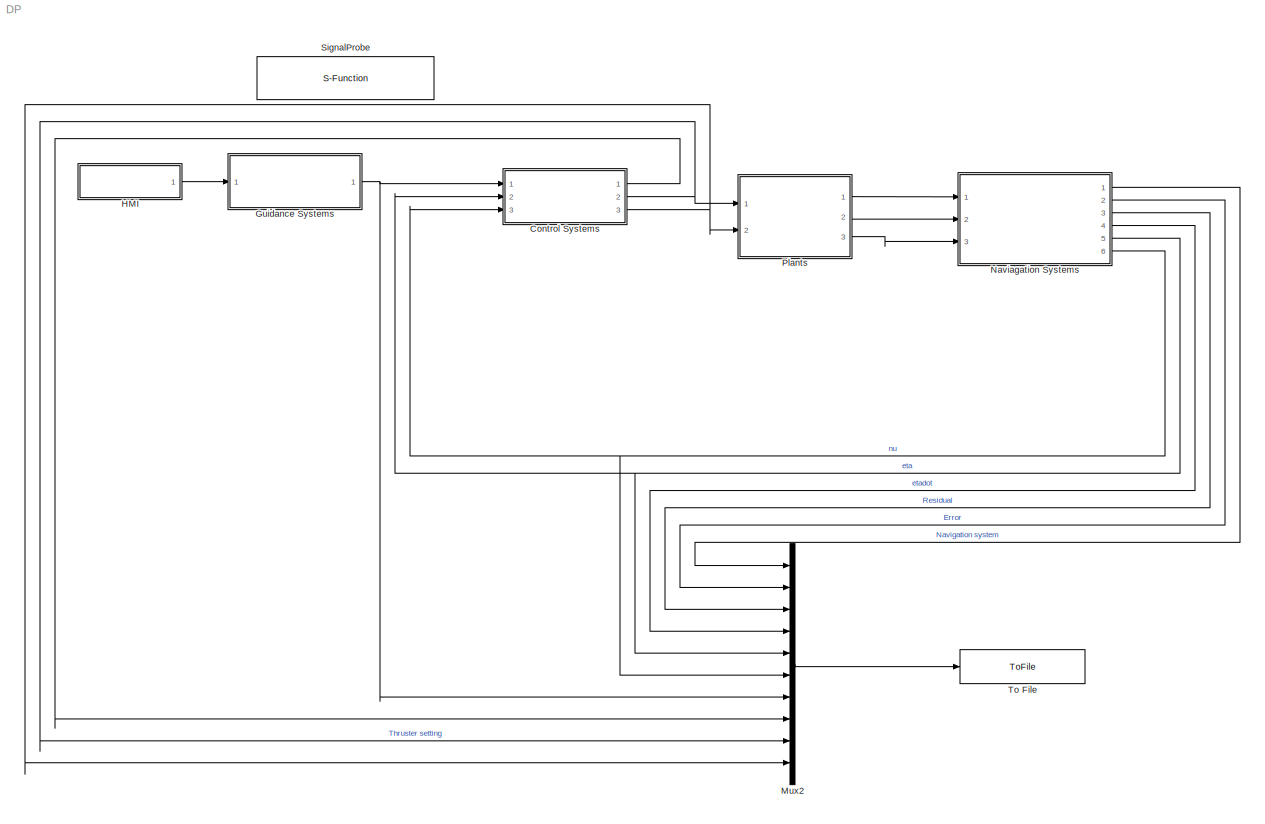
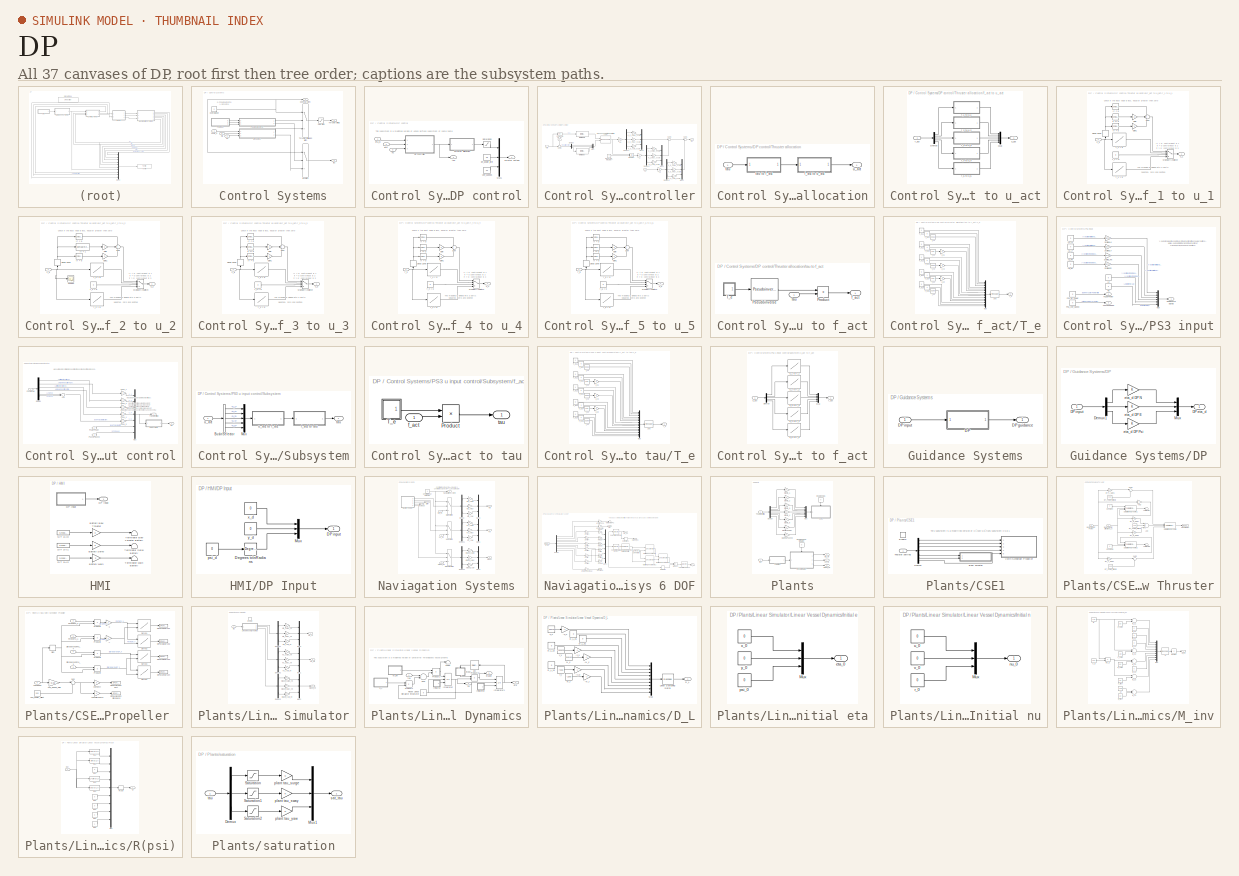
[diagram: thumbnail index - all 37 canvases of the model, root first then tree order]
MODEL DP
KIND model
BLOCK [SubSystem] Control Systems
  FunctionWithSeparateData = off
  MaskHideContents = off
  MinAlgLoopOccurrences = off
  Opaque = off
  Ports = [3, 3]
  PropExecContextOutsideSubsystem = off
  RTWSystemCode = Auto
  RequestExecContextInheritance = off
BLOCK [Constant] Control Systems/Control Mode
  Value = 0
BLOCK [Outport] Control Systems/Control system
  IconDisplay = Port number
BLOCK [SubSystem] Control Systems/DP control
  FunctionWithSeparateData = off
  MaskHideContents = off
  MinAlgLoopOccurrences = off
  Opaque = off
  Ports = [3, 2]
  PropExecContextOutsideSubsystem = off
  RTWSystemCode = Auto
  RequestExecContextInheritance = off
BLOCK [Constant] Control Systems/DP control/BT_power_limit
  Value = 0.5
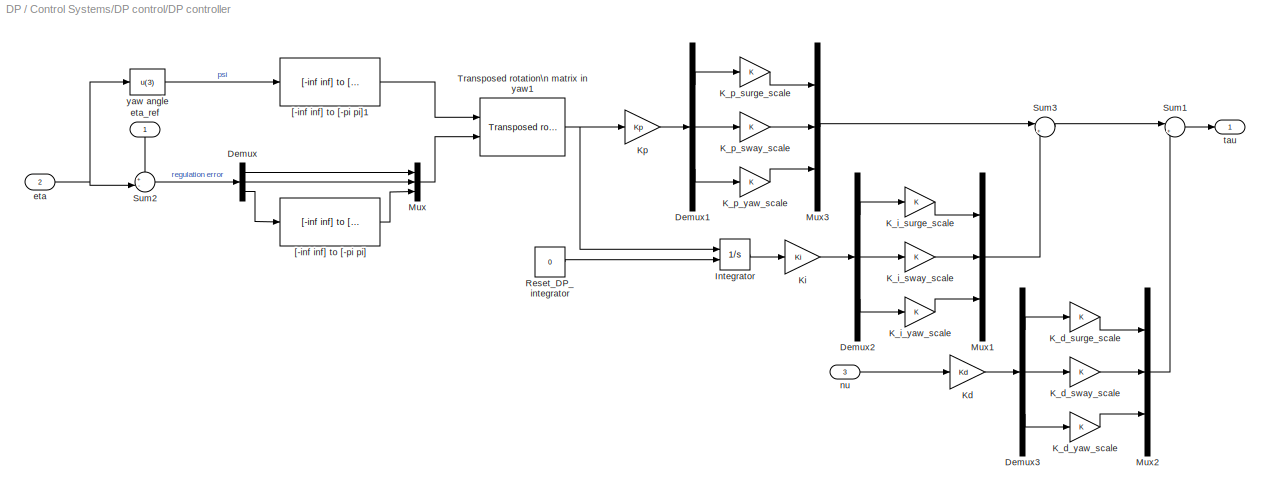
BLOCK [SubSystem] Control Systems/DP control/DP controller
  FunctionWithSeparateData = off
  MaskCallbackString = ||
  MaskDescription = Nonlinear PID controller for Set-Point Reulation in Surge, Sway and Yaw
  MaskDisplay = disp('Nonlinear PID\\n set-point controller')
  MaskEnableString = on,on,on
  MaskHelp = The nonlinear  PID controller uses the rotation matrix in yaw for proper scaling of the surge, sway and yaw gains as a function of the yaw angle. \nINPUTS: (1) eta_ref, (2) eta, (3) nu. OUPUTS: (1) tau.
  MaskHideContents = off
  MaskIconFrame = on
  MaskIconOpaque = off
  MaskIconRotate = none
  MaskIconUnits = autoscale
  MaskPortRotate = default
  MaskPromptString = Proportional Gain Matrix: Kp|Derivative Gain Matrix: Kd|Integral Gain Matrix: Ki
  MaskStyleString = edit,edit,edit
  MaskTabNameString = ,,
  MaskToolTipString = on,on,on
  MaskTunableValueString = on,on,on
  MaskType = Nonlinear DP Controller
  MaskValueString = (0.1)^2*[25.8000 0  0;  0  33.8000  1.0115;  0  1.0115  2.7600 ]|2*0.8*0.1*[25.8000 0  0;  0  33.8000  1.0115;  0  1.0115  2.7600 ]|(0.1^3/10)*[25.8000 0  0;  0  33.8000  1.0115;  0  1.0115  2.7600 ]
  MaskVarAliasString = ,,
  MaskVariables = Kp=@1;Kd=@2;Ki=@3;
  MaskVisibilityString = on,on,on
  MinAlgLoopOccurrences = off
  Opaque = off
  Ports = [3, 1]
  PropExecContextOutsideSubsystem = off
  RTWSystemCode = Auto
  RequestExecContextInheritance = off
BLOCK [Demux] Control Systems/DP control/DP controller/Demux
  DisplayOption = bar
  Outputs = 3
  Ports = [1, 3]
BLOCK [Demux] Control Systems/DP control/DP controller/Demux1
  DisplayOption = bar
  Outputs = 3
  Ports = [1, 3]
BLOCK [Demux] Control Systems/DP control/DP controller/Demux2
  DisplayOption = bar
  Outputs = 3
  Ports = [1, 3]
BLOCK [Demux] Control Systems/DP control/DP controller/Demux3
  DisplayOption = bar
  Outputs = 3
  Ports = [1, 3]
BLOCK [Integrator] Control Systems/DP control/DP controller/Integrator
  ExternalReset = level
  Ports = [2, 1]
BLOCK [Gain] Control Systems/DP control/DP controller/K_d_surge_scale
  OutDataType = fixdt(1, 16)
  OutDataTypeMode = Inherit via internal rule
  OutDataTypeStr = Inherit: Inherit via internal rule
  OutScaling = 2^0
  ParamDataTypeStr = Inherit: Inherit via internal rule
  ParameterDataType = fixdt(1, 16)
  ParameterDataTypeMode = Inherit via internal rule
  ParameterScaling = 2^0
  SaturateOnIntegerOverflow = off
BLOCK [Gain] Control Systems/DP control/DP controller/K_d_sway_scale
  OutDataType = fixdt(1, 16)
  OutDataTypeMode = Inherit via internal rule
  OutDataTypeStr = Inherit: Inherit via internal rule
  OutScaling = 2^0
  ParamDataTypeStr = Inherit: Inherit via internal rule
  ParameterDataType = fixdt(1, 16)
  ParameterDataTypeMode = Inherit via internal rule
  ParameterScaling = 2^0
  SaturateOnIntegerOverflow = off
BLOCK [Gain] Control Systems/DP control/DP controller/K_d_yaw_scale
  OutDataType = fixdt(1, 16)
  OutDataTypeMode = Inherit via internal rule
  OutDataTypeStr = Inherit: Inherit via internal rule
  OutScaling = 2^0
  ParamDataTypeStr = Inherit: Inherit via internal rule
  ParameterDataType = fixdt(1, 16)
  ParameterDataTypeMode = Inherit via internal rule
  ParameterScaling = 2^0
  SaturateOnIntegerOverflow = off
BLOCK [Gain] Control Systems/DP control/DP controller/K_i_surge_scale
  OutDataType = fixdt(1, 16)
  OutDataTypeMode = Inherit via internal rule
  OutDataTypeStr = Inherit: Inherit via internal rule
  OutScaling = 2^0
  ParamDataTypeStr = Inherit: Inherit via internal rule
  ParameterDataType = fixdt(1, 16)
  ParameterDataTypeMode = Inherit via internal rule
  ParameterScaling = 2^0
  SaturateOnIntegerOverflow = off
BLOCK [Gain] Control Systems/DP control/DP controller/K_i_sway_scale
  OutDataType = fixdt(1, 16)
  OutDataTypeMode = Inherit via internal rule
  OutDataTypeStr = Inherit: Inherit via internal rule
  OutScaling = 2^0
  ParamDataTypeStr = Inherit: Inherit via internal rule
  ParameterDataType = fixdt(1, 16)
  ParameterDataTypeMode = Inherit via internal rule
  ParameterScaling = 2^0
  SaturateOnIntegerOverflow = off
BLOCK [Gain] Control Systems/DP control/DP controller/K_i_yaw_scale
  OutDataType = fixdt(1, 16)
  OutDataTypeMode = Inherit via internal rule
  OutDataTypeStr = Inherit: Inherit via internal rule
  OutScaling = 2^0
  ParamDataTypeStr = Inherit: Inherit via internal rule
  ParameterDataType = fixdt(1, 16)
  ParameterDataTypeMode = Inherit via internal rule
  ParameterScaling = 2^0
  SaturateOnIntegerOverflow = off
BLOCK [Gain] Control Systems/DP control/DP controller/K_p_surge_scale
  OutDataType = fixdt(1, 16)
  OutDataTypeMode = Inherit via internal rule
  OutDataTypeStr = Inherit: Inherit via internal rule
  OutScaling = 2^0
  ParamDataTypeStr = Inherit: Inherit via internal rule
  ParameterDataType = fixdt(1, 16)
  ParameterDataTypeMode = Inherit via internal rule
  ParameterScaling = 2^0
  SaturateOnIntegerOverflow = off
BLOCK [Gain] Control Systems/DP control/DP controller/K_p_sway_scale
  OutDataType = fixdt(1, 16)
  OutDataTypeMode = Inherit via internal rule
  OutDataTypeStr = Inherit: Inherit via internal rule
  OutScaling = 2^0
  ParamDataTypeStr = Inherit: Inherit via internal rule
  ParameterDataType = fixdt(1, 16)
  ParameterDataTypeMode = Inherit via internal rule
  ParameterScaling = 2^0
  SaturateOnIntegerOverflow = off
BLOCK [Gain] Control Systems/DP control/DP controller/K_p_yaw_scale
  OutDataType = fixdt(1, 16)
  OutDataTypeMode = Inherit via internal rule
  OutDataTypeStr = Inherit: Inherit via internal rule
  OutScaling = 2^0
  ParamDataTypeStr = Inherit: Inherit via internal rule
  ParameterDataType = fixdt(1, 16)
  ParameterDataTypeMode = Inherit via internal rule
  ParameterScaling = 2^0
  SaturateOnIntegerOverflow = off
BLOCK [Gain] Control Systems/DP control/DP controller/Kd
  Gain = Kd
  Multiplication = Matrix(K*u)
BLOCK [Gain] Control Systems/DP control/DP controller/Ki
  Gain = Ki
  Multiplication = Matrix(K*u)
BLOCK [Gain] Control Systems/DP control/DP controller/Kp
  Gain = Kp
  Multiplication = Matrix(K*u)
BLOCK [Mux] Control Systems/DP control/DP controller/Mux
  DisplayOption = bar
  Inputs = 3
  Ports = [3, 1]
BLOCK [Mux] Control Systems/DP control/DP controller/Mux1
  DisplayOption = bar
  Inputs = 3
  Ports = [3, 1]
BLOCK [Mux] Control Systems/DP control/DP controller/Mux2
  DisplayOption = bar
  Inputs = 3
  Ports = [3, 1]
BLOCK [Mux] Control Systems/DP control/DP controller/Mux3
  DisplayOption = bar
  Inputs = 3
  Ports = [3, 1]
BLOCK [Constant] Control Systems/DP control/DP controller/Reset_DP_integrator
  Value = 0
BLOCK [Sum] Control Systems/DP control/DP controller/Sum1
  IconShape = round
  Inputs = |+-
  Ports = [2, 1]
BLOCK [Sum] Control Systems/DP control/DP controller/Sum2
  IconShape = round
  Inputs = +-|
  Ports = [2, 1]
BLOCK [Sum] Control Systems/DP control/DP controller/Sum3
  IconShape = round
  Inputs = |++
  Ports = [2, 1]
BLOCK [Reference] Control Systems/DP control/DP controller/Transposed rotation\n matrix in yaw1  REF=marine_gnc/Models/ Kinematics/Transposed rotation\n matrix in yaw  (lib defined in mdl_10d96c221ba8, mdl_45f1105420c6)
  FunctionWithSeparateData = off
  Ports = [2, 1]
  RTWMemSecDataConstants = Inherit from model
  RTWMemSecDataInternal = Inherit from model
  RTWMemSecDataParameters = Inherit from model
  RTWMemSecFuncExecute = Inherit from model
  RTWMemSecFuncInitTerm = Inherit from model
  ShowPortLabels = FromPortIcon
  SourceBlock = marine_gnc/Models/ Kinematics/Transposed rotation\n matrix in yaw
  SystemSampleTime = -1
BLOCK [Reference] Control Systems/DP control/DP controller/[-inf inf] to [-pi pi]  REF=marine_gnc/Utilities/Math Operations/[-inf inf] to [-pi pi]  (lib defined in mdl_10d96c221ba8, mdl_45f1105420c6)
  FunctionWithSeparateData = off
  Ports = [1, 1]
  RTWMemSecDataConstants = Inherit from model
  RTWMemSecDataInternal = Inherit from model
  RTWMemSecDataParameters = Inherit from model
  RTWMemSecFuncExecute = Inherit from model
  RTWMemSecFuncInitTerm = Inherit from model
  ShowPortLabels = FromPortIcon
  SourceBlock = marine_gnc/Utilities/Math Operations/[-inf inf] to [-pi pi]
  SourceType = [-inf inf] to [-pi pi]
  SystemSampleTime = -1
BLOCK [Reference] Control Systems/DP control/DP controller/[-inf inf] to [-pi pi]1  REF=marine_gnc/Utilities/Math Operations/[-inf inf] to [-pi pi]  (lib defined in mdl_10d96c221ba8, mdl_45f1105420c6)
  FunctionWithSeparateData = off
  Ports = [1, 1]
  RTWMemSecDataConstants = Inherit from model
  RTWMemSecDataInternal = Inherit from model
  RTWMemSecDataParameters = Inherit from model
  RTWMemSecFuncExecute = Inherit from model
  RTWMemSecFuncInitTerm = Inherit from model
  ShowPortLabels = FromPortIcon
  SourceBlock = marine_gnc/Utilities/Math Operations/[-inf inf] to [-pi pi]
  SourceType = [-inf inf] to [-pi pi]
  SystemSampleTime = -1
BLOCK [Inport] Control Systems/DP control/DP controller/eta
  IconDisplay = Port number
  Port = 2
BLOCK [Inport] Control Systems/DP control/DP controller/eta_ref
  IconDisplay = Port number
BLOCK [Inport] Control Systems/DP control/DP controller/nu
  IconDisplay = Port number
  Port = 3
BLOCK [Outport] Control Systems/DP control/DP controller/tau
  IconDisplay = Port number
  InitialOutput = 0
BLOCK [Fcn] Control Systems/DP control/DP controller/yaw angle
  Expr = u(3)
BLOCK [Mux] Control Systems/DP control/Mux1
  DisplayOption = bar
  Inputs = 3
  Ports = [3, 1]
BLOCK [Saturate] Control Systems/DP control/Saturation
  LowerLimit = -1.0
  UpperLimit = 1.0
BLOCK [SubSystem] Control Systems/DP control/Thruster allocation
  FunctionWithSeparateData = off
  MaskHideContents = off
  MinAlgLoopOccurrences = off
  Opaque = off
  Ports = [1, 1]
  PropExecContextOutsideSubsystem = off
  RTWSystemCode = Auto
  RequestExecContextInheritance = off
BLOCK [SubSystem] Control Systems/DP control/Thruster allocation/f_act to u_act
  FunctionWithSeparateData = off
  MaskHideContents = off
  MinAlgLoopOccurrences = off
  Opaque = off
  Ports = [1, 1]
  PropExecContextOutsideSubsystem = off
  RTWSystemCode = Auto
  RequestExecContextInheritance = off
BLOCK [Demux] Control Systems/DP control/Thruster allocation/f_act to u_act/Demux
  DisplayOption = bar
  Outputs = 5
  Ports = [1, 5]
BLOCK [Mux] Control Systems/DP control/Thruster allocation/f_act to u_act/Mux
  DisplayOption = bar
  Inputs = 5
  Ports = [5, 1]
BLOCK [SubSystem] Control Systems/DP control/Thruster allocation/f_act to u_act/f_1 to u_1
  FunctionWithSeparateData = off
  MaskHideContents = off
  MinAlgLoopOccurrences = off
  Opaque = off
  Ports = [1, 1]
  PropExecContextOutsideSubsystem = off
  RTWSystemCode = Auto
  RequestExecContextInheritance = off
BLOCK [DeadZone] Control Systems/DP control/Thruster allocation/f_act to u_act/f_1 to u_1/Dead Zone
  LowerValue = -0.001
  UpperValue = 0.001
BLOCK [Gain] Control Systems/DP control/Thruster allocation/f_act to u_act/f_1 to u_1/Gain
  Gain = 2
  OutDataType = fixdt(1, 16)
  OutDataTypeMode = Inherit via internal rule
  OutDataTypeStr = Inherit: Inherit via internal rule
  OutScaling = 2^0
  ParamDataTypeStr = Inherit: Inherit via internal rule
  ParameterDataType = fixdt(1, 16)
  ParameterDataTypeMode = Inherit via internal rule
  ParameterScaling = 2^0
  SaturateOnIntegerOverflow = off
BLOCK [Gain] Control Systems/DP control/Thruster allocation/f_act to u_act/f_1 to u_1/Gain1
  Gain = 3
  OutDataType = fixdt(1, 16)
  OutDataTypeMode = Inherit via internal rule
  OutDataTypeStr = Inherit: Inherit via internal rule
  OutScaling = 2^0
  ParamDataTypeStr = Inherit: Inherit via internal rule
  ParameterDataType = fixdt(1, 16)
  ParameterDataTypeMode = Inherit via internal rule
  ParameterScaling = 2^0
  SaturateOnIntegerOverflow = off
BLOCK [Reference] Control Systems/DP control/Thruster allocation/f_act to u_act/f_1 to u_1/If < 0  REF=simulink/Logic and Bit\nOperations/Compare\nTo Constant
  FunctionWithSeparateData = off
  LogicOutDataTypeMode = uint8
  Ports = [1, 1]
  RTWMemSecDataConstants = Inherit from model
  RTWMemSecDataInternal = Inherit from model
  RTWMemSecDataParameters = Inherit from model
  RTWMemSecFuncExecute = Inherit from model
  RTWMemSecFuncInitTerm = Inherit from model
  ShowPortLabels = FromPortIcon
  SourceBlock = simulink/Logic and Bit\nOperations/Compare\nTo Constant
  SourceType = Compare To Constant
  SystemSampleTime = -1
  ZeroCross = on
  const = 0
  relop = <
BLOCK [Reference] Control Systems/DP control/Thruster allocation/f_act to u_act/f_1 to u_1/If > 0  REF=simulink/Logic and Bit\nOperations/Compare\nTo Constant
  FunctionWithSeparateData = off
  LogicOutDataTypeMode = uint8
  Ports = [1, 1]
  RTWMemSecDataConstants = Inherit from model
  RTWMemSecDataInternal = Inherit from model
  RTWMemSecDataParameters = Inherit from model
  RTWMemSecFuncExecute = Inherit from model
  RTWMemSecFuncInitTerm = Inherit from model
  ShowPortLabels = FromPortIcon
  SourceBlock = simulink/Logic and Bit\nOperations/Compare\nTo Constant
  SourceType = Compare To Constant
  SystemSampleTime = -1
  ZeroCross = on
  const = 0
  relop = >
BLOCK [MultiPortSwitch] Control Systems/DP control/Thruster allocation/f_act to u_act/f_1 to u_1/Multiport\nSwitch
  InputSameDT = off
  OutDataType = fixdt(1, 16)
  OutScaling = 2^0
  Ports = [4, 1]
  SaturateOnIntegerOverflow = off
BLOCK [Sum] Control Systems/DP control/Thruster allocation/f_act to u_act/f_1 to u_1/Sum
  IconShape = round
  InputSameDT = off
  Inputs = +++
  OutDataType = fixdt(1, 16)
  OutDataTypeMode = Inherit via internal rule
  OutDataTypeStr = Inherit: Inherit via internal rule
  OutScaling = 2^0
  Ports = [3, 1]
  SaturateOnIntegerOverflow = off
BLOCK [Inport] Control Systems/DP control/Thruster allocation/f_act to u_act/f_1 to u_1/f_1
  IconDisplay = Port number
BLOCK [Lookup] Control Systems/DP control/Thruster allocation/f_act to u_act/f_1 to u_1/f_1 < 0
  InputValues = [-1.324\n-1.169\n-0.919\n-0.703\n-0.535\n-0.292\n-0.165\n-0.060\n0]
  LookUpMeth = Interpolation-Use End Values
  OutDataType = fixdt(1, 16)
  OutScaling = 2^0
  SaturateOnIntegerOverflow = off
  Table = [-1.0000\n   -0.9000\n   -0.8000\n   -0.7000\n   -0.6000\n   -0.5000\n   -0.4000\n   -0.3000\n   -0.2089]
BLOCK [Constant] Control Systems/DP control/Thruster allocation/f_act to u_act/f_1 to u_1/f_1 = 0
  OutDataType = fixdt(1, 16)
  OutScaling = 2^0
  Value = 0
BLOCK [Lookup] Control Systems/DP control/Thruster allocation/f_act to u_act/f_1 to u_1/f_1 > 0
  InputValues = [0\n    0.0510\n    0.1530\n    0.3080\n    0.4800\n    0.6630\n    0.9110\n    1.0570\n    1.2210\n    1.3740]
  LookUpMeth = Interpolation-Use End Values
  OutDataType = fixdt(1, 16)
  OutScaling = 2^0
  SaturateOnIntegerOverflow = off
  Table = [0.0500\n    0.1000\n    0.2000\n    0.3000\n    0.4000\n    0.5000\n    0.6000\n    0.7000\n    0.8000\n    0.9000]
BLOCK [Reference] Control Systems/DP control/Thruster allocation/f_act to u_act/f_1 to u_1/if == 0  REF=simulink/Logic and Bit\nOperations/Compare\nTo Zero
  FunctionWithSeparateData = off
  LogicOutDataTypeMode = uint8
  Ports = [1, 1]
  RTWMemSecDataConstants = Inherit from model
  RTWMemSecDataInternal = Inherit from model
  RTWMemSecDataParameters = Inherit from model
  RTWMemSecFuncExecute = Inherit from model
  RTWMemSecFuncInitTerm = Inherit from model
  ShowPortLabels = FromPortIcon
  SourceBlock = simulink/Logic and Bit\nOperations/Compare\nTo Zero
  SourceType = Compare To Zero
  SystemSampleTime = -1
  ZeroCross = on
  relop = ==
BLOCK [Outport] Control Systems/DP control/Thruster allocation/f_act to u_act/f_1 to u_1/u_1
  IconDisplay = Port number
BLOCK [SubSystem] Control Systems/DP control/Thruster allocation/f_act to u_act/f_2 to u_2
  FunctionWithSeparateData = off
  MaskHideContents = off
  MinAlgLoopOccurrences = off
  Opaque = off
  Ports = [1, 1]
  PropExecContextOutsideSubsystem = off
  RTWSystemCode = Auto
  RequestExecContextInheritance = off
BLOCK [DeadZone] Control Systems/DP control/Thruster allocation/f_act to u_act/f_2 to u_2/Dead Zone
  LowerValue = -0.001
  UpperValue = 0.001
BLOCK [Gain] Control Systems/DP control/Thruster allocation/f_act to u_act/f_2 to u_2/Gain
  Gain = 2
  OutDataType = fixdt(1, 16)
  OutDataTypeMode = Inherit via internal rule
  OutDataTypeStr = Inherit: Inherit via internal rule
  OutScaling = 2^0
  ParamDataTypeStr = Inherit: Inherit via internal rule
  ParameterDataType = fixdt(1, 16)
  ParameterDataTypeMode = Inherit via internal rule
  ParameterScaling = 2^0
  SaturateOnIntegerOverflow = off
BLOCK [Gain] Control Systems/DP control/Thruster allocation/f_act to u_act/f_2 to u_2/Gain1
  Gain = 3
  OutDataType = fixdt(1, 16)
  OutDataTypeMode = Inherit via internal rule
  OutDataTypeStr = Inherit: Inherit via internal rule
  OutScaling = 2^0
  ParamDataTypeStr = Inherit: Inherit via internal rule
  ParameterDataType = fixdt(1, 16)
  ParameterDataTypeMode = Inherit via internal rule
  ParameterScaling = 2^0
  SaturateOnIntegerOverflow = off
BLOCK [Reference] Control Systems/DP control/Thruster allocation/f_act to u_act/f_2 to u_2/If < 0  REF=simulink/Logic and Bit\nOperations/Compare\nTo Constant
  FunctionWithSeparateData = off
  LogicOutDataTypeMode = uint8
  Ports = [1, 1]
  RTWMemSecDataConstants = Inherit from model
  RTWMemSecDataInternal = Inherit from model
  RTWMemSecDataParameters = Inherit from model
  RTWMemSecFuncExecute = Inherit from model
  RTWMemSecFuncInitTerm = Inherit from model
  ShowPortLabels = FromPortIcon
  SourceBlock = simulink/Logic and Bit\nOperations/Compare\nTo Constant
  SourceType = Compare To Constant
  SystemSampleTime = -1
  ZeroCross = on
  const = 0
  relop = <
BLOCK [Reference] Control Systems/DP control/Thruster allocation/f_act to u_act/f_2 to u_2/If < 1  REF=simulink/Logic and Bit\nOperations/Compare\nTo Constant
  FunctionWithSeparateData = off
  LogicOutDataTypeMode = uint8
  Ports = [1, 1]
  RTWMemSecDataConstants = Inherit from model
  RTWMemSecDataInternal = Inherit from model
  RTWMemSecDataParameters = Inherit from model
  RTWMemSecFuncExecute = Inherit from model
  RTWMemSecFuncInitTerm = Inherit from model
  ShowPortLabels = FromPortIcon
  SourceBlock = simulink/Logic and Bit\nOperations/Compare\nTo Constant
  SourceType = Compare To Constant
  SystemSampleTime = -1
  ZeroCross = on
  const = 0
  relop = ==
BLOCK [Reference] Control Systems/DP control/Thruster allocation/f_act to u_act/f_2 to u_2/If > 0  REF=simulink/Logic and Bit\nOperations/Compare\nTo Constant
  FunctionWithSeparateData = off
  LogicOutDataTypeMode = uint8
  Ports = [1, 1]
  RTWMemSecDataConstants = Inherit from model
  RTWMemSecDataInternal = Inherit from model
  RTWMemSecDataParameters = Inherit from model
  RTWMemSecFuncExecute = Inherit from model
  RTWMemSecFuncInitTerm = Inherit from model
  ShowPortLabels = FromPortIcon
  SourceBlock = simulink/Logic and Bit\nOperations/Compare\nTo Constant
  SourceType = Compare To Constant
  SystemSampleTime = -1
  ZeroCross = on
  const = 0
  relop = >
BLOCK [MultiPortSwitch] Control Systems/DP control/Thruster allocation/f_act to u_act/f_2 to u_2/Multiport\nSwitch
  InputSameDT = off
  OutDataType = fixdt(1, 16)
  OutScaling = 2^0
  Ports = [4, 1]
  SaturateOnIntegerOverflow = off
BLOCK [Scope] Control Systems/DP control/Thruster allocation/f_act to u_act/f_2 to u_2/Scope2
  DataFormat = StructureWithTime
  Floating = off
  NumInputPorts = 1
  Ports = [1]
  SampleTime = 0
  SaveName = ScopeData7
BLOCK [Sum] Control Systems/DP control/Thruster allocation/f_act to u_act/f_2 to u_2/Sum
  IconShape = round
  InputSameDT = off
  Inputs = +++
  OutDataType = fixdt(1, 16)
  OutDataTypeMode = Inherit via internal rule
  OutDataTypeStr = Inherit: Inherit via internal rule
  OutScaling = 2^0
  Ports = [3, 1]
  SaturateOnIntegerOverflow = off
BLOCK [Inport] Control Systems/DP control/Thruster allocation/f_act to u_act/f_2 to u_2/f_2
  IconDisplay = Port number
BLOCK [Lookup] Control Systems/DP control/Thruster allocation/f_act to u_act/f_2 to u_2/f_2 < 0
  InputValues = [-0.766\n-0.649\n-0.522\n-0.411\n-0.323\n-0.246\n-0.156\n-0.075\n-0.018\n-0.006\n0]
  LookUpMeth = Interpolation-Use End Values
  OutDataType = fixdt(1, 16)
  OutScaling = 2^0
  SaturateOnIntegerOverflow = off
  Table = [-1.0000\n   -0.9000\n   -0.8000\n   -0.7000\n   -0.6000\n   -0.5000\n   -0.4000\n   -0.3000\n   -0.2000\n   -0.1000\n   -0.0466]
BLOCK [Constant] Control Systems/DP control/Thruster allocation/f_act to u_act/f_2 to u_2/f_2 = 0
  OutDataType = fixdt(1, 16)
  OutScaling = 2^0
  Value = 0
BLOCK [Lookup] Control Systems/DP control/Thruster allocation/f_act to u_act/f_2 to u_2/f_2 > 0
  InputValues = [0.000\n0.052\n0.207\n0.331\n0.509\n0.689\n0.829\n0.961\n1.079\n1.120\n]
  LookUpMeth = Interpolation-Use End Values
  OutDataType = fixdt(1, 16)
  OutScaling = 2^0
  SaturateOnIntegerOverflow = off
  Table = [0.1665\n    0.2000\n    0.3000\n    0.4000\n    0.5000\n    0.6000\n    0.7000\n    0.8000\n    0.9000\n    1.0000]
BLOCK [Outport] Control Systems/DP control/Thruster allocation/f_act to u_act/f_2 to u_2/u_2
  IconDisplay = Port number
BLOCK [SubSystem] Control Systems/DP control/Thruster allocation/f_act to u_act/f_3 to u_3
  FunctionWithSeparateData = off
  MaskHideContents = off
  MinAlgLoopOccurrences = off
  Opaque = off
  Ports = [1, 1]
  PropExecContextOutsideSubsystem = off
  RTWSystemCode = Auto
  RequestExecContextInheritance = off
BLOCK [DeadZone] Control Systems/DP control/Thruster allocation/f_act to u_act/f_3 to u_3/Dead Zone
  LowerValue = -0.001
  UpperValue = 0.001
BLOCK [Gain] Control Systems/DP control/Thruster allocation/f_act to u_act/f_3 to u_3/Gain
  Gain = 2
  OutDataType = fixdt(1, 16)
  OutDataTypeMode = Inherit via internal rule
  OutDataTypeStr = Inherit: Inherit via internal rule
  OutScaling = 2^0
  ParamDataTypeStr = Inherit: Inherit via internal rule
  ParameterDataType = fixdt(1, 16)
  ParameterDataTypeMode = Inherit via internal rule
  ParameterScaling = 2^0
  SaturateOnIntegerOverflow = off
BLOCK [Gain] Control Systems/DP control/Thruster allocation/f_act to u_act/f_3 to u_3/Gain1
  Gain = 3
  OutDataType = fixdt(1, 16)
  OutDataTypeMode = Inherit via internal rule
  OutDataTypeStr = Inherit: Inherit via internal rule
  OutScaling = 2^0
  ParamDataTypeStr = Inherit: Inherit via internal rule
  ParameterDataType = fixdt(1, 16)
  ParameterDataTypeMode = Inherit via internal rule
  ParameterScaling = 2^0
  SaturateOnIntegerOverflow = off
BLOCK [Reference] Control Systems/DP control/Thruster allocation/f_act to u_act/f_3 to u_3/If < 0  REF=simulink/Logic and Bit\nOperations/Compare\nTo Constant
  FunctionWithSeparateData = off
  LogicOutDataTypeMode = uint8
  Ports = [1, 1]
  RTWMemSecDataConstants = Inherit from model
  RTWMemSecDataInternal = Inherit from model
  RTWMemSecDataParameters = Inherit from model
  RTWMemSecFuncExecute = Inherit from model
  RTWMemSecFuncInitTerm = Inherit from model
  ShowPortLabels = FromPortIcon
  SourceBlock = simulink/Logic and Bit\nOperations/Compare\nTo Constant
  SourceType = Compare To Constant
  SystemSampleTime = -1
  ZeroCross = on
  const = 0
  relop = <
BLOCK [Reference] Control Systems/DP control/Thruster allocation/f_act to u_act/f_3 to u_3/If > 0  REF=simulink/Logic and Bit\nOperations/Compare\nTo Constant
  FunctionWithSeparateData = off
  LogicOutDataTypeMode = uint8
  Ports = [1, 1]
  RTWMemSecDataConstants = Inherit from model
  RTWMemSecDataInternal = Inherit from model
  RTWMemSecDataParameters = Inherit from model
  RTWMemSecFuncExecute = Inherit from model
  RTWMemSecFuncInitTerm = Inherit from model
  ShowPortLabels = FromPortIcon
  SourceBlock = simulink/Logic and Bit\nOperations/Compare\nTo Constant
  SourceType = Compare To Constant
  SystemSampleTime = -1
  ZeroCross = on
  const = 0
  relop = >
BLOCK [MultiPortSwitch] Control Systems/DP control/Thruster allocation/f_act to u_act/f_3 to u_3/Multiport\nSwitch
  InputSameDT = off
  OutDataType = fixdt(1, 16)
  OutScaling = 2^0
  Ports = [4, 1]
  SaturateOnIntegerOverflow = off
BLOCK [Sum] Control Systems/DP control/Thruster allocation/f_act to u_act/f_3 to u_3/Sum
  IconShape = round
  InputSameDT = off
  Inputs = +++
  OutDataType = fixdt(1, 16)
  OutDataTypeMode = Inherit via internal rule
  OutDataTypeStr = Inherit: Inherit via internal rule
  OutScaling = 2^0
  Ports = [3, 1]
  SaturateOnIntegerOverflow = off
BLOCK [Inport] Control Systems/DP control/Thruster allocation/f_act to u_act/f_3 to u_3/f_3
  IconDisplay = Port number
BLOCK [Lookup] Control Systems/DP control/Thruster allocation/f_act to u_act/f_3 to u_3/f_3 < 0
  InputValues = [-1.291\n-1.088\n-0.885\n-0.618\n-0.403\n-0.211\n-0.034\n0.000]
  LookUpMeth = Interpolation-Use End Values
  OutDataType = fixdt(1, 16)
  OutScaling = 2^0
  SaturateOnIntegerOverflow = off
  Table = [-0.9000\n   -0.8000\n   -0.7000\n   -0.6000\n   -0.5000\n   -0.4000\n   -0.3000\n   -0.2809]
BLOCK [Constant] Control Systems/DP control/Thruster allocation/f_act to u_act/f_3 to u_3/f_3 = 0
  OutDataType = fixdt(1, 16)
  OutScaling = 2^0
  Value = 0
BLOCK [Lookup] Control Systems/DP control/Thruster allocation/f_act to u_act/f_3 to u_3/f_3 > 0
  InputValues = [0.000\n0.014\n0.040\n0.147\n0.302\n0.494\n0.680\n0.968\n1.111\n1.289\n1.339]
  LookUpMeth = Interpolation-Use End Values
  OutDataType = fixdt(1, 16)
  OutScaling = 2^0
  SaturateOnIntegerOverflow = off
  Table = [0.0452\n    0.1000\n    0.2000\n    0.3000\n    0.4000\n    0.5000\n    0.6000\n    0.7000\n    0.8000\n    0.9000\n    1.0000\n]
BLOCK [Reference] Control Systems/DP control/Thruster allocation/f_act to u_act/f_3 to u_3/if == 0  REF=simulink/Logic and Bit\nOperations/Compare\nTo Zero
  FunctionWithSeparateData = off
  LogicOutDataTypeMode = uint8
  Ports = [1, 1]
  RTWMemSecDataConstants = Inherit from model
  RTWMemSecDataInternal = Inherit from model
  RTWMemSecDataParameters = Inherit from model
  RTWMemSecFuncExecute = Inherit from model
  RTWMemSecFuncInitTerm = Inherit from model
  ShowPortLabels = FromPortIcon
  SourceBlock = simulink/Logic and Bit\nOperations/Compare\nTo Zero
  SourceType = Compare To Zero
  SystemSampleTime = -1
  ZeroCross = on
  relop = ==
BLOCK [Outport] Control Systems/DP control/Thruster allocation/f_act to u_act/f_3 to u_3/u_3
  IconDisplay = Port number
BLOCK [SubSystem] Control Systems/DP control/Thruster allocation/f_act to u_act/f_4 to u_4
  FunctionWithSeparateData = off
  MaskHideContents = off
  MinAlgLoopOccurrences = off
  Opaque = off
  Ports = [1, 1]
  PropExecContextOutsideSubsystem = off
  RTWSystemCode = Auto
  RequestExecContextInheritance = off
BLOCK [DeadZone] Control Systems/DP control/Thruster allocation/f_act to u_act/f_4 to u_4/Dead Zone
  LowerValue = -0.001
  UpperValue = 0.001
BLOCK [Gain] Control Systems/DP control/Thruster allocation/f_act to u_act/f_4 to u_4/Gain
  Gain = 2
  OutDataType = fixdt(1, 16)
  OutDataTypeMode = Inherit via internal rule
  OutDataTypeStr = Inherit: Inherit via internal rule
  OutScaling = 2^0
  ParamDataTypeStr = Inherit: Inherit via internal rule
  ParameterDataType = fixdt(1, 16)
  ParameterDataTypeMode = Inherit via internal rule
  ParameterScaling = 2^0
  SaturateOnIntegerOverflow = off
BLOCK [Gain] Control Systems/DP control/Thruster allocation/f_act to u_act/f_4 to u_4/Gain1
  Gain = 3
  OutDataType = fixdt(1, 16)
  OutDataTypeMode = Inherit via internal rule
  OutDataTypeStr = Inherit: Inherit via internal rule
  OutScaling = 2^0
  ParamDataTypeStr = Inherit: Inherit via internal rule
  ParameterDataType = fixdt(1, 16)
  ParameterDataTypeMode = Inherit via internal rule
  ParameterScaling = 2^0
  SaturateOnIntegerOverflow = off
BLOCK [Reference] Control Systems/DP control/Thruster allocation/f_act to u_act/f_4 to u_4/If < 0  REF=simulink/Logic and Bit\nOperations/Compare\nTo Constant
  FunctionWithSeparateData = off
  LogicOutDataTypeMode = uint8
  Ports = [1, 1]
  RTWMemSecDataConstants = Inherit from model
  RTWMemSecDataInternal = Inherit from model
  RTWMemSecDataParameters = Inherit from model
  RTWMemSecFuncExecute = Inherit from model
  RTWMemSecFuncInitTerm = Inherit from model
  ShowPortLabels = FromPortIcon
  SourceBlock = simulink/Logic and Bit\nOperations/Compare\nTo Constant
  SourceType = Compare To Constant
  SystemSampleTime = -1
  ZeroCross = on
  const = 0
  relop = <
BLOCK [Reference] Control Systems/DP control/Thruster allocation/f_act to u_act/f_4 to u_4/If > 0  REF=simulink/Logic and Bit\nOperations/Compare\nTo Constant
  FunctionWithSeparateData = off
  LogicOutDataTypeMode = uint8
  Ports = [1, 1]
  RTWMemSecDataConstants = Inherit from model
  RTWMemSecDataInternal = Inherit from model
  RTWMemSecDataParameters = Inherit from model
  RTWMemSecFuncExecute = Inherit from model
  RTWMemSecFuncInitTerm = Inherit from model
  ShowPortLabels = FromPortIcon
  SourceBlock = simulink/Logic and Bit\nOperations/Compare\nTo Constant
  SourceType = Compare To Constant
  SystemSampleTime = -1
  ZeroCross = on
  const = 0
  relop = >
BLOCK [MultiPortSwitch] Control Systems/DP control/Thruster allocation/f_act to u_act/f_4 to u_4/Multiport\nSwitch
  InputSameDT = off
  OutDataType = fixdt(1, 16)
  OutScaling = 2^0
  Ports = [4, 1]
  SaturateOnIntegerOverflow = off
BLOCK [Sum] Control Systems/DP control/Thruster allocation/f_act to u_act/f_4 to u_4/Sum
  IconShape = round
  InputSameDT = off
  Inputs = +++
  OutDataType = fixdt(1, 16)
  OutDataTypeMode = Inherit via internal rule
  OutDataTypeStr = Inherit: Inherit via internal rule
  OutScaling = 2^0
  Ports = [3, 1]
  SaturateOnIntegerOverflow = off
BLOCK [Inport] Control Systems/DP control/Thruster allocation/f_act to u_act/f_4 to u_4/f_4
  IconDisplay = Port number
BLOCK [Lookup] Control Systems/DP control/Thruster allocation/f_act to u_act/f_4 to u_4/f_4 < 0
  InputValues = [-1.249\n-1.225\n-1.094\n-0.896\n-0.696\n-0.502\n-0.314\n-0.169\n-0.042\n0.000]
  LookUpMeth = Interpolation-Use End Values
  OutDataType = fixdt(1, 16)
  OutScaling = 2^0
  SaturateOnIntegerOverflow = off
  Table = [-0.9000\n   -0.8000\n   -0.7000\n   -0.6000\n   -0.5000\n   -0.4000\n   -0.3000\n   -0.2000\n   -0.1000\n   -0.0674]
BLOCK [Constant] Control Systems/DP control/Thruster allocation/f_act to u_act/f_4 to u_4/f_4 = 0
  OutDataType = fixdt(1, 16)
  OutScaling = 2^0
  Value = 0
BLOCK [Lookup] Control Systems/DP control/Thruster allocation/f_act to u_act/f_4 to u_4/f_4 > 0
  InputValues = [0.000\n0.063\n0.107\n0.274\n0.441\n0.599\n0.731]
  LookUpMeth = Interpolation-Use End Values
  OutDataType = fixdt(1, 16)
  OutScaling = 2^0
  SaturateOnIntegerOverflow = off
  Table = [0.3588\n    0.5000\n    0.6000\n    0.7000\n    0.8000\n    0.9000\n    1.0000]
BLOCK [Reference] Control Systems/DP control/Thruster allocation/f_act to u_act/f_4 to u_4/if == 0  REF=simulink/Logic and Bit\nOperations/Compare\nTo Zero
  FunctionWithSeparateData = off
  LogicOutDataTypeMode = uint8
  Ports = [1, 1]
  RTWMemSecDataConstants = Inherit from model
  RTWMemSecDataInternal = Inherit from model
  RTWMemSecDataParameters = Inherit from model
  RTWMemSecFuncExecute = Inherit from model
  RTWMemSecFuncInitTerm = Inherit from model
  ShowPortLabels = FromPortIcon
  SourceBlock = simulink/Logic and Bit\nOperations/Compare\nTo Zero
  SourceType = Compare To Zero
  SystemSampleTime = -1
  ZeroCross = on
  relop = ==
BLOCK [Outport] Control Systems/DP control/Thruster allocation/f_act to u_act/f_4 to u_4/u_4
  IconDisplay = Port number
BLOCK [SubSystem] Control Systems/DP control/Thruster allocation/f_act to u_act/f_5 to u_5
  FunctionWithSeparateData = off
  MaskHideContents = off
  MinAlgLoopOccurrences = off
  Opaque = off
  Ports = [1, 1]
  PropExecContextOutsideSubsystem = off
  RTWSystemCode = Auto
  RequestExecContextInheritance = off
BLOCK [DeadZone] Control Systems/DP control/Thruster allocation/f_act to u_act/f_5 to u_5/Dead Zone
  LowerValue = -0.001
  UpperValue = 0.001
BLOCK [Gain] Control Systems/DP control/Thruster allocation/f_act to u_act/f_5 to u_5/Gain
  Gain = 2
  OutDataType = fixdt(1, 16)
  OutDataTypeMode = Inherit via internal rule
  OutDataTypeStr = Inherit: Inherit via internal rule
  OutScaling = 2^0
  ParamDataTypeStr = Inherit: Inherit via internal rule
  ParameterDataType = fixdt(1, 16)
  ParameterDataTypeMode = Inherit via internal rule
  ParameterScaling = 2^0
  SaturateOnIntegerOverflow = off
BLOCK [Gain] Control Systems/DP control/Thruster allocation/f_act to u_act/f_5 to u_5/Gain1
  Gain = 3
  OutDataType = fixdt(1, 16)
  OutDataTypeMode = Inherit via internal rule
  OutDataTypeStr = Inherit: Inherit via internal rule
  OutScaling = 2^0
  ParamDataTypeStr = Inherit: Inherit via internal rule
  ParameterDataType = fixdt(1, 16)
  ParameterDataTypeMode = Inherit via internal rule
  ParameterScaling = 2^0
  SaturateOnIntegerOverflow = off
BLOCK [Reference] Control Systems/DP control/Thruster allocation/f_act to u_act/f_5 to u_5/If < 0  REF=simulink/Logic and Bit\nOperations/Compare\nTo Constant
  FunctionWithSeparateData = off
  LogicOutDataTypeMode = uint8
  Ports = [1, 1]
  RTWMemSecDataConstants = Inherit from model
  RTWMemSecDataInternal = Inherit from model
  RTWMemSecDataParameters = Inherit from model
  RTWMemSecFuncExecute = Inherit from model
  RTWMemSecFuncInitTerm = Inherit from model
  ShowPortLabels = FromPortIcon
  SourceBlock = simulink/Logic and Bit\nOperations/Compare\nTo Constant
  SourceType = Compare To Constant
  SystemSampleTime = -1
  ZeroCross = on
  const = 0
  relop = <
BLOCK [Reference] Control Systems/DP control/Thruster allocation/f_act to u_act/f_5 to u_5/If > 0  REF=simulink/Logic and Bit\nOperations/Compare\nTo Constant
  FunctionWithSeparateData = off
  LogicOutDataTypeMode = uint8
  Ports = [1, 1]
  RTWMemSecDataConstants = Inherit from model
  RTWMemSecDataInternal = Inherit from model
  RTWMemSecDataParameters = Inherit from model
  RTWMemSecFuncExecute = Inherit from model
  RTWMemSecFuncInitTerm = Inherit from model
  ShowPortLabels = FromPortIcon
  SourceBlock = simulink/Logic and Bit\nOperations/Compare\nTo Constant
  SourceType = Compare To Constant
  SystemSampleTime = -1
  ZeroCross = on
  const = 0
  relop = >
BLOCK [MultiPortSwitch] Control Systems/DP control/Thruster allocation/f_act to u_act/f_5 to u_5/Multiport\nSwitch
  InputSameDT = off
  OutDataType = fixdt(1, 16)
  OutScaling = 2^0
  Ports = [4, 1]
  SaturateOnIntegerOverflow = off
BLOCK [Sum] Control Systems/DP control/Thruster allocation/f_act to u_act/f_5 to u_5/Sum
  IconShape = round
  InputSameDT = off
  Inputs = +++
  OutDataType = fixdt(1, 16)
  OutDataTypeMode = Inherit via internal rule
  OutDataTypeStr = Inherit: Inherit via internal rule
  OutScaling = 2^0
  Ports = [3, 1]
  SaturateOnIntegerOverflow = off
BLOCK [Inport] Control Systems/DP control/Thruster allocation/f_act to u_act/f_5 to u_5/f_5
  IconDisplay = Port number
BLOCK [Lookup] Control Systems/DP control/Thruster allocation/f_act to u_act/f_5 to u_5/f_5 < 0
  InputValues = [-1.2630\n   -1.0309\n   -0.3808]
  LookUpMeth = Interpolation-Use End Values
  OutDataType = fixdt(1, 16)
  OutScaling = 2^0
  SaturateOnIntegerOverflow = off
  Table = [-0.3000\n   -0.2000\n   -0.1000]
BLOCK [Constant] Control Systems/DP control/Thruster allocation/f_act to u_act/f_5 to u_5/f_5 = 0
  OutDataType = fixdt(1, 16)
  OutScaling = 2^0
  Value = 0
BLOCK [Lookup] Control Systems/DP control/Thruster allocation/f_act to u_act/f_5 to u_5/f_5 > 0
  InputValues = [0.3480\n    0.8290\n    1.0930]
  LookUpMeth = Interpolation-Use End Values
  OutDataType = fixdt(1, 16)
  OutScaling = 2^0
  SaturateOnIntegerOverflow = off
  Table = [0.1000\n    0.2000\n    0.3000]
BLOCK [Reference] Control Systems/DP control/Thruster allocation/f_act to u_act/f_5 to u_5/if == 0  REF=simulink/Logic and Bit\nOperations/Compare\nTo Zero
  FunctionWithSeparateData = off
  LogicOutDataTypeMode = uint8
  Ports = [1, 1]
  RTWMemSecDataConstants = Inherit from model
  RTWMemSecDataInternal = Inherit from model
  RTWMemSecDataParameters = Inherit from model
  RTWMemSecFuncExecute = Inherit from model
  RTWMemSecFuncInitTerm = Inherit from model
  ShowPortLabels = FromPortIcon
  SourceBlock = simulink/Logic and Bit\nOperations/Compare\nTo Zero
  SourceType = Compare To Zero
  SystemSampleTime = -1
  ZeroCross = on
  relop = ==
BLOCK [Outport] Control Systems/DP control/Thruster allocation/f_act to u_act/f_5 to u_5/u_5
  IconDisplay = Port number
BLOCK [Inport] Control Systems/DP control/Thruster allocation/f_act to u_act/f_act
  IconDisplay = Port number
BLOCK [Outport] Control Systems/DP control/Thruster allocation/f_act to u_act/u_act
  IconDisplay = Port number
BLOCK [Inport] Control Systems/DP control/Thruster allocation/tau
  IconDisplay = Port number
BLOCK [SubSystem] Control Systems/DP control/Thruster allocation/tau to f_act
  FunctionWithSeparateData = off
  MaskHideContents = off
  MinAlgLoopOccurrences = off
  Opaque = off
  Ports = [1, 1]
  PropExecContextOutsideSubsystem = off
  RTWSystemCode = Auto
  RequestExecContextInheritance = off
BLOCK [Product] Control Systems/DP control/Thruster allocation/tau to f_act/Product
  InputSameDT = off
  Multiplication = Matrix(*)
  OutDataType = fixdt(1, 16)
  OutDataTypeMode = Inherit via internal rule
  OutDataTypeStr = Inherit: Inherit via internal rule
  OutScaling = 2^0
  Ports = [2, 1]
  SaturateOnIntegerOverflow = off
BLOCK [Reference] Control Systems/DP control/Thruster allocation/tau to f_act/Pseudoinverse  REF=dspinverses/Pseudoinverse
  Ports = [1, 1]
  SourceBlock = dspinverses/Pseudoinverse
  SourceType = Pseudoinverse
  wanterr = off
BLOCK [SubSystem] Control Systems/DP control/Thruster allocation/tau to f_act/T_e
  FunctionWithSeparateData = off
  MaskHideContents = off
  MinAlgLoopOccurrences = off
  Opaque = off
  Ports = [0, 1]
  PropExecContextOutsideSubsystem = off
  RTWSystemCode = Auto
  RequestExecContextInheritance = off
BLOCK [Gain] Control Systems/DP control/Thruster allocation/tau to f_act/T_e/-l_x1
  Gain = -1
  OutDataTypeMode = Inherit via internal rule
  OutDataTypeStr = Inherit: Inherit via internal rule
  ParamDataTypeStr = Inherit: Inherit via internal rule
  ParameterDataTypeMode = Inherit via internal rule
  SaturateOnIntegerOverflow = off
BLOCK [Gain] Control Systems/DP control/Thruster allocation/tau to f_act/T_e/-l_x2
  Gain = -1
  OutDataTypeMode = Inherit via internal rule
  OutDataTypeStr = Inherit: Inherit via internal rule
  ParamDataTypeStr = Inherit: Inherit via internal rule
  ParameterDataTypeMode = Inherit via internal rule
  SaturateOnIntegerOverflow = off
BLOCK [Gain] Control Systems/DP control/Thruster allocation/tau to f_act/T_e/-l_y2
  Gain = -1
  OutDataTypeMode = Inherit via internal rule
  OutDataTypeStr = Inherit: Inherit via internal rule
  ParamDataTypeStr = Inherit: Inherit via internal rule
  ParameterDataTypeMode = Inherit via internal rule
  SaturateOnIntegerOverflow = off
BLOCK [Reshape] Control Systems/DP control/Thruster allocation/tau to f_act/T_e/3x5
  OutputDimensionality = Customize
  OutputDimensions = [3,5]
  Ports = [1, 1]
BLOCK [Mux] Control Systems/DP control/Thruster allocation/tau to f_act/T_e/Mux
  DisplayOption = bar
  Inputs = 15
  Ports = [15, 1]
BLOCK [Outport] Control Systems/DP control/Thruster allocation/tau to f_act/T_e/T_e
  IconDisplay = Port number
BLOCK [Constant] Control Systems/DP control/Thruster allocation/tau to f_act/T_e/T_e11
BLOCK [Constant] Control Systems/DP control/Thruster allocation/tau to f_act/T_e/T_e12
  Value = 0
BLOCK [Constant] Control Systems/DP control/Thruster allocation/tau to f_act/T_e/T_e13
BLOCK [Constant] Control Systems/DP control/Thruster allocation/tau to f_act/T_e/T_e14
  Value = 0
BLOCK [Constant] Control Systems/DP control/Thruster allocation/tau to f_act/T_e/T_e15
  Value = 0
BLOCK [Constant] Control Systems/DP control/Thruster allocation/tau to f_act/T_e/T_e21
  Value = 0
BLOCK [Constant] Control Systems/DP control/Thruster allocation/tau to f_act/T_e/T_e22
BLOCK [Constant] Control Systems/DP control/Thruster allocation/tau to f_act/T_e/T_e23
  Value = 0
BLOCK [Constant] Control Systems/DP control/Thruster allocation/tau to f_act/T_e/T_e24
BLOCK [Constant] Control Systems/DP control/Thruster allocation/tau to f_act/T_e/T_e25
BLOCK [Constant] Control Systems/DP control/Thruster allocation/tau to f_act/T_e/l_x1
  Value = 0.45
BLOCK [Constant] Control Systems/DP control/Thruster allocation/tau to f_act/T_e/l_x2
  Value = 0.45
BLOCK [Constant] Control Systems/DP control/Thruster allocation/tau to f_act/T_e/l_x3
  Value = 0.385
BLOCK [Constant] Control Systems/DP control/Thruster allocation/tau to f_act/T_e/l_y1
  Value = 0.055
BLOCK [Constant] Control Systems/DP control/Thruster allocation/tau to f_act/T_e/l_y2
  Value = 0.055
BLOCK [Outport] Control Systems/DP control/Thruster allocation/tau to f_act/f_act
  IconDisplay = Port number
BLOCK [Inport] Control Systems/DP control/Thruster allocation/tau to f_act/tau
  IconDisplay = Port number
BLOCK [Outport] Control Systems/DP control/Thruster allocation/u_act
  IconDisplay = Port number
BLOCK [Outport] Control Systems/DP control/Thruster setting
  IconDisplay = Port number
  InitialOutput = [0;0;0;0;0;0;0]
BLOCK [Constant] Control Systems/DP control/VSP_speeds
  Value = 0.4
BLOCK [Inport] Control Systems/DP control/eta
  IconDisplay = Port number
  Port = 2
BLOCK [Inport] Control Systems/DP control/eta_d
  IconDisplay = Port number
BLOCK [Inport] Control Systems/DP control/nu
  IconDisplay = Port number
  Port = 3
BLOCK [Outport] Control Systems/DP control/tau
  IconDisplay = Port number
  Port = 2
BLOCK [Inport] Control Systems/DP eta_d
  IconDisplay = Port number
BLOCK [SubSystem] Control Systems/PS3 input
  FunctionWithSeparateData = off
  MaskHideContents = off
  MinAlgLoopOccurrences = off
  Opaque = off
  Ports = [0, 3]
  PropExecContextOutsideSubsystem = off
  RTWSystemCode = Auto
  RequestExecContextInheritance = off
BLOCK [Constant] Control Systems/PS3 input/AS_LX
  Value = 0
BLOCK [Constant] Control Systems/PS3 input/AS_LY
  Value = 0
BLOCK [Constant] Control Systems/PS3 input/AS_RX
  Value = 0
BLOCK [Constant] Control Systems/PS3 input/AS_RY
  Value = 0
BLOCK [Outport] Control Systems/PS3 input/DuelShock 3 signals
  IconDisplay = Port number
BLOCK [Constant] Control Systems/PS3 input/L2
  Value = 0
BLOCK [Mux] Control Systems/PS3 input/Mux
  DisplayOption = bar
  Inputs = 6
  Ports = [6, 1]
BLOCK [Outport] Control Systems/PS3 input/PS3 BT Power
  IconDisplay = Port number
  Port = 2
BLOCK [Outport] Control Systems/PS3 input/PS3 VSP Speed
  IconDisplay = Port number
  Port = 3
BLOCK [Constant] Control Systems/PS3 input/PS3_BT_Power
  Value = 0
BLOCK [Constant] Control Systems/PS3 input/PS3_VSP_Speed
  Value = 0
BLOCK [Constant] Control Systems/PS3 input/R2
  Value = 0
BLOCK [Gain] Control Systems/PS3 input/ScalingLX
  Gain = 1/32767
  OutDataTypeMode = Inherit via internal rule
  OutDataTypeStr = Inherit: Inherit via internal rule
  ParamDataTypeStr = Inherit: Inherit via internal rule
  ParameterDataTypeMode = Inherit via internal rule
  SaturateOnIntegerOverflow = off
BLOCK [Gain] Control Systems/PS3 input/ScalingLY
  Gain = 1/32767
  OutDataTypeMode = Inherit via internal rule
  OutDataTypeStr = Inherit: Inherit via internal rule
  ParamDataTypeStr = Inherit: Inherit via internal rule
  ParameterDataTypeMode = Inherit via internal rule
  SaturateOnIntegerOverflow = off
BLOCK [Gain] Control Systems/PS3 input/ScalingRY
  Gain = 1/32767
  OutDataTypeMode = Inherit via internal rule
  OutDataTypeStr = Inherit: Inherit via internal rule
  ParamDataTypeStr = Inherit: Inherit via internal rule
  ParameterDataTypeMode = Inherit via internal rule
  SaturateOnIntegerOverflow = off
BLOCK [Gain] Control Systems/PS3 input/Scaling_RX
  Gain = 1/32767
  OutDataTypeMode = Inherit via internal rule
  OutDataTypeStr = Inherit: Inherit via internal rule
  ParamDataTypeStr = Inherit: Inherit via internal rule
  ParameterDataTypeMode = Inherit via internal rule
  SaturateOnIntegerOverflow = off
BLOCK [SubSystem] Control Systems/PS3 u input control
  FunctionWithSeparateData = off
  MaskHideContents = off
  MinAlgLoopOccurrences = on
  Opaque = off
  Ports = [3, 2]
  PropExecContextOutsideSubsystem = off
  RTWSystemCode = Auto
  RequestExecContextInheritance = off
BLOCK [Sum] Control Systems/PS3 u input control/Add
  IconShape = round
  InputSameDT = off
  Inputs = |++
  OutDataTypeMode = Inherit via internal rule
  OutDataTypeStr = Inherit: Inherit via internal rule
  Ports = [2, 1]
  SaturateOnIntegerOverflow = off
BLOCK [Demux] Control Systems/PS3 u input control/Demux
  DisplayOption = bar
  Outputs = 6
  Ports = [1, 6]
BLOCK [Mux] Control Systems/PS3 u input control/Mux
  DisplayOption = bar
  Inputs = 7
  Ports = [7, 1]
BLOCK [Inport] Control Systems/PS3 u input control/PS3 BT Power
  IconDisplay = Port number
  Port = 2
BLOCK [Inport] Control Systems/PS3 u input control/PS3 Signals
  IconDisplay = Port number
BLOCK [Inport] Control Systems/PS3 u input control/PS3 VSP Speed
  IconDisplay = Port number
  Port = 3
BLOCK [Gain] Control Systems/PS3 u input control/PS3 u_1
  OutDataType = fixdt(1, 16)
  OutDataTypeMode = Inherit via internal rule
  OutDataTypeStr = Inherit: Inherit via internal rule
  OutScaling = 2^0
  ParamDataTypeStr = Inherit: Inherit via internal rule
  ParameterDataType = fixdt(1, 16)
  ParameterDataTypeMode = Inherit via internal rule
  ParameterScaling = 2^0
  SaturateOnIntegerOverflow = off
BLOCK [Gain] Control Systems/PS3 u input control/PS3 u_2
  OutDataType = fixdt(1, 16)
  OutDataTypeMode = Inherit via internal rule
  OutDataTypeStr = Inherit: Inherit via internal rule
  OutScaling = 2^0
  ParamDataTypeStr = Inherit: Inherit via internal rule
  ParameterDataType = fixdt(1, 16)
  ParameterDataTypeMode = Inherit via internal rule
  ParameterScaling = 2^0
  SaturateOnIntegerOverflow = off
BLOCK [Gain] Control Systems/PS3 u input control/PS3 u_3
  OutDataType = fixdt(1, 16)
  OutDataTypeMode = Inherit via internal rule
  OutDataTypeStr = Inherit: Inherit via internal rule
  OutScaling = 2^0
  ParamDataTypeStr = Inherit: Inherit via internal rule
  ParameterDataType = fixdt(1, 16)
  ParameterDataTypeMode = Inherit via internal rule
  ParameterScaling = 2^0
  SaturateOnIntegerOverflow = off
BLOCK [Gain] Control Systems/PS3 u input control/PS3 u_4
  OutDataType = fixdt(1, 16)
  OutDataTypeMode = Inherit via internal rule
  OutDataTypeStr = Inherit: Inherit via internal rule
  OutScaling = 2^0
  ParamDataTypeStr = Inherit: Inherit via internal rule
  ParameterDataType = fixdt(1, 16)
  ParameterDataTypeMode = Inherit via internal rule
  ParameterScaling = 2^0
  SaturateOnIntegerOverflow = off
BLOCK [Gain] Control Systems/PS3 u input control/PS3 u_5
  OutDataType = fixdt(1, 16)
  OutDataTypeMode = Inherit via internal rule
  OutDataTypeStr = Inherit: Inherit via internal rule
  OutScaling = 2^0
  ParamDataTypeStr = Inherit: Inherit via internal rule
  ParameterDataType = fixdt(1, 16)
  ParameterDataTypeMode = Inherit via internal rule
  ParameterScaling = 2^0
  SaturateOnIntegerOverflow = off
BLOCK [SubSystem] Control Systems/PS3 u input control/Subsystem
  FunctionWithSeparateData = off
  MaskHideContents = off
  MinAlgLoopOccurrences = off
  Opaque = off
  Ports = [1, 1]
  PropExecContextOutsideSubsystem = off
  RTWSystemCode = Auto
  RequestExecContextInheritance = off
BLOCK [BusSelector] Control Systems/PS3 u input control/Subsystem/Bus\nSelector
  OutputSignals = u_1,u_2,u_3,u_4,u_5
  Ports = [1, 5]
BLOCK [Mux] Control Systems/PS3 u input control/Subsystem/Mux
  DisplayOption = bar
  Inputs = 5
  Ports = [5, 1]
BLOCK [SubSystem] Control Systems/PS3 u input control/Subsystem/f_act to tau
  FunctionWithSeparateData = off
  MaskHideContents = off
  MinAlgLoopOccurrences = off
  Opaque = off
  Ports = [1, 1]
  PropExecContextOutsideSubsystem = off
  RTWSystemCode = Auto
  RequestExecContextInheritance = off
BLOCK [Product] Control Systems/PS3 u input control/Subsystem/f_act to tau/Product
  InputSameDT = off
  Multiplication = Matrix(*)
  OutDataType = fixdt(1, 16)
  OutDataTypeMode = Inherit via internal rule
  OutDataTypeStr = Inherit: Inherit via internal rule
  OutScaling = 2^0
  Ports = [2, 1]
  SaturateOnIntegerOverflow = off
BLOCK [SubSystem] Control Systems/PS3 u input control/Subsystem/f_act to tau/T_e
  FunctionWithSeparateData = off
  MaskHideContents = off
  MinAlgLoopOccurrences = off
  Opaque = off
  Ports = [0, 1]
  PropExecContextOutsideSubsystem = off
  RTWSystemCode = Auto
  RequestExecContextInheritance = off
BLOCK [Gain] Control Systems/PS3 u input control/Subsystem/f_act to tau/T_e/-l_x1
  Gain = -1
  OutDataTypeMode = Inherit via internal rule
  OutDataTypeStr = Inherit: Inherit via internal rule
  ParamDataTypeStr = Inherit: Inherit via internal rule
  ParameterDataTypeMode = Inherit via internal rule
  SaturateOnIntegerOverflow = off
BLOCK [Gain] Control Systems/PS3 u input control/Subsystem/f_act to tau/T_e/-l_x2
  Gain = -1
  OutDataTypeMode = Inherit via internal rule
  OutDataTypeStr = Inherit: Inherit via internal rule
  ParamDataTypeStr = Inherit: Inherit via internal rule
  ParameterDataTypeMode = Inherit via internal rule
  SaturateOnIntegerOverflow = off
BLOCK [Gain] Control Systems/PS3 u input control/Subsystem/f_act to tau/T_e/-l_y2
  Gain = -1
  OutDataTypeMode = Inherit via internal rule
  OutDataTypeStr = Inherit: Inherit via internal rule
  ParamDataTypeStr = Inherit: Inherit via internal rule
  ParameterDataTypeMode = Inherit via internal rule
  SaturateOnIntegerOverflow = off
BLOCK [Reshape] Control Systems/PS3 u input control/Subsystem/f_act to tau/T_e/3x5
  OutputDimensionality = Customize
  OutputDimensions = [3,5]
  Ports = [1, 1]
BLOCK [Mux] Control Systems/PS3 u input control/Subsystem/f_act to tau/T_e/Mux
  DisplayOption = bar
  Inputs = 15
  Ports = [15, 1]
BLOCK [Outport] Control Systems/PS3 u input control/Subsystem/f_act to tau/T_e/T_e
  IconDisplay = Port number
BLOCK [Constant] Control Systems/PS3 u input control/Subsystem/f_act to tau/T_e/T_e11
BLOCK [Constant] Control Systems/PS3 u input control/Subsystem/f_act to tau/T_e/T_e12
  Value = 0
BLOCK [Constant] Control Systems/PS3 u input control/Subsystem/f_act to tau/T_e/T_e13
BLOCK [Constant] Control Systems/PS3 u input control/Subsystem/f_act to tau/T_e/T_e14
  Value = 0
BLOCK [Constant] Control Systems/PS3 u input control/Subsystem/f_act to tau/T_e/T_e15
  Value = 0
BLOCK [Constant] Control Systems/PS3 u input control/Subsystem/f_act to tau/T_e/T_e21
  Value = 0
BLOCK [Constant] Control Systems/PS3 u input control/Subsystem/f_act to tau/T_e/T_e22
BLOCK [Constant] Control Systems/PS3 u input control/Subsystem/f_act to tau/T_e/T_e23
  Value = 0
BLOCK [Constant] Control Systems/PS3 u input control/Subsystem/f_act to tau/T_e/T_e24
BLOCK [Constant] Control Systems/PS3 u input control/Subsystem/f_act to tau/T_e/T_e25
BLOCK [Constant] Control Systems/PS3 u input control/Subsystem/f_act to tau/T_e/l_x1
  Value = 0.45
BLOCK [Constant] Control Systems/PS3 u input control/Subsystem/f_act to tau/T_e/l_x2
  Value = 0.45
BLOCK [Constant] Control Systems/PS3 u input control/Subsystem/f_act to tau/T_e/l_x3
  Value = 0.385
BLOCK [Constant] Control Systems/PS3 u input control/Subsystem/f_act to tau/T_e/l_y1
  Value = 0.055
BLOCK [Constant] Control Systems/PS3 u input control/Subsystem/f_act to tau/T_e/l_y2
  Value = 0.055
BLOCK [Inport] Control Systems/PS3 u input control/Subsystem/f_act to tau/f_act
  IconDisplay = Port number
BLOCK [Outport] Control Systems/PS3 u input control/Subsystem/f_act to tau/tau
  IconDisplay = Port number
BLOCK [Outport] Control Systems/PS3 u input control/Subsystem/tau
  IconDisplay = Port number
BLOCK [Inport] Control Systems/PS3 u input control/Subsystem/u_act
  IconDisplay = Port number
  OutDataType = fixdt(1, 16)
  OutScaling = 2^0
BLOCK [SubSystem] Control Systems/PS3 u input control/Subsystem/u_act to f_act
  FunctionWithSeparateData = off
  MaskHideContents = off
  MinAlgLoopOccurrences = off
  Opaque = off
  Ports = [1, 1]
  PropExecContextOutsideSubsystem = off
  RTWSystemCode = Auto
  RequestExecContextInheritance = off
BLOCK [Demux] Control Systems/PS3 u input control/Subsystem/u_act to f_act/Demux
  DisplayOption = bar
  Outputs = 5
  Ports = [1, 5]
BLOCK [Mux] Control Systems/PS3 u input control/Subsystem/u_act to f_act/Mux
  DisplayOption = bar
  Inputs = 5
  Ports = [5, 1]
BLOCK [Outport] Control Systems/PS3 u input control/Subsystem/u_act to f_act/f_act
  IconDisplay = Port number
BLOCK [Lookup] Control Systems/PS3 u input control/Subsystem/u_act to f_act/u_1 to f_1
  InputValues = [-1.0000\n   -0.9000\n   -0.8000\n   -0.7000\n   -0.6000\n   -0.5000\n   -0.4000\n   -0.3000\n   -0.2089\n    0.0500\n    0.1000\n    0.2000\n    0.3000\n    0.4000\n    0.5000\n    0.6000\n    0.7000\n    0.8000\n    0.9000]
  LookUpMeth = Interpolation-Use End Values
  OutDataType = fixdt(1, 16)
  OutScaling = 2^0
  SaturateOnIntegerOverflow = off
  Table = [-1.324\n-1.169\n-0.919\n-0.703\n-0.535\n-0.292\n-0.165\n-0.060\n0.000\n0.000\n0.051\n0.153\n0.308\n0.480\n0.663\n0.911\n1.057\n1.221\n1.374]
BLOCK [Lookup] Control Systems/PS3 u input control/Subsystem/u_act to f_act/u_2 to f_2
  InputValues = [-1.0000\n   -0.9000\n   -0.8000\n   -0.7000\n   -0.6000\n   -0.5000\n   -0.4000\n   -0.3000\n   -0.2000\n   -0.1000\n   -0.0466\n    0.1665\n    0.2000\n    0.3000\n    0.4000\n    0.5000\n    0.6000\n    0.7000\n    0.8000\n    0.9000\n    1.0000]
  LookUpMeth = Interpolation-Use End Values
  OutDataType = fixdt(1, 16)
  OutScaling = 2^0
  SaturateOnIntegerOverflow = off
  Table = [-0.766\n-0.649\n-0.522\n-0.411\n-0.323\n-0.246\n-0.156\n-0.075\n-0.018\n-0.006\n0\n0\n0.052\n0.207\n0.331\n0.509\n0.689\n0.829\n0.961\n1.079\n1.120]
BLOCK [Lookup] Control Systems/PS3 u input control/Subsystem/u_act to f_act/u_3 to f_3
  InputValues = [-0.9000\n   -0.8000\n   -0.7000\n   -0.6000\n   -0.5000\n   -0.4000\n   -0.3000\n   -0.2809\n    0.0452\n    0.1000\n    0.2000\n    0.3000\n    0.4000\n    0.5000\n    0.6000\n    0.7000\n    0.8000\n    0.9000\n    1.0000]
  LookUpMeth = Interpolation-Use End Values
  OutDataType = fixdt(1, 16)
  OutScaling = 2^0
  SaturateOnIntegerOverflow = off
  Table = [-1.291\n-1.088\n-0.885\n-0.618\n-0.403\n-0.211\n-0.034\n0.000\n0.000\n0.014\n0.040\n0.147\n0.302\n0.494\n0.680\n0.968\n1.111\n1.289\n1.339]
BLOCK [Lookup] Control Systems/PS3 u input control/Subsystem/u_act to f_act/u_4 to f_4
  InputValues = [-0.9000\n   -0.8000\n   -0.7000\n   -0.6000\n   -0.5000\n   -0.4000\n   -0.3000\n   -0.2000\n   -0.1000\n   -0.0674\n    0.3588\n    0.5000\n    0.6000\n    0.7000\n    0.8000\n    0.9000\n    1.0000]
  LookUpMeth = Interpolation-Use End Values
  OutDataType = fixdt(1, 16)
  OutScaling = 2^0
  SaturateOnIntegerOverflow = off
  Table = [-1.249\n-1.225\n-1.094\n-0.896\n-0.696\n-0.502\n-0.314\n-0.169\n-0.042\n0.000\n0.000\n0.063\n0.107\n0.274\n0.441\n0.599\n0.731]
BLOCK [Lookup] Control Systems/PS3 u input control/Subsystem/u_act to f_act/u_5 to f_5
  InputValues = [-.3:0.1:.3]
  LookUpMeth = Interpolation-Use End Values
  OutDataType = fixdt(1, 16)
  OutScaling = 2^0
  SaturateOnIntegerOverflow = off
  Table = [-1.2630 -1.0309 -0.3808 0 0.3480  0.8290 1.0930]
BLOCK [Inport] Control Systems/PS3 u input control/Subsystem/u_act to f_act/u_act
  IconDisplay = Port number
BLOCK [Outport] Control Systems/PS3 u input control/Thruster setting
  IconDisplay = Port number
BLOCK [Outport] Control Systems/PS3 u input control/tau
  IconDisplay = Port number
  Port = 2
BLOCK [Saturate] Control Systems/Saturation
  LowerLimit = -1.0
  UpperLimit = 1.0
BLOCK [Outport] Control Systems/Thruster setting
  IconDisplay = Port number
  Port = 2
BLOCK [MultiPortSwitch] Control Systems/Thruster setting\nSwitch
  InputSameDT = off
  Inputs = 2
  Ports = [3, 1]
  SaturateOnIntegerOverflow = off
  zeroidx = on
BLOCK [Inport] Control Systems/eta
  IconDisplay = Port number
  Port = 2
BLOCK [Inport] Control Systems/nu
  IconDisplay = Port number
  Port = 3
BLOCK [Outport] Control Systems/tau
  IconDisplay = Port number
  Port = 3
BLOCK [MultiPortSwitch] Control Systems/tau Switch
  InputSameDT = off
  Inputs = 2
  Ports = [3, 1]
  SaturateOnIntegerOverflow = off
  zeroidx = on
BLOCK [SubSystem] Guidance Systems
  FunctionWithSeparateData = off
  MaskHideContents = off
  MinAlgLoopOccurrences = off
  Opaque = off
  Ports = [1, 1]
  PropExecContextOutsideSubsystem = off
  RTWSystemCode = Auto
  RequestExecContextInheritance = off
BLOCK [SubSystem] Guidance Systems/DP
  FunctionWithSeparateData = off
  MaskHideContents = off
  MinAlgLoopOccurrences = off
  Opaque = off
  Ports = [1, 1]
  PropExecContextOutsideSubsystem = off
  RTWSystemCode = Auto
  RequestExecContextInheritance = off
BLOCK [Outport] Guidance Systems/DP guidance
  IconDisplay = Port number
BLOCK [Inport] Guidance Systems/DP input
  IconDisplay = Port number
BLOCK [Outport] Guidance Systems/DP/DP eta_d
  IconDisplay = Port number
BLOCK [Inport] Guidance Systems/DP/DP input
  IconDisplay = Port number
BLOCK [Demux] Guidance Systems/DP/Demux1
  DisplayOption = bar
  Outputs = 3
  Ports = [1, 3]
BLOCK [Mux] Guidance Systems/DP/Mux
  DisplayOption = bar
  Inputs = 3
  Ports = [3, 1]
BLOCK [Gain] Guidance Systems/DP/eta_d DP E
  OutDataType = fixdt(1, 16)
  OutDataTypeMode = Inherit via internal rule
  OutDataTypeStr = Inherit: Inherit via internal rule
  OutScaling = 2^0
  ParamDataTypeStr = Inherit: Inherit via internal rule
  ParameterDataType = fixdt(1, 16)
  ParameterDataTypeMode = Inherit via internal rule
  ParameterScaling = 2^0
  SaturateOnIntegerOverflow = off
BLOCK [Gain] Guidance Systems/DP/eta_d DP N
  OutDataType = fixdt(1, 16)
  OutDataTypeMode = Inherit via internal rule
  OutDataTypeStr = Inherit: Inherit via internal rule
  OutScaling = 2^0
  ParamDataTypeStr = Inherit: Inherit via internal rule
  ParameterDataType = fixdt(1, 16)
  ParameterDataTypeMode = Inherit via internal rule
  ParameterScaling = 2^0
  SaturateOnIntegerOverflow = off
BLOCK [Gain] Guidance Systems/DP/eta_d DP Psi
  OutDataType = fixdt(1, 16)
  OutDataTypeMode = Inherit via internal rule
  OutDataTypeStr = Inherit: Inherit via internal rule
  OutScaling = 2^0
  ParamDataTypeStr = Inherit: Inherit via internal rule
  ParameterDataType = fixdt(1, 16)
  ParameterDataTypeMode = Inherit via internal rule
  ParameterScaling = 2^0
  SaturateOnIntegerOverflow = off
BLOCK [SubSystem] HMI
  FunctionWithSeparateData = off
  MaskHideContents = off
  MinAlgLoopOccurrences = off
  Opaque = off
  Ports = [0, 1]
  PropExecContextOutsideSubsystem = off
  RTWSystemCode = Auto
  RequestExecContextInheritance = off
BLOCK [Gain] HMI/Battery Bow Thruster
  OutDataType = fixdt(1, 16)
  OutDataTypeMode = Inherit via internal rule
  OutDataTypeStr = Inherit: Inherit via internal rule
  OutScaling = 2^0
  ParamDataTypeStr = Inherit: Inherit via internal rule
  ParameterDataType = fixdt(1, 16)
  ParameterDataTypeMode = Inherit via internal rule
  ParameterScaling = 2^0
  SaturateOnIntegerOverflow = off
BLOCK [Gain] HMI/Battery Main
  Gain = 2
  OutDataType = fixdt(1, 16)
  OutDataTypeMode = Inherit via internal rule
  OutDataTypeStr = Inherit: Inherit via internal rule
  OutScaling = 2^0
  ParamDataTypeStr = Inherit: Inherit via internal rule
  ParameterDataType = fixdt(1, 16)
  ParameterDataTypeMode = Inherit via internal rule
  ParameterScaling = 2^0
  SaturateOnIntegerOverflow = off
BLOCK [Gain] HMI/Battery Servo
  OutDataType = fixdt(1, 16)
  OutDataTypeMode = Inherit via internal rule
  OutDataTypeStr = Inherit: Inherit via internal rule
  OutScaling = 2^0
  ParamDataTypeStr = Inherit: Inherit via internal rule
  ParameterDataType = fixdt(1, 16)
  ParameterDataTypeMode = Inherit via internal rule
  ParameterScaling = 2^0
  SaturateOnIntegerOverflow = off
BLOCK [SubSystem] HMI/DP Input
  FunctionWithSeparateData = off
  MaskHideContents = off
  MinAlgLoopOccurrences = off
  Opaque = off
  Ports = [0, 1]
  PropExecContextOutsideSubsystem = off
  RTWSystemCode = Auto
  RequestExecContextInheritance = off
BLOCK [Outport] HMI/DP Input/DP input
  IconDisplay = Port number
BLOCK [Reference] HMI/DP Input/Degrees to\nRadians  REF=simulink_extras/Transformations/Degrees to\nRadians
  FunctionWithSeparateData = off
  Ports = [1, 1]
  RTWMemSecDataConstants = Inherit from model
  RTWMemSecDataInternal = Inherit from model
  RTWMemSecDataParameters = Inherit from model
  RTWMemSecFuncExecute = Inherit from model
  RTWMemSecFuncInitTerm = Inherit from model
  ShowPortLabels = FromPortIcon
  SourceBlock = simulink_extras/Transformations/Degrees to\nRadians
  SourceType = DegreesToRadians
  SystemSampleTime = -1
BLOCK [Mux] HMI/DP Input/Mux
  DisplayOption = bar
  Inputs = 3
  Ports = [3, 1]
BLOCK [Constant] HMI/DP Input/psi_d
  Value = 0
BLOCK [Constant] HMI/DP Input/x_d
  Value = 0
BLOCK [Constant] HMI/DP Input/y_d
  Value = 0
BLOCK [Outport] HMI/DP input
  IconDisplay = Port number
BLOCK [S-Function] HMI/SIT zAI0
  CopyFcn = NI_SIT_IO_callbacks(1);
  DeleteFcn = NI_SIT_IO_callbacks(2);
  EnableBusSupport = off
  FunctionName = NI_SIT_IO
  MaskCallbackString = NI_SIT_IO_callbacks(3);|||NI_SIT_IO_callbacks(4);||
  MaskDescription = Use this inport on any level of nested subsystems to allow the LabVIEW Simulation Interface Toolkit to map hardware to it.
  MaskDisplay = patch([-x x], [-y y], [.90980 .81960 .32156]);\nplot([0 -x x 0], [rad -y y rad]);\nfprintf('SIT%d', portnum);
  MaskEnableString = on,on,on,on,on,on
  MaskIconFrame = off
  MaskIconOpaque = on
  MaskIconRotate = none
  MaskIconUnits = autoscale
  MaskInitialization = NI_SIT_IO_init;
  MaskPortRotate = default
  MaskPromptString = Port number:|Port dimensions (-1 for dynamically sized):|Sample time (-1 for inherited):|Data type:|Signal type:|Block type:
  MaskStyleString = edit,edit,edit,popup(auto|double|single|int8|uint8|int16|uint16|int32|uint32|boolean),popup(auto|real|complex),edit
  MaskTabNameString = Parameters,Parameters,Parameters,Parameters,Parameters,Parameters
  MaskToolTipString = on,on,on,on,on,on
  MaskTunableValueString = off,off,off,off,off,off
  MaskType = SIT Inport
  MaskValueString = 1|-1|-1|auto|auto|1
  MaskVarAliasString = ,,,,,
  MaskVariables = portnum=@1;width=@2;stime=@3;dtype=@4;stype=@5;btype=@6;
  MaskVisibilityString = on,on,on,on,on,off
  Parameters = width dtype portnum stime stype btype
  Ports = [0, 1]
  Priority = 1
BLOCK [S-Function] HMI/SIT zAI1
  CopyFcn = NI_SIT_IO_callbacks(1);
  DeleteFcn = NI_SIT_IO_callbacks(2);
  EnableBusSupport = off
  FunctionName = NI_SIT_IO
  MaskCallbackString = NI_SIT_IO_callbacks(3);|||NI_SIT_IO_callbacks(4);||
  MaskDescription = Use this inport on any level of nested subsystems to allow the LabVIEW Simulation Interface Toolkit to map hardware to it.
  MaskDisplay = patch([-x x], [-y y], [.90980 .81960 .32156]);\nplot([0 -x x 0], [rad -y y rad]);\nfprintf('SIT%d', portnum);
  MaskEnableString = on,on,on,on,on,on
  MaskIconFrame = off
  MaskIconOpaque = on
  MaskIconRotate = none
  MaskIconUnits = autoscale
  MaskInitialization = NI_SIT_IO_init;
  MaskPortRotate = default
  MaskPromptString = Port number:|Port dimensions (-1 for dynamically sized):|Sample time (-1 for inherited):|Data type:|Signal type:|Block type:
  MaskStyleString = edit,edit,edit,popup(auto|double|single|int8|uint8|int16|uint16|int32|uint32|boolean),popup(auto|real|complex),edit
  MaskTabNameString = Parameters,Parameters,Parameters,Parameters,Parameters,Parameters
  MaskToolTipString = on,on,on,on,on,on
  MaskTunableValueString = off,off,off,off,off,off
  MaskType = SIT Inport
  MaskValueString = 2|-1|-1|auto|auto|1
  MaskVarAliasString = ,,,,,
  MaskVariables = portnum=@1;width=@2;stime=@3;dtype=@4;stype=@5;btype=@6;
  MaskVisibilityString = on,on,on,on,on,off
  Parameters = width dtype portnum stime stype btype
  Ports = [0, 1]
  Priority = 2
BLOCK [S-Function] HMI/SIT zAI2
  CopyFcn = NI_SIT_IO_callbacks(1);
  DeleteFcn = NI_SIT_IO_callbacks(2);
  EnableBusSupport = off
  FunctionName = NI_SIT_IO
  MaskCallbackString = NI_SIT_IO_callbacks(3);|||NI_SIT_IO_callbacks(4);||
  MaskDescription = Use this inport on any level of nested subsystems to allow the LabVIEW Simulation Interface Toolkit to map hardware to it.
  MaskDisplay = patch([-x x], [-y y], [.90980 .81960 .32156]);\nplot([0 -x x 0], [rad -y y rad]);\nfprintf('SIT%d', portnum);
  MaskEnableString = on,on,on,on,on,on
  MaskIconFrame = off
  MaskIconOpaque = on
  MaskIconRotate = none
  MaskIconUnits = autoscale
  MaskInitialization = NI_SIT_IO_init;
  MaskPortRotate = default
  MaskPromptString = Port number:|Port dimensions (-1 for dynamically sized):|Sample time (-1 for inherited):|Data type:|Signal type:|Block type:
  MaskStyleString = edit,edit,edit,popup(auto|double|single|int8|uint8|int16|uint16|int32|uint32|boolean),popup(auto|real|complex),edit
  MaskTabNameString = Parameters,Parameters,Parameters,Parameters,Parameters,Parameters
  MaskToolTipString = on,on,on,on,on,on
  MaskTunableValueString = off,off,off,off,off,off
  MaskType = SIT Inport
  MaskValueString = 3|-1|-1|auto|auto|1
  MaskVarAliasString = ,,,,,
  MaskVariables = portnum=@1;width=@2;stime=@3;dtype=@4;stype=@5;btype=@6;
  MaskVisibilityString = on,on,on,on,on,off
  Parameters = width dtype portnum stime stype btype
  Ports = [0, 1]
  Priority = 3
BLOCK [Terminator] HMI/Terminator Bow Thruster Battery
BLOCK [Terminator] HMI/Terminator Main Battery
BLOCK [Terminator] HMI/Terminator Servo Battery
BLOCK [Mux] Mux2
  DisplayOption = bar
  Inputs = 10
  Ports = [10, 1]
BLOCK [SubSystem] Naviagation Systems
  FunctionWithSeparateData = off
  MaskHideContents = off
  MinAlgLoopOccurrences = on
  Opaque = off
  Ports = [3, 6]
  PropExecContextOutsideSubsystem = off
  RTWSystemCode = Auto
  RequestExecContextInheritance = off
BLOCK [Constant] Naviagation Systems/Controller Input Selector
  Value = 0
BLOCK [Demux] Naviagation Systems/Demux
  DisplayOption = bar
  Outputs = 3
  Ports = [1, 3]
BLOCK [Demux] Naviagation Systems/Demux1
  DisplayOption = bar
  Outputs = 3
  Ports = [1, 3]
BLOCK [Demux] Naviagation Systems/Demux2
  DisplayOption = bar
  Outputs = 3
  Ports = [1, 3]
BLOCK [Outport] Naviagation Systems/Error
  IconDisplay = Port number
  Port = 2
BLOCK [MultiPortSwitch] Naviagation Systems/Eta\nSwitch
  InputSameDT = off
  Inputs = 2
  Ports = [3, 1]
  SaturateOnIntegerOverflow = off
  zeroidx = on
BLOCK [MultiPortSwitch] Naviagation Systems/Etadot\nSwitch
  InputSameDT = off
  Inputs = 2
  Ports = [3, 1]
  SaturateOnIntegerOverflow = off
  zeroidx = on
BLOCK [Mux] Naviagation Systems/Mux1
  DisplayOption = bar
  Inputs = 3
  Ports = [3, 1]
BLOCK [Mux] Naviagation Systems/Mux2
  DisplayOption = bar
  Inputs = 3
  Ports = [3, 1]
BLOCK [Mux] Naviagation Systems/Mux3
  DisplayOption = bar
  Inputs = 3
  Ports = [3, 1]
BLOCK [Outport] Naviagation Systems/Navigation system
  IconDisplay = Port number
BLOCK [MultiPortSwitch] Naviagation Systems/Nu\nSwitch
  InputSameDT = off
  Inputs = 2
  Ports = [3, 1]
  SaturateOnIntegerOverflow = off
  zeroidx = on
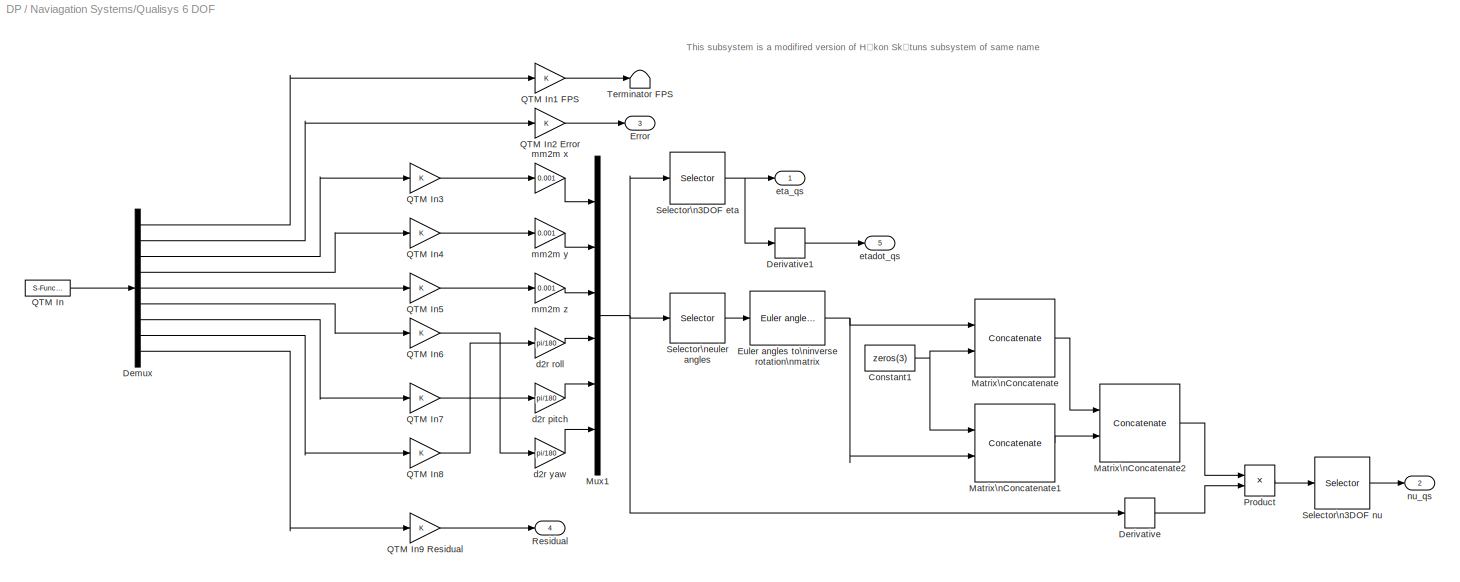
BLOCK [SubSystem] Naviagation Systems/Qualisys 6 DOF
  FunctionWithSeparateData = off
  MaskHideContents = off
  MinAlgLoopOccurrences = off
  Opaque = off
  Ports = [0, 5]
  PropExecContextOutsideSubsystem = off
  RTWSystemCode = Auto
  RequestExecContextInheritance = off
BLOCK [Constant] Naviagation Systems/Qualisys 6 DOF/Constant1
  Value = zeros(3)
BLOCK [Demux] Naviagation Systems/Qualisys 6 DOF/Demux
  DisplayOption = bar
  Outputs = 9
  Ports = [1, 9]
BLOCK [Derivative] Naviagation Systems/Qualisys 6 DOF/Derivative
BLOCK [Derivative] Naviagation Systems/Qualisys 6 DOF/Derivative1
BLOCK [Outport] Naviagation Systems/Qualisys 6 DOF/Error
  IconDisplay = Port number
  Port = 3
BLOCK [Reference] Naviagation Systems/Qualisys 6 DOF/Euler angles to\ninverse rotation\nmatrix  REF=marine_gnc/Models/ Kinematics/Euler angles to\ninverse rotation\nmatrix  (lib defined in mdl_10d96c221ba8, mdl_45f1105420c6)
  FunctionWithSeparateData = off
  Ports = [1, 1]
  RTWMemSecDataConstants = Inherit from model
  RTWMemSecDataInternal = Inherit from model
  RTWMemSecDataParameters = Inherit from model
  RTWMemSecFuncExecute = Inherit from model
  RTWMemSecFuncInitTerm = Inherit from model
  ShowPortLabels = FromPortIcon
  SourceBlock = marine_gnc/Models/ Kinematics/Euler angles to\ninverse rotation\nmatrix
  SourceType = Rbn
  SystemSampleTime = -1
BLOCK [Concatenate] Naviagation Systems/Qualisys 6 DOF/Matrix\nConcatenate
  Mode = Multidimensional array
  Ports = [2, 1]
BLOCK [Concatenate] Naviagation Systems/Qualisys 6 DOF/Matrix\nConcatenate1
  Mode = Multidimensional array
  Ports = [2, 1]
BLOCK [Concatenate] Naviagation Systems/Qualisys 6 DOF/Matrix\nConcatenate2
  ConcatenateDimension = 2
  Mode = Multidimensional array
  Ports = [2, 1]
BLOCK [Mux] Naviagation Systems/Qualisys 6 DOF/Mux1
  DisplayOption = bar
  Inputs = 6
  Ports = [6, 1]
BLOCK [Product] Naviagation Systems/Qualisys 6 DOF/Product
  InputSameDT = off
  Multiplication = Matrix(*)
  OutDataTypeMode = Inherit via internal rule
  OutDataTypeStr = Inherit: Inherit via internal rule
  Ports = [2, 1]
  SaturateOnIntegerOverflow = off
BLOCK [S-Function] Naviagation Systems/Qualisys 6 DOF/QTM In
  CopyFcn = NI_SIT_IO_callbacks(1);
  DeleteFcn = NI_SIT_IO_callbacks(2);
  EnableBusSupport = off
  FunctionName = NI_SIT_IO
  MaskCallbackString = NI_SIT_IO_callbacks(3);|||NI_SIT_IO_callbacks(4);||
  MaskDescription = Use this inport on any level of nested subsystems to allow the LabVIEW Simulation Interface Toolkit to map hardware to it.
  MaskDisplay = patch([-x x], [-y y], [.90980 .81960 .32156]);\nplot([0 -x x 0], [rad -y y rad]);\nfprintf('SIT%d', portnum);
  MaskEnableString = on,on,on,on,on,on
  MaskIconFrame = off
  MaskIconOpaque = on
  MaskIconRotate = none
  MaskIconUnits = autoscale
  MaskInitialization = NI_SIT_IO_init;
  MaskPortRotate = default
  MaskPromptString = Port number:|Port dimensions (-1 for dynamically sized):|Sample time (-1 for inherited):|Data type:|Signal type:|Block type:
  MaskStyleString = edit,edit,edit,popup(auto|double|single|int8|uint8|int16|uint16|int32|uint32|boolean),popup(auto|real|complex),edit
  MaskTabNameString = Parameters,Parameters,Parameters,Parameters,Parameters,Parameters
  MaskToolTipString = on,on,on,on,on,on
  MaskTunableValueString = off,off,off,off,off,off
  MaskType = SIT Inport
  MaskValueString = 1|9|-1|auto|auto|1
  MaskVarAliasString = ,,,,,
  MaskVariables = portnum=@1;width=@2;stime=@3;dtype=@4;stype=@5;btype=@6;
  MaskVisibilityString = on,on,on,on,on,off
  Parameters = width dtype portnum stime stype btype
  Ports = [0, 1]
  Priority = 1
BLOCK [Gain] Naviagation Systems/Qualisys 6 DOF/QTM In1 FPS
  OutDataType = fixdt(1, 16)
  OutDataTypeMode = Inherit via internal rule
  OutDataTypeStr = Inherit: Inherit via internal rule
  OutScaling = 2^0
  ParamDataTypeStr = Inherit: Inherit via internal rule
  ParameterDataType = fixdt(1, 16)
  ParameterDataTypeMode = Inherit via internal rule
  ParameterScaling = 2^0
  SaturateOnIntegerOverflow = off
BLOCK [Gain] Naviagation Systems/Qualisys 6 DOF/QTM In2 Error
  OutDataType = fixdt(1, 16)
  OutDataTypeMode = Inherit via internal rule
  OutDataTypeStr = Inherit: Inherit via internal rule
  OutScaling = 2^0
  ParamDataTypeStr = Inherit: Inherit via internal rule
  ParameterDataType = fixdt(1, 16)
  ParameterDataTypeMode = Inherit via internal rule
  ParameterScaling = 2^0
  SaturateOnIntegerOverflow = off
BLOCK [Gain] Naviagation Systems/Qualisys 6 DOF/QTM In3
  OutDataType = fixdt(1, 16)
  OutDataTypeMode = Inherit via internal rule
  OutDataTypeStr = Inherit: Inherit via internal rule
  OutScaling = 2^0
  ParamDataTypeStr = Inherit: Inherit via internal rule
  ParameterDataType = fixdt(1, 16)
  ParameterDataTypeMode = Inherit via internal rule
  ParameterScaling = 2^0
  SaturateOnIntegerOverflow = off
BLOCK [Gain] Naviagation Systems/Qualisys 6 DOF/QTM In4
  OutDataType = fixdt(1, 16)
  OutDataTypeMode = Inherit via internal rule
  OutDataTypeStr = Inherit: Inherit via internal rule
  OutScaling = 2^0
  ParamDataTypeStr = Inherit: Inherit via internal rule
  ParameterDataType = fixdt(1, 16)
  ParameterDataTypeMode = Inherit via internal rule
  ParameterScaling = 2^0
  SaturateOnIntegerOverflow = off
BLOCK [Gain] Naviagation Systems/Qualisys 6 DOF/QTM In5
  OutDataType = fixdt(1, 16)
  OutDataTypeMode = Inherit via internal rule
  OutDataTypeStr = Inherit: Inherit via internal rule
  OutScaling = 2^0
  ParamDataTypeStr = Inherit: Inherit via internal rule
  ParameterDataType = fixdt(1, 16)
  ParameterDataTypeMode = Inherit via internal rule
  ParameterScaling = 2^0
  SaturateOnIntegerOverflow = off
BLOCK [Gain] Naviagation Systems/Qualisys 6 DOF/QTM In6
  OutDataType = fixdt(1, 16)
  OutDataTypeMode = Inherit via internal rule
  OutDataTypeStr = Inherit: Inherit via internal rule
  OutScaling = 2^0
  ParamDataTypeStr = Inherit: Inherit via internal rule
  ParameterDataType = fixdt(1, 16)
  ParameterDataTypeMode = Inherit via internal rule
  ParameterScaling = 2^0
  SaturateOnIntegerOverflow = off
BLOCK [Gain] Naviagation Systems/Qualisys 6 DOF/QTM In7
  OutDataType = fixdt(1, 16)
  OutDataTypeMode = Inherit via internal rule
  OutDataTypeStr = Inherit: Inherit via internal rule
  OutScaling = 2^0
  ParamDataTypeStr = Inherit: Inherit via internal rule
  ParameterDataType = fixdt(1, 16)
  ParameterDataTypeMode = Inherit via internal rule
  ParameterScaling = 2^0
  SaturateOnIntegerOverflow = off
BLOCK [Gain] Naviagation Systems/Qualisys 6 DOF/QTM In8
  OutDataType = fixdt(1, 16)
  OutDataTypeMode = Inherit via internal rule
  OutDataTypeStr = Inherit: Inherit via internal rule
  OutScaling = 2^0
  ParamDataTypeStr = Inherit: Inherit via internal rule
  ParameterDataType = fixdt(1, 16)
  ParameterDataTypeMode = Inherit via internal rule
  ParameterScaling = 2^0
  SaturateOnIntegerOverflow = off
BLOCK [Gain] Naviagation Systems/Qualisys 6 DOF/QTM In9 Residual
  OutDataType = fixdt(1, 16)
  OutDataTypeMode = Inherit via internal rule
  OutDataTypeStr = Inherit: Inherit via internal rule
  OutScaling = 2^0
  ParamDataTypeStr = Inherit: Inherit via internal rule
  ParameterDataType = fixdt(1, 16)
  ParameterDataTypeMode = Inherit via internal rule
  ParameterScaling = 2^0
  SaturateOnIntegerOverflow = off
BLOCK [Outport] Naviagation Systems/Qualisys 6 DOF/Residual
  IconDisplay = Port number
  Port = 4
BLOCK [Selector] Naviagation Systems/Qualisys 6 DOF/Selector\n3DOF eta
  IndexOptions = Index vector (dialog)
  Indices = [1 2 6]
  InputPortWidth = 6
  OutputSizes = 1
  Ports = [1, 1]
BLOCK [Selector] Naviagation Systems/Qualisys 6 DOF/Selector\n3DOF nu
  IndexOptions = Index vector (dialog)
  Indices = [1 2 6]
  InputPortWidth = 6
  OutputSizes = 1
  Ports = [1, 1]
BLOCK [Selector] Naviagation Systems/Qualisys 6 DOF/Selector\neuler angles
  IndexOptions = Index vector (dialog)
  Indices = [4 5 6]
  InputPortWidth = 6
  OutputSizes = 1
  Ports = [1, 1]
BLOCK [Terminator] Naviagation Systems/Qualisys 6 DOF/Terminator FPS
BLOCK [Gain] Naviagation Systems/Qualisys 6 DOF/d2r pitch
  Gain = pi/180
  OutDataType = fixdt(1, 16)
  OutDataTypeMode = Inherit via internal rule
  OutDataTypeStr = Inherit: Inherit via internal rule
  OutScaling = 2^0
  ParamDataTypeStr = Inherit: Inherit via internal rule
  ParameterDataType = fixdt(1, 16)
  ParameterDataTypeMode = Inherit via internal rule
  ParameterScaling = 2^0
  SaturateOnIntegerOverflow = off
BLOCK [Gain] Naviagation Systems/Qualisys 6 DOF/d2r roll
  Gain = pi/180
  OutDataType = fixdt(1, 16)
  OutDataTypeMode = Inherit via internal rule
  OutDataTypeStr = Inherit: Inherit via internal rule
  OutScaling = 2^0
  ParamDataTypeStr = Inherit: Inherit via internal rule
  ParameterDataType = fixdt(1, 16)
  ParameterDataTypeMode = Inherit via internal rule
  ParameterScaling = 2^0
  SaturateOnIntegerOverflow = off
BLOCK [Gain] Naviagation Systems/Qualisys 6 DOF/d2r yaw
  Gain = pi/180
  OutDataType = fixdt(1, 16)
  OutDataTypeMode = Inherit via internal rule
  OutDataTypeStr = Inherit: Inherit via internal rule
  OutScaling = 2^0
  ParamDataTypeStr = Inherit: Inherit via internal rule
  ParameterDataType = fixdt(1, 16)
  ParameterDataTypeMode = Inherit via internal rule
  ParameterScaling = 2^0
  SaturateOnIntegerOverflow = off
BLOCK [Outport] Naviagation Systems/Qualisys 6 DOF/eta_qs
  IconDisplay = Port number
BLOCK [Outport] Naviagation Systems/Qualisys 6 DOF/etadot_qs
  IconDisplay = Port number
  Port = 5
BLOCK [Gain] Naviagation Systems/Qualisys 6 DOF/mm2m x
  Gain = 0.001
  OutDataTypeMode = Inherit via internal rule
  OutDataTypeStr = Inherit: Inherit via internal rule
  ParamDataTypeStr = Inherit: Inherit via internal rule
  ParameterDataTypeMode = Inherit via internal rule
  SaturateOnIntegerOverflow = off
BLOCK [Gain] Naviagation Systems/Qualisys 6 DOF/mm2m y
  Gain = 0.001
  OutDataTypeMode = Inherit via internal rule
  OutDataTypeStr = Inherit: Inherit via internal rule
  ParamDataTypeStr = Inherit: Inherit via internal rule
  ParameterDataTypeMode = Inherit via internal rule
  SaturateOnIntegerOverflow = off
BLOCK [Gain] Naviagation Systems/Qualisys 6 DOF/mm2m z
  Gain = 0.001
  OutDataTypeMode = Inherit via internal rule
  OutDataTypeStr = Inherit: Inherit via internal rule
  ParamDataTypeStr = Inherit: Inherit via internal rule
  ParameterDataTypeMode = Inherit via internal rule
  SaturateOnIntegerOverflow = off
BLOCK [Outport] Naviagation Systems/Qualisys 6 DOF/nu_qs
  IconDisplay = Port number
  Port = 2
BLOCK [Outport] Naviagation Systems/Residual
  IconDisplay = Port number
  Port = 3
BLOCK [Outport] Naviagation Systems/eta
  IconDisplay = Port number
  Port = 5
BLOCK [Inport] Naviagation Systems/eta_hil
  IconDisplay = Port number
BLOCK [Gain] Naviagation Systems/eta_surge
  OutDataType = fixdt(1, 16)
  OutDataTypeMode = Inherit via internal rule
  OutDataTypeStr = Inherit: Inherit via internal rule
  OutScaling = 2^0
  ParamDataTypeStr = Inherit: Inherit via internal rule
  ParameterDataType = fixdt(1, 16)
  ParameterDataTypeMode = Inherit via internal rule
  ParameterScaling = 2^0
  SaturateOnIntegerOverflow = off
BLOCK [Gain] Naviagation Systems/eta_sway
  OutDataType = fixdt(1, 16)
  OutDataTypeMode = Inherit via internal rule
  OutDataTypeStr = Inherit: Inherit via internal rule
  OutScaling = 2^0
  ParamDataTypeStr = Inherit: Inherit via internal rule
  ParameterDataType = fixdt(1, 16)
  ParameterDataTypeMode = Inherit via internal rule
  ParameterScaling = 2^0
  SaturateOnIntegerOverflow = off
BLOCK [Gain] Naviagation Systems/eta_yaw
  OutDataType = fixdt(1, 16)
  OutDataTypeMode = Inherit via internal rule
  OutDataTypeStr = Inherit: Inherit via internal rule
  OutScaling = 2^0
  ParamDataTypeStr = Inherit: Inherit via internal rule
  ParameterDataType = fixdt(1, 16)
  ParameterDataTypeMode = Inherit via internal rule
  ParameterScaling = 2^0
  SaturateOnIntegerOverflow = off
BLOCK [Outport] Naviagation Systems/etadot
  IconDisplay = Port number
  Port = 4
BLOCK [Inport] Naviagation Systems/etadot_hil
  IconDisplay = Port number
  Port = 3
BLOCK [Gain] Naviagation Systems/etadot_surge
  OutDataType = fixdt(1, 16)
  OutDataTypeMode = Inherit via internal rule
  OutDataTypeStr = Inherit: Inherit via internal rule
  OutScaling = 2^0
  ParamDataTypeStr = Inherit: Inherit via internal rule
  ParameterDataType = fixdt(1, 16)
  ParameterDataTypeMode = Inherit via internal rule
  ParameterScaling = 2^0
  SaturateOnIntegerOverflow = off
BLOCK [Gain] Naviagation Systems/etadot_sway
  OutDataType = fixdt(1, 16)
  OutDataTypeMode = Inherit via internal rule
  OutDataTypeStr = Inherit: Inherit via internal rule
  OutScaling = 2^0
  ParamDataTypeStr = Inherit: Inherit via internal rule
  ParameterDataType = fixdt(1, 16)
  ParameterDataTypeMode = Inherit via internal rule
  ParameterScaling = 2^0
  SaturateOnIntegerOverflow = off
BLOCK [Gain] Naviagation Systems/etadot_yaw
  OutDataType = fixdt(1, 16)
  OutDataTypeMode = Inherit via internal rule
  OutDataTypeStr = Inherit: Inherit via internal rule
  OutScaling = 2^0
  ParamDataTypeStr = Inherit: Inherit via internal rule
  ParameterDataType = fixdt(1, 16)
  ParameterDataTypeMode = Inherit via internal rule
  ParameterScaling = 2^0
  SaturateOnIntegerOverflow = off
BLOCK [Outport] Naviagation Systems/nu
  IconDisplay = Port number
  Port = 6
BLOCK [Inport] Naviagation Systems/nu_hil
  IconDisplay = Port number
  Port = 2
BLOCK [Gain] Naviagation Systems/nu_surge
  OutDataType = fixdt(1, 16)
  OutDataTypeMode = Inherit via internal rule
  OutDataTypeStr = Inherit: Inherit via internal rule
  OutScaling = 2^0
  ParamDataTypeStr = Inherit: Inherit via internal rule
  ParameterDataType = fixdt(1, 16)
  ParameterDataTypeMode = Inherit via internal rule
  ParameterScaling = 2^0
  SaturateOnIntegerOverflow = off
BLOCK [Gain] Naviagation Systems/nu_sway
  OutDataType = fixdt(1, 16)
  OutDataTypeMode = Inherit via internal rule
  OutDataTypeStr = Inherit: Inherit via internal rule
  OutScaling = 2^0
  ParamDataTypeStr = Inherit: Inherit via internal rule
  ParameterDataType = fixdt(1, 16)
  ParameterDataTypeMode = Inherit via internal rule
  ParameterScaling = 2^0
  SaturateOnIntegerOverflow = off
BLOCK [Gain] Naviagation Systems/nu_yaw
  OutDataType = fixdt(1, 16)
  OutDataTypeMode = Inherit via internal rule
  OutDataTypeStr = Inherit: Inherit via internal rule
  OutScaling = 2^0
  ParamDataTypeStr = Inherit: Inherit via internal rule
  ParameterDataType = fixdt(1, 16)
  ParameterDataTypeMode = Inherit via internal rule
  ParameterScaling = 2^0
  SaturateOnIntegerOverflow = off
BLOCK [SubSystem] Plants
  FunctionWithSeparateData = off
  MaskHideContents = off
  MinAlgLoopOccurrences = off
  Opaque = off
  Ports = [2, 3]
  PropExecContextOutsideSubsystem = off
  RTWSystemCode = Auto
  RequestExecContextInheritance = off
BLOCK [SubSystem] Plants/CSE1
  FunctionWithSeparateData = off
  MaskHideContents = off
  MinAlgLoopOccurrences = off
  Opaque = off
  Ports = [1, 0, 1]
  PropExecContextOutsideSubsystem = off
  RTWSystemCode = Auto
  RequestExecContextInheritance = off
BLOCK [SubSystem] Plants/CSE1/Bow Thruster
  FunctionWithSeparateData = off
  MaskHideContents = off
  MinAlgLoopOccurrences = off
  Opaque = off
  Ports = [2]
  PropExecContextOutsideSubsystem = off
  RTWSystemCode = Auto
  RequestExecContextInheritance = off
BLOCK [Sum] Plants/CSE1/Bow Thruster/Add
  InputSameDT = off
  Inputs = +++
  OutDataTypeMode = Inherit via internal rule
  OutDataTypeStr = Inherit: Inherit via internal rule
  Ports = [3, 1]
  SaturateOnIntegerOverflow = off
BLOCK [Gain] Plants/CSE1/Bow Thruster/BT_D_Gain1
  Gain = 0.02
  OutDataTypeMode = Inherit via internal rule
  OutDataTypeStr = Inherit: Inherit via internal rule
  ParamDataTypeStr = Inherit: Inherit via internal rule
  ParameterDataTypeMode = Inherit via internal rule
  SaturateOnIntegerOverflow = off
BLOCK [Gain] Plants/CSE1/Bow Thruster/BT_D_Gain2
  Gain = 0.02
  OutDataTypeMode = Inherit via internal rule
  OutDataTypeStr = Inherit: Inherit via internal rule
  ParamDataTypeStr = Inherit: Inherit via internal rule
  ParameterDataTypeMode = Inherit via internal rule
  SaturateOnIntegerOverflow = off
BLOCK [Gain] Plants/CSE1/Bow Thruster/BT_L_Gain1
  Gain = 0.02
  OutDataTypeMode = Inherit via internal rule
  OutDataTypeStr = Inherit: Inherit via internal rule
  ParamDataTypeStr = Inherit: Inherit via internal rule
  ParameterDataTypeMode = Inherit via internal rule
  SaturateOnIntegerOverflow = off
BLOCK [Gain] Plants/CSE1/Bow Thruster/BT_L_Gain2
  Gain = -0.02
  OutDataTypeMode = Inherit via internal rule
  OutDataTypeStr = Inherit: Inherit via internal rule
  ParamDataTypeStr = Inherit: Inherit via internal rule
  ParameterDataTypeMode = Inherit via internal rule
  SaturateOnIntegerOverflow = off
BLOCK [Constant] Plants/CSE1/Bow Thruster/BT_Power_Offset1
  Value = 0.05
BLOCK [Constant] Plants/CSE1/Bow Thruster/BT_Power_Offset2
  Value = 0.05
BLOCK [Constant] Plants/CSE1/Bow Thruster/BT_Power_Offset3
  Value = 0.05
BLOCK [Inport] Plants/CSE1/Bow Thruster/Bow Thruster Direction u_5
  IconDisplay = Port number
BLOCK [Inport] Plants/CSE1/Bow Thruster/Bow Thruster Power
  IconDisplay = Port number
  Port = 2
BLOCK [Constant] Plants/CSE1/Bow Thruster/Constant
  OutDataType = fixdt(1, 16)
  OutScaling = 2^0
  Value = 0
BLOCK [Constant] Plants/CSE1/Bow Thruster/Constant1
  OutDataType = fixdt(1, 16)
  OutScaling = 2^0
  Value = 0
BLOCK [Gain] Plants/CSE1/Bow Thruster/Neg
  Gain = -1
  OutDataType = fixdt(1, 16)
  OutDataTypeMode = Inherit via internal rule
  OutDataTypeStr = Inherit: Inherit via internal rule
  OutScaling = 2^0
  ParamDataTypeStr = Inherit: Inherit via internal rule
  ParameterDataType = fixdt(1, 16)
  ParameterDataTypeMode = Inherit via internal rule
  ParameterScaling = 2^0
  SaturateOnIntegerOverflow = off
BLOCK [S-Function] Plants/CSE1/Bow Thruster/SIT PWM0 BT
  CopyFcn = NI_SIT_IO_callbacks(1);
  DeleteFcn = NI_SIT_IO_callbacks(2);
  EnableBusSupport = off
  FunctionName = NI_SIT_IO
  MaskCallbackString = NI_SIT_IO_callbacks(3);|||NI_SIT_IO_callbacks(4);||
  MaskDescription = Use this outport on any level of nested subsystems to allow the LabVIEW Simulation Interface Toolkit to map hardware to it.
  MaskDisplay = patch([-x x], [-y y], [.90980 .81960 .32156]);\nplot([0 -x x 0], [rad -y y rad]);\nfprintf('SIT%d', portnum);
  MaskEnableString = on,on,on,on,on,on
  MaskIconFrame = off
  MaskIconOpaque = on
  MaskIconRotate = none
  MaskIconUnits = autoscale
  MaskInitialization = NI_SIT_IO_init;
  MaskPortRotate = default
  MaskPromptString = Port number:|Port dimensions (-1 for dynamically sized):|Sample time (-1 for inherited):|Data type:|Signal type:|Block type:
  MaskStyleString = edit,edit,edit,popup(auto|double|single|int8|uint8|int16|uint16|int32|uint32|boolean),popup(auto|real|complex),edit
  MaskTabNameString = Parameters,Parameters,Parameters,Parameters,Parameters,Parameters
  MaskToolTipString = on,on,on,on,on,on
  MaskTunableValueString = off,off,off,off,off,off
  MaskType = SIT Outport
  MaskValueString = 1|-1|-1|auto|auto|0
  MaskVarAliasString = ,,,,,
  MaskVariables = portnum=@1;width=@2;stime=@3;dtype=@4;stype=@5;btype=@6;
  MaskVisibilityString = on,on,on,on,on,off
  Parameters = width dtype portnum stime stype btype
  Ports = [1]
  Priority = 1
BLOCK [Reference] Plants/CSE1/Bow Thruster/Saturation\nDynamic  REF=simulink/Discontinuities/Saturation\nDynamic
  DoSatur = off
  FunctionWithSeparateData = off
  LockScale = off
  OutDataType = fixdt(1, 16)
  OutDataTypeStr = Inherit: Same as second input
  OutMax = []
  OutMin = []
  OutScaling = 2^-10
  OutputDataTypeScalingMode = Same as second input
  Ports = [3, 1]
  RTWMemSecDataConstants = Inherit from model
  RTWMemSecDataInternal = Inherit from model
  RTWMemSecDataParameters = Inherit from model
  RTWMemSecFuncExecute = Inherit from model
  RTWMemSecFuncInitTerm = Inherit from model
  RndMeth = Floor
  ShowPortLabels = FromPortIcon
  SourceBlock = simulink/Discontinuities/Saturation\nDynamic
  SourceType = Saturation Dynamic
  SystemSampleTime = -1
BLOCK [Reference] Plants/CSE1/Bow Thruster/Saturation\nDynamic1  REF=simulink/Discontinuities/Saturation\nDynamic
  DoSatur = off
  FunctionWithSeparateData = off
  LockScale = off
  OutDataType = fixdt(1, 16)
  OutDataTypeStr = Inherit: Same as second input
  OutMax = []
  OutMin = []
  OutScaling = 2^-10
  OutputDataTypeScalingMode = Same as second input
  Ports = [3, 1]
  RTWMemSecDataConstants = Inherit from model
  RTWMemSecDataInternal = Inherit from model
  RTWMemSecDataParameters = Inherit from model
  RTWMemSecFuncExecute = Inherit from model
  RTWMemSecFuncInitTerm = Inherit from model
  RndMeth = Floor
  ShowPortLabels = FromPortIcon
  SourceBlock = simulink/Discontinuities/Saturation\nDynamic
  SourceType = Saturation Dynamic
  SystemSampleTime = -1
BLOCK [Reference] Plants/CSE1/Bow Thruster/Saturation\nDynamic2  REF=simulink/Discontinuities/Saturation\nDynamic
  DoSatur = off
  FunctionWithSeparateData = off
  LockScale = off
  OutDataType = fixdt(1, 16)
  OutDataTypeStr = Inherit: Same as second input
  OutMax = []
  OutMin = []
  OutScaling = 2^-10
  OutputDataTypeScalingMode = Same as second input
  Ports = [3, 1]
  RTWMemSecDataConstants = Inherit from model
  RTWMemSecDataInternal = Inherit from model
  RTWMemSecDataParameters = Inherit from model
  RTWMemSecFuncExecute = Inherit from model
  RTWMemSecFuncInitTerm = Inherit from model
  RndMeth = Floor
  ShowPortLabels = FromPortIcon
  SourceBlock = simulink/Discontinuities/Saturation\nDynamic
  SourceType = Saturation Dynamic
  SystemSampleTime = -1
BLOCK [Sum] Plants/CSE1/Bow Thruster/Sum1
  IconShape = round
  InputSameDT = off
  Inputs = |++
  OutDataTypeMode = Inherit via internal rule
  OutDataTypeStr = Inherit: Inherit via internal rule
  Ports = [2, 1]
  SaturateOnIntegerOverflow = off
BLOCK [Sum] Plants/CSE1/Bow Thruster/Sum2
  IconShape = round
  InputSameDT = off
  Inputs = |++
  OutDataTypeMode = Inherit via internal rule
  OutDataTypeStr = Inherit: Inherit via internal rule
  Ports = [2, 1]
  SaturateOnIntegerOverflow = off
BLOCK [Terminator] Plants/CSE1/Bow Thruster/Terminator
BLOCK [Terminator] Plants/CSE1/Bow Thruster/Terminator1
BLOCK [Demux] Plants/CSE1/Demux
  DisplayOption = bar
  Outputs = 7
  Ports = [1, 7]
BLOCK [EnablePort] Plants/CSE1/Enable
  Ports = []
  StatesWhenEnabling = reset
BLOCK [Inport] Plants/CSE1/Thurster setting
  IconDisplay = Port number
BLOCK [SubSystem] Plants/CSE1/Voith Schneider Propeller 
  FunctionWithSeparateData = off
  MaskHideContents = off
  MinAlgLoopOccurrences = off
  Opaque = off
  Ports = [5]
  PropExecContextOutsideSubsystem = off
  RTWSystemCode = Auto
  RequestExecContextInheritance = off
BLOCK [Gain] Plants/CSE1/Voith Schneider Propeller /-x
  Gain = -1
  OutDataTypeMode = Inherit via internal rule
  OutDataTypeStr = Inherit: Inherit via internal rule
  ParamDataTypeStr = Inherit: Inherit via internal rule
  ParameterDataTypeMode = Inherit via internal rule
  SaturateOnIntegerOverflow = off
BLOCK [Gain] Plants/CSE1/Voith Schneider Propeller /-y
  Gain = -1
  OutDataTypeMode = Inherit via internal rule
  OutDataTypeStr = Inherit: Inherit via internal rule
  ParamDataTypeStr = Inherit: Inherit via internal rule
  ParameterDataTypeMode = Inherit via internal rule
  SaturateOnIntegerOverflow = off
BLOCK [Inport] Plants/CSE1/Voith Schneider Propeller /Port VSP x u_2
  IconDisplay = Port number
  Port = 2
BLOCK [Inport] Plants/CSE1/Voith Schneider Propeller /Port VSP y u_1
  IconDisplay = Port number
BLOCK [Product] Plants/CSE1/Voith Schneider Propeller /Product1
  InputSameDT = off
  OutDataTypeMode = Inherit via internal rule
  OutDataTypeStr = Inherit: Inherit via internal rule
  Ports = [2, 1]
  SaturateOnIntegerOverflow = off
BLOCK [Product] Plants/CSE1/Voith Schneider Propeller /Product2
  InputSameDT = off
  OutDataTypeMode = Inherit via internal rule
  OutDataTypeStr = Inherit: Inherit via internal rule
  Ports = [2, 1]
  SaturateOnIntegerOverflow = off
BLOCK [Product] Plants/CSE1/Voith Schneider Propeller /Product3
  InputSameDT = off
  OutDataTypeMode = Inherit via internal rule
  OutDataTypeStr = Inherit: Inherit via internal rule
  Ports = [2, 1]
  SaturateOnIntegerOverflow = off
BLOCK [Product] Plants/CSE1/Voith Schneider Propeller /Product4
  InputSameDT = off
  OutDataTypeMode = Inherit via internal rule
  OutDataTypeStr = Inherit: Inherit via internal rule
  Ports = [2, 1]
  SaturateOnIntegerOverflow = off
BLOCK [S-Function] Plants/CSE1/Voith Schneider Propeller /SIT PWM1 VSPS Port
  CopyFcn = NI_SIT_IO_callbacks(1);
  DeleteFcn = NI_SIT_IO_callbacks(2);
  EnableBusSupport = off
  FunctionName = NI_SIT_IO
  MaskCallbackString = NI_SIT_IO_callbacks(3);|||NI_SIT_IO_callbacks(4);||
  MaskDescription = Use this outport on any level of nested subsystems to allow the LabVIEW Simulation Interface Toolkit to map hardware to it.
  MaskDisplay = patch([-x x], [-y y], [.90980 .81960 .32156]);\nplot([0 -x x 0], [rad -y y rad]);\nfprintf('SIT%d', portnum);
  MaskEnableString = on,on,on,on,on,on
  MaskIconFrame = off
  MaskIconOpaque = on
  MaskIconRotate = none
  MaskIconUnits = autoscale
  MaskInitialization = NI_SIT_IO_init;
  MaskPortRotate = default
  MaskPromptString = Port number:|Port dimensions (-1 for dynamically sized):|Sample time (-1 for inherited):|Data type:|Signal type:|Block type:
  MaskStyleString = edit,edit,edit,popup(auto|double|single|int8|uint8|int16|uint16|int32|uint32|boolean),popup(auto|real|complex),edit
  MaskTabNameString = Parameters,Parameters,Parameters,Parameters,Parameters,Parameters
  MaskToolTipString = on,on,on,on,on,on
  MaskTunableValueString = off,off,off,off,off,off
  MaskType = SIT Outport
  MaskValueString = 5|-1|-1|auto|auto|0
  MaskVarAliasString = ,,,,,
  MaskVariables = portnum=@1;width=@2;stime=@3;dtype=@4;stype=@5;btype=@6;
  MaskVisibilityString = on,on,on,on,on,off
  Parameters = width dtype portnum stime stype btype
  Ports = [1]
  Priority = 5
BLOCK [S-Function] Plants/CSE1/Voith Schneider Propeller /SIT PWM2 VSPS Starboard
  CopyFcn = NI_SIT_IO_callbacks(1);
  DeleteFcn = NI_SIT_IO_callbacks(2);
  EnableBusSupport = off
  FunctionName = NI_SIT_IO
  MaskCallbackString = NI_SIT_IO_callbacks(3);|||NI_SIT_IO_callbacks(4);||
  MaskDescription = Use this outport on any level of nested subsystems to allow the LabVIEW Simulation Interface Toolkit to map hardware to it.
  MaskDisplay = patch([-x x], [-y y], [.90980 .81960 .32156]);\nplot([0 -x x 0], [rad -y y rad]);\nfprintf('SIT%d', portnum);
  MaskEnableString = on,on,on,on,on,on
  MaskIconFrame = off
  MaskIconOpaque = on
  MaskIconRotate = none
  MaskIconUnits = autoscale
  MaskInitialization = NI_SIT_IO_init;
  MaskPortRotate = default
  MaskPromptString = Port number:|Port dimensions (-1 for dynamically sized):|Sample time (-1 for inherited):|Data type:|Signal type:|Block type:
  MaskStyleString = edit,edit,edit,popup(auto|double|single|int8|uint8|int16|uint16|int32|uint32|boolean),popup(auto|real|complex),edit
  MaskTabNameString = Parameters,Parameters,Parameters,Parameters,Parameters,Parameters
  MaskToolTipString = on,on,on,on,on,on
  MaskTunableValueString = off,off,off,off,off,off
  MaskType = SIT Outport
  MaskValueString = 6|-1|-1|auto|auto|0
  MaskVarAliasString = ,,,,,
  MaskVariables = portnum=@1;width=@2;stime=@3;dtype=@4;stype=@5;btype=@6;
  MaskVisibilityString = on,on,on,on,on,off
  Parameters = width dtype portnum stime stype btype
  Ports = [1]
  Priority = 6
BLOCK [S-Function] Plants/CSE1/Voith Schneider Propeller /SIT PWM4 Servo1
  CopyFcn = NI_SIT_IO_callbacks(1);
  DeleteFcn = NI_SIT_IO_callbacks(2);
  EnableBusSupport = off
  FunctionName = NI_SIT_IO
  MaskCallbackString = NI_SIT_IO_callbacks(3);|||NI_SIT_IO_callbacks(4);||
  MaskDescription = Use this outport on any level of nested subsystems to allow the LabVIEW Simulation Interface Toolkit to map hardware to it.
  MaskDisplay = patch([-x x], [-y y], [.90980 .81960 .32156]);\nplot([0 -x x 0], [rad -y y rad]);\nfprintf('SIT%d', portnum);
  MaskEnableString = on,on,on,on,on,on
  MaskIconFrame = off
  MaskIconOpaque = on
  MaskIconRotate = none
  MaskIconUnits = autoscale
  MaskInitialization = NI_SIT_IO_init;
  MaskPortRotate = default
  MaskPromptString = Port number:|Port dimensions (-1 for dynamically sized):|Sample time (-1 for inherited):|Data type:|Signal type:|Block type:
  MaskStyleString = edit,edit,edit,popup(auto|double|single|int8|uint8|int16|uint16|int32|uint32|boolean),popup(auto|real|complex),edit
  MaskTabNameString = Parameters,Parameters,Parameters,Parameters,Parameters,Parameters
  MaskToolTipString = on,on,on,on,on,on
  MaskTunableValueString = off,off,off,off,off,off
  MaskType = SIT Outport
  MaskValueString = 1|-1|-1|auto|auto|0
  MaskVarAliasString = ,,,,,
  MaskVariables = portnum=@1;width=@2;stime=@3;dtype=@4;stype=@5;btype=@6;
  MaskVisibilityString = on,on,on,on,on,off
  Parameters = width dtype portnum stime stype btype
  Ports = [1]
  Priority = 1
BLOCK [S-Function] Plants/CSE1/Voith Schneider Propeller /SIT PWM5 Servo2
  CopyFcn = NI_SIT_IO_callbacks(1);
  DeleteFcn = NI_SIT_IO_callbacks(2);
  EnableBusSupport = off
  FunctionName = NI_SIT_IO
  MaskCallbackString = NI_SIT_IO_callbacks(3);|||NI_SIT_IO_callbacks(4);||
  MaskDescription = Use this outport on any level of nested subsystems to allow the LabVIEW Simulation Interface Toolkit to map hardware to it.
  MaskDisplay = patch([-x x], [-y y], [.90980 .81960 .32156]);\nplot([0 -x x 0], [rad -y y rad]);\nfprintf('SIT%d', portnum);
  MaskEnableString = on,on,on,on,on,on
  MaskIconFrame = off
  MaskIconOpaque = on
  MaskIconRotate = none
  MaskIconUnits = autoscale
  MaskInitialization = NI_SIT_IO_init;
  MaskPortRotate = default
  MaskPromptString = Port number:|Port dimensions (-1 for dynamically sized):|Sample time (-1 for inherited):|Data type:|Signal type:|Block type:
  MaskStyleString = edit,edit,edit,popup(auto|double|single|int8|uint8|int16|uint16|int32|uint32|boolean),popup(auto|real|complex),edit
  MaskTabNameString = Parameters,Parameters,Parameters,Parameters,Parameters,Parameters
  MaskToolTipString = on,on,on,on,on,on
  MaskTunableValueString = off,off,off,off,off,off
  MaskType = SIT Outport
  MaskValueString = 2|-1|-1|auto|auto|0
  MaskVarAliasString = ,,,,,
  MaskVariables = portnum=@1;width=@2;stime=@3;dtype=@4;stype=@5;btype=@6;
  MaskVisibilityString = on,on,on,on,on,off
  Parameters = width dtype portnum stime stype btype
  Ports = [1]
  Priority = 2
BLOCK [S-Function] Plants/CSE1/Voith Schneider Propeller /SIT PWM6 Servo3
  CopyFcn = NI_SIT_IO_callbacks(1);
  DeleteFcn = NI_SIT_IO_callbacks(2);
  EnableBusSupport = off
  FunctionName = NI_SIT_IO
  MaskCallbackString = NI_SIT_IO_callbacks(3);|||NI_SIT_IO_callbacks(4);||
  MaskDescription = Use this outport on any level of nested subsystems to allow the LabVIEW Simulation Interface Toolkit to map hardware to it.
  MaskDisplay = patch([-x x], [-y y], [.90980 .81960 .32156]);\nplot([0 -x x 0], [rad -y y rad]);\nfprintf('SIT%d', portnum);
  MaskEnableString = on,on,on,on,on,on
  MaskIconFrame = off
  MaskIconOpaque = on
  MaskIconRotate = none
  MaskIconUnits = autoscale
  MaskInitialization = NI_SIT_IO_init;
  MaskPortRotate = default
  MaskPromptString = Port number:|Port dimensions (-1 for dynamically sized):|Sample time (-1 for inherited):|Data type:|Signal type:|Block type:
  MaskStyleString = edit,edit,edit,popup(auto|double|single|int8|uint8|int16|uint16|int32|uint32|boolean),popup(auto|real|complex),edit
  MaskTabNameString = Parameters,Parameters,Parameters,Parameters,Parameters,Parameters
  MaskToolTipString = on,on,on,on,on,on
  MaskTunableValueString = off,off,off,off,off,off
  MaskType = SIT Outport
  MaskValueString = 3|-1|-1|auto|auto|0
  MaskVarAliasString = ,,,,,
  MaskVariables = portnum=@1;width=@2;stime=@3;dtype=@4;stype=@5;btype=@6;
  MaskVisibilityString = on,on,on,on,on,off
  Parameters = width dtype portnum stime stype btype
  Ports = [1]
  Priority = 3
BLOCK [S-Function] Plants/CSE1/Voith Schneider Propeller /SIT PWM7 Servo4
  CopyFcn = NI_SIT_IO_callbacks(1);
  DeleteFcn = NI_SIT_IO_callbacks(2);
  EnableBusSupport = off
  FunctionName = NI_SIT_IO
  MaskCallbackString = NI_SIT_IO_callbacks(3);|||NI_SIT_IO_callbacks(4);||
  MaskDescription = Use this outport on any level of nested subsystems to allow the LabVIEW Simulation Interface Toolkit to map hardware to it.
  MaskDisplay = patch([-x x], [-y y], [.90980 .81960 .32156]);\nplot([0 -x x 0], [rad -y y rad]);\nfprintf('SIT%d', portnum);
  MaskEnableString = on,on,on,on,on,on
  MaskIconFrame = off
  MaskIconOpaque = on
  MaskIconRotate = none
  MaskIconUnits = autoscale
  MaskInitialization = NI_SIT_IO_init;
  MaskPortRotate = default
  MaskPromptString = Port number:|Port dimensions (-1 for dynamically sized):|Sample time (-1 for inherited):|Data type:|Signal type:|Block type:
  MaskStyleString = edit,edit,edit,popup(auto|double|single|int8|uint8|int16|uint16|int32|uint32|boolean),popup(auto|real|complex),edit
  MaskTabNameString = Parameters,Parameters,Parameters,Parameters,Parameters,Parameters
  MaskToolTipString = on,on,on,on,on,on
  MaskTunableValueString = off,off,off,off,off,off
  MaskType = SIT Outport
  MaskValueString = 4|-1|-1|auto|auto|0
  MaskVarAliasString = ,,,,,
  MaskVariables = portnum=@1;width=@2;stime=@3;dtype=@4;stype=@5;btype=@6;
  MaskVisibilityString = on,on,on,on,on,off
  Parameters = width dtype portnum stime stype btype
  Ports = [1]
  Priority = 4
BLOCK [Lookup2D] Plants/CSE1/Voith Schneider Propeller /Servo1
  ColumnIndex = [-1,0,1]
  InputSameDT = off
  RowIndex = [-1,0,1]
  SaturateOnIntegerOverflow = off
  Table = reshape([0.06,0.0495363,0.043301,0.06,0.052446,0.043301,0.06,0.0541518,0.043301],3,3)
BLOCK [Lookup2D] Plants/CSE1/Voith Schneider Propeller /Servo2
  ColumnIndex = [-1,0,1]
  InputSameDT = off
  RowIndex = [-1,0,1]
  SaturateOnIntegerOverflow = off
  Table = reshape([0.03860880,0.0386088,0.03860880,0.0459941,0.0477243,0.0500953,0.057,0.057,0.057],3,3)
BLOCK [Lookup2D] Plants/CSE1/Voith Schneider Propeller /Servo3
  ColumnIndex = [-1,0,1]
  InputSameDT = off
  RowIndex = [-1,0,1]
  SaturateOnIntegerOverflow = off
  Table = reshape([0.0640809,0.0640809,0.0640809,0.0539629,0.0541315,0.0556492,0.0442664,0.0442664,0.0442664],3,3)
BLOCK [Lookup2D] Plants/CSE1/Voith Schneider Propeller /Servo4
  ColumnIndex = [-1,0,1]
  InputSameDT = off
  RowIndex = [-1,0,1]
  SaturateOnIntegerOverflow = off
  Table = reshape([0.0602867,0.0470489,0.0403879,0.0602867,0.049747,0.0403879,0.0602867,0.0526138,0.0403879],3,3)
BLOCK [Signum] Plants/CSE1/Voith Schneider Propeller /Sign
BLOCK [Inport] Plants/CSE1/Voith Schneider Propeller /Starboard VSP x u_4
  IconDisplay = Port number
  Port = 4
BLOCK [Inport] Plants/CSE1/Voith Schneider Propeller /Starboard VSP y u_3
  IconDisplay = Port number
  Port = 3
BLOCK [Sum] Plants/CSE1/Voith Schneider Propeller /Sum
  IconShape = round
  InputSameDT = off
  Inputs = |++
  OutDataTypeMode = Inherit via internal rule
  OutDataTypeStr = Inherit: Inherit via internal rule
  Ports = [2, 1]
  SaturateOnIntegerOverflow = off
BLOCK [Constant] Plants/CSE1/Voith Schneider Propeller /VPS_Power_Offset
  Value = 0.05
BLOCK [Gain] Plants/CSE1/Voith Schneider Propeller /VPS_Speed_Gain
  Gain = -0.02
  OutDataTypeMode = Inherit via internal rule
  OutDataTypeStr = Inherit: Inherit via internal rule
  ParamDataTypeStr = Inherit: Inherit via internal rule
  ParameterDataTypeMode = Inherit via internal rule
  SaturateOnIntegerOverflow = off
BLOCK [Inport] Plants/CSE1/Voith Schneider Propeller /VSP Speed
  IconDisplay = Port number
  Port = 5
BLOCK [Gain] Plants/CSE1/Voith Schneider Propeller /VSPS Port
  OutDataType = fixdt(1, 16)
  OutDataTypeMode = Inherit via internal rule
  OutDataTypeStr = Inherit: Inherit via internal rule
  OutScaling = 2^0
  ParamDataTypeStr = Inherit: Inherit via internal rule
  ParameterDataType = fixdt(1, 16)
  ParameterDataTypeMode = Inherit via internal rule
  ParameterScaling = 2^0
  SaturateOnIntegerOverflow = off
BLOCK [Gain] Plants/CSE1/Voith Schneider Propeller /VSPS Starboard
  OutDataType = fixdt(1, 16)
  OutDataTypeMode = Inherit via internal rule
  OutDataTypeStr = Inherit: Inherit via internal rule
  OutScaling = 2^0
  ParamDataTypeStr = Inherit: Inherit via internal rule
  ParameterDataType = fixdt(1, 16)
  ParameterDataTypeMode = Inherit via internal rule
  ParameterScaling = 2^0
  SaturateOnIntegerOverflow = off
BLOCK [Demux] Plants/Demux
  DisplayOption = bar
  Outputs = 7
  Ports = [1, 7]
BLOCK [Constant] Plants/Enable CSE1
  Value = 0
BLOCK [Constant] Plants/Enable Linear Simulator
  Value = 0
BLOCK [SubSystem] Plants/Linear Simulator
  FunctionWithSeparateData = off
  MaskHideContents = off
  MinAlgLoopOccurrences = on
  Opaque = off
  Ports = [1, 3, 1]
  PropExecContextOutsideSubsystem = off
  RTWSystemCode = Auto
  RequestExecContextInheritance = off
BLOCK [Demux] Plants/Linear Simulator/Demux1
  DisplayOption = bar
  Outputs = 3
  Ports = [1, 3]
BLOCK [Demux] Plants/Linear Simulator/Demux2
  DisplayOption = bar
  Outputs = 3
  Ports = [1, 3]
BLOCK [Demux] Plants/Linear Simulator/Demux3
  DisplayOption = bar
  Outputs = 3
  Ports = [1, 3]
BLOCK [EnablePort] Plants/Linear Simulator/Enable
  Ports = []
  StatesWhenEnabling = reset
BLOCK [SubSystem] Plants/Linear Simulator/Linear Vessel Dynamics
  FunctionWithSeparateData = off
  MaskHideContents = off
  MinAlgLoopOccurrences = off
  Opaque = off
  Ports = [1, 3]
  PropExecContextOutsideSubsystem = off
  RTWSystemCode = Auto
  RequestExecContextInheritance = off
BLOCK [SubSystem] Plants/Linear Simulator/Linear Vessel Dynamics/D_L
  FunctionWithSeparateData = off
  MaskHideContents = off
  MinAlgLoopOccurrences = off
  Opaque = off
  Ports = [0, 1]
  PropExecContextOutsideSubsystem = off
  RTWSystemCode = Auto
  RequestExecContextInheritance = off
BLOCK [Gain] Plants/Linear Simulator/Linear Vessel Dynamics/D_L/-N_r
  Gain = -1
  OutDataType = fixdt(1, 16)
  OutDataTypeMode = Inherit via internal rule
  OutDataTypeStr = Inherit: Inherit via internal rule
  OutScaling = 2^0
  ParamDataTypeStr = Inherit: Inherit via internal rule
  ParameterDataType = fixdt(1, 16)
  ParameterDataTypeMode = Inherit via internal rule
  ParameterScaling = 2^0
  SaturateOnIntegerOverflow = off
BLOCK [Gain] Plants/Linear Simulator/Linear Vessel Dynamics/D_L/-N_v
  Gain = -1
  OutDataType = fixdt(1, 16)
  OutDataTypeMode = Inherit via internal rule
  OutDataTypeStr = Inherit: Inherit via internal rule
  OutScaling = 2^0
  ParamDataTypeStr = Inherit: Inherit via internal rule
  ParameterDataType = fixdt(1, 16)
  ParameterDataTypeMode = Inherit via internal rule
  ParameterScaling = 2^0
  SaturateOnIntegerOverflow = off
BLOCK [Gain] Plants/Linear Simulator/Linear Vessel Dynamics/D_L/-X_u
  Gain = -1
  OutDataType = fixdt(1, 16)
  OutDataTypeMode = Inherit via internal rule
  OutDataTypeStr = Inherit: Inherit via internal rule
  OutScaling = 2^0
  ParamDataTypeStr = Inherit: Inherit via internal rule
  ParameterDataType = fixdt(1, 16)
  ParameterDataTypeMode = Inherit via internal rule
  ParameterScaling = 2^0
  SaturateOnIntegerOverflow = off
BLOCK [Gain] Plants/Linear Simulator/Linear Vessel Dynamics/D_L/-Y_v
  Gain = -1
  OutDataType = fixdt(1, 16)
  OutDataTypeMode = Inherit via internal rule
  OutDataTypeStr = Inherit: Inherit via internal rule
  OutScaling = 2^0
  ParamDataTypeStr = Inherit: Inherit via internal rule
  ParameterDataType = fixdt(1, 16)
  ParameterDataTypeMode = Inherit via internal rule
  ParameterScaling = 2^0
  SaturateOnIntegerOverflow = off
BLOCK [Gain] Plants/Linear Simulator/Linear Vessel Dynamics/D_L/-Y_vr
  Gain = -1
  OutDataType = fixdt(1, 16)
  OutDataTypeMode = Inherit via internal rule
  OutDataTypeStr = Inherit: Inherit via internal rule
  OutScaling = 2^0
  ParamDataTypeStr = Inherit: Inherit via internal rule
  ParameterDataType = fixdt(1, 16)
  ParameterDataTypeMode = Inherit via internal rule
  ParameterScaling = 2^0
  SaturateOnIntegerOverflow = off
BLOCK [Outport] Plants/Linear Simulator/Linear Vessel Dynamics/D_L/D_L
  IconDisplay = Port number
BLOCK [Constant] Plants/Linear Simulator/Linear Vessel Dynamics/D_L/D_L_12
  Value = 0
BLOCK [Constant] Plants/Linear Simulator/Linear Vessel Dynamics/D_L/D_L_13
  Value = 0
BLOCK [Constant] Plants/Linear Simulator/Linear Vessel Dynamics/D_L/D_L_21
  Value = 0
BLOCK [Constant] Plants/Linear Simulator/Linear Vessel Dynamics/D_L/D_L_31
  Value = 0
BLOCK [Reshape] Plants/Linear Simulator/Linear Vessel Dynamics/D_L/Linear Dampning matrix
  OutputDimensionality = Customize
  OutputDimensions = [3,3]
  Ports = [1, 1]
BLOCK [Mux] Plants/Linear Simulator/Linear Vessel Dynamics/D_L/Mux
  DisplayOption = bar
  Inputs = 9
  Ports = [9, 1]
BLOCK [Constant] Plants/Linear Simulator/Linear Vessel Dynamics/D_L/N_r
  Value = -1.900
BLOCK [Constant] Plants/Linear Simulator/Linear Vessel Dynamics/D_L/N_v
  Value = 0.18140
BLOCK [Constant] Plants/Linear Simulator/Linear Vessel Dynamics/D_L/X_u
  Value = -0.59739
BLOCK [Constant] Plants/Linear Simulator/Linear Vessel Dynamics/D_L/Y_r
  Value = -7.250
BLOCK [Constant] Plants/Linear Simulator/Linear Vessel Dynamics/D_L/Y_v
  Value = -3.50625
BLOCK [SubSystem] Plants/Linear Simulator/Linear Vessel Dynamics/Initial eta
  FunctionWithSeparateData = off
  MaskHideContents = off
  MinAlgLoopOccurrences = off
  Opaque = off
  Ports = [0, 1]
  PropExecContextOutsideSubsystem = off
  RTWSystemCode = Auto
  RequestExecContextInheritance = off
BLOCK [Mux] Plants/Linear Simulator/Linear Vessel Dynamics/Initial eta/Mux
  DisplayOption = bar
  Inputs = 3
  Ports = [3, 1]
BLOCK [Outport] Plants/Linear Simulator/Linear Vessel Dynamics/Initial eta/eta_0
  IconDisplay = Port number
  OutDataType = fixdt(1, 16)
  OutScaling = 2^0
BLOCK [Constant] Plants/Linear Simulator/Linear Vessel Dynamics/Initial eta/psi_0
  OutDataType = fixdt(1, 16)
  OutScaling = 2^0
  Value = 0
BLOCK [Constant] Plants/Linear Simulator/Linear Vessel Dynamics/Initial eta/x_0
  OutDataType = fixdt(1, 16)
  OutScaling = 2^0
  Value = 0
BLOCK [Constant] Plants/Linear Simulator/Linear Vessel Dynamics/Initial eta/y_0
  OutDataType = fixdt(1, 16)
  OutScaling = 2^0
  Value = 0
BLOCK [SubSystem] Plants/Linear Simulator/Linear Vessel Dynamics/Initial nu
  FunctionWithSeparateData = off
  MaskHideContents = off
  MinAlgLoopOccurrences = off
  Opaque = off
  Ports = [0, 1]
  PropExecContextOutsideSubsystem = off
  RTWSystemCode = Auto
  RequestExecContextInheritance = off
BLOCK [Mux] Plants/Linear Simulator/Linear Vessel Dynamics/Initial nu/Mux
  DisplayOption = bar
  Inputs = 3
  Ports = [3, 1]
BLOCK [Outport] Plants/Linear Simulator/Linear Vessel Dynamics/Initial nu/nu_0
  IconDisplay = Port number
  OutDataType = fixdt(1, 16)
  OutScaling = 2^0
BLOCK [Constant] Plants/Linear Simulator/Linear Vessel Dynamics/Initial nu/r_0
  OutDataType = fixdt(1, 16)
  OutScaling = 2^0
  Value = 0
BLOCK [Constant] Plants/Linear Simulator/Linear Vessel Dynamics/Initial nu/u_0
  OutDataType = fixdt(1, 16)
  OutScaling = 2^0
  Value = 0
BLOCK [Constant] Plants/Linear Simulator/Linear Vessel Dynamics/Initial nu/v_0
  OutDataType = fixdt(1, 16)
  OutScaling = 2^0
  Value = 0
BLOCK [Integrator] Plants/Linear Simulator/Linear Vessel Dynamics/Integrator
  ExternalReset = level
  InitialCondition = v1_0_real
  InitialConditionSource = external
  LowerSaturationLimit = -1*velocitySatValues1
  Ports = [3, 1]
  UpperSaturationLimit = velocitySatValues1
BLOCK [Integrator] Plants/Linear Simulator/Linear Vessel Dynamics/Integrator1
  ExternalReset = level
  InitialCondition = eta1_0_real
  InitialConditionSource = external
  Ports = [3, 1]
BLOCK [SubSystem] Plants/Linear Simulator/Linear Vessel Dynamics/M_inv
  FunctionWithSeparateData = off
  MaskHideContents = off
  MinAlgLoopOccurrences = off
  Opaque = off
  Ports = [0, 1]
  PropExecContextOutsideSubsystem = off
  RTWSystemCode = Auto
  RequestExecContextInheritance = off
BLOCK [Constant] Plants/Linear Simulator/Linear Vessel Dynamics/M_inv/I_z
  Value = 1.760
BLOCK [Product] Plants/Linear Simulator/Linear Vessel Dynamics/M_inv/Inverse
  InputSameDT = off
  Inputs = /
  Multiplication = Matrix(*)
  OutDataTypeMode = Inherit via internal rule
  OutDataTypeStr = Inherit: Inherit via internal rule
  Ports = [1, 1]
  RndMeth = Floor
  SaturateOnIntegerOverflow = off
BLOCK [Reshape] Plants/Linear Simulator/Linear Vessel Dynamics/M_inv/M
  OutputDimensionality = Customize
  OutputDimensions = [3,3]
  Ports = [1, 1]
BLOCK [Sum] Plants/Linear Simulator/Linear Vessel Dynamics/M_inv/M_11
  InputSameDT = off
  Inputs = +-
  OutDataTypeMode = Inherit via internal rule
  OutDataTypeStr = Inherit: Inherit via internal rule
  Ports = [2, 1]
  SaturateOnIntegerOverflow = off
BLOCK [Constant] Plants/Linear Simulator/Linear Vessel Dynamics/M_inv/M_12
  Value = 0
BLOCK [Constant] Plants/Linear Simulator/Linear Vessel Dynamics/M_inv/M_13
  Value = 0
BLOCK [Constant] Plants/Linear Simulator/Linear Vessel Dynamics/M_inv/M_21
  Value = 0
BLOCK [Sum] Plants/Linear Simulator/Linear Vessel Dynamics/M_inv/M_22
  InputSameDT = off
  Inputs = +-
  OutDataTypeMode = Inherit via internal rule
  OutDataTypeStr = Inherit: Inherit via internal rule
  Ports = [2, 1]
  SaturateOnIntegerOverflow = off
BLOCK [Sum] Plants/Linear Simulator/Linear Vessel Dynamics/M_inv/M_23
  InputSameDT = off
  Inputs = +-
  OutDataTypeMode = Inherit via internal rule
  OutDataTypeStr = Inherit: Inherit via internal rule
  Ports = [2, 1]
  SaturateOnIntegerOverflow = off
BLOCK [Constant] Plants/Linear Simulator/Linear Vessel Dynamics/M_inv/M_31
  Value = 0
BLOCK [Sum] Plants/Linear Simulator/Linear Vessel Dynamics/M_inv/M_32
  InputSameDT = off
  Inputs = +-
  OutDataTypeMode = Inherit via internal rule
  OutDataTypeStr = Inherit: Inherit via internal rule
  Ports = [2, 1]
  SaturateOnIntegerOverflow = off
BLOCK [Sum] Plants/Linear Simulator/Linear Vessel Dynamics/M_inv/M_33
  InputSameDT = off
  Inputs = +-
  OutDataTypeMode = Inherit via internal rule
  OutDataTypeStr = Inherit: Inherit via internal rule
  Ports = [2, 1]
  SaturateOnIntegerOverflow = off
BLOCK [Outport] Plants/Linear Simulator/Linear Vessel Dynamics/M_inv/M_inv
  IconDisplay = Port number
BLOCK [Mux] Plants/Linear Simulator/Linear Vessel Dynamics/M_inv/Mux
  DisplayOption = bar
  Inputs = 9
  Ports = [9, 1]
BLOCK [Constant] Plants/Linear Simulator/Linear Vessel Dynamics/M_inv/N_rdot
  Value = -1.0
BLOCK [Constant] Plants/Linear Simulator/Linear Vessel Dynamics/M_inv/N_vdot
  Value = -0.0
BLOCK [Constant] Plants/Linear Simulator/Linear Vessel Dynamics/M_inv/X_udot
  Value = -2.0
BLOCK [Constant] Plants/Linear Simulator/Linear Vessel Dynamics/M_inv/Y_rdot
  Value = 0.0
BLOCK [Constant] Plants/Linear Simulator/Linear Vessel Dynamics/M_inv/Y_vdot
  Value = -10.0
BLOCK [Constant] Plants/Linear Simulator/Linear Vessel Dynamics/M_inv/m
  Value = 17.6
BLOCK [Product] Plants/Linear Simulator/Linear Vessel Dynamics/M_inv/m x_g
  InputSameDT = off
  OutDataTypeMode = Inherit via internal rule
  OutDataTypeStr = Inherit: Inherit via internal rule
  Ports = [2, 1]
  SaturateOnIntegerOverflow = off
BLOCK [Constant] Plants/Linear Simulator/Linear Vessel Dynamics/M_inv/x_g
  Value = 0.03
BLOCK [Product] Plants/Linear Simulator/Linear Vessel Dynamics/Product1
  InputSameDT = off
  Multiplication = Matrix(*)
  OutDataTypeMode = Inherit via internal rule
  OutDataTypeStr = Inherit: Inherit via internal rule
  Ports = [2, 1]
  SaturateOnIntegerOverflow = off
BLOCK [Product] Plants/Linear Simulator/Linear Vessel Dynamics/Product2
  InputSameDT = off
  Multiplication = Matrix(*)
  OutDataTypeMode = Inherit via internal rule
  OutDataTypeStr = Inherit: Inherit via internal rule
  Ports = [2, 1]
  SaturateOnIntegerOverflow = off
BLOCK [Product] Plants/Linear Simulator/Linear Vessel Dynamics/Product3
  InputSameDT = off
  Multiplication = Matrix(*)
  OutDataTypeMode = Inherit via internal rule
  OutDataTypeStr = Inherit: Inherit via internal rule
  Ports = [2, 1]
  SaturateOnIntegerOverflow = off
BLOCK [SubSystem] Plants/Linear Simulator/Linear Vessel Dynamics/R(psi)
  FunctionWithSeparateData = off
  MaskHideContents = off
  MinAlgLoopOccurrences = off
  Opaque = off
  Ports = [1, 1]
  PropExecContextOutsideSubsystem = off
  RTWSystemCode = Auto
  RequestExecContextInheritance = off
BLOCK [Mux] Plants/Linear Simulator/Linear Vessel Dynamics/R(psi)/Mux
  DisplayOption = bar
  Inputs = 9
  Ports = [9, 1]
BLOCK [Outport] Plants/Linear Simulator/Linear Vessel Dynamics/R(psi)/R
  IconDisplay = Port number
BLOCK [Reshape] Plants/Linear Simulator/Linear Vessel Dynamics/R(psi)/R(psi)
  OutputDimensionality = Customize
  OutputDimensions = [3,3]
  Ports = [1, 1]
BLOCK [Fcn] Plants/Linear Simulator/Linear Vessel Dynamics/R(psi)/R11
  Expr = cos(u(1))
BLOCK [Fcn] Plants/Linear Simulator/Linear Vessel Dynamics/R(psi)/R12
  Expr = -1*sin(u(1))
BLOCK [Constant] Plants/Linear Simulator/Linear Vessel Dynamics/R(psi)/R13
  Value = 0
BLOCK [Fcn] Plants/Linear Simulator/Linear Vessel Dynamics/R(psi)/R21
  Expr = sin(u(1))
BLOCK [Fcn] Plants/Linear Simulator/Linear Vessel Dynamics/R(psi)/R22
  Expr = cos(u(1))
BLOCK [Constant] Plants/Linear Simulator/Linear Vessel Dynamics/R(psi)/R23
  Value = 0
BLOCK [Constant] Plants/Linear Simulator/Linear Vessel Dynamics/R(psi)/R31
  Value = 0
BLOCK [Constant] Plants/Linear Simulator/Linear Vessel Dynamics/R(psi)/R32
  Value = 0
BLOCK [Constant] Plants/Linear Simulator/Linear Vessel Dynamics/R(psi)/R33
BLOCK [Inport] Plants/Linear Simulator/Linear Vessel Dynamics/R(psi)/psi
  IconDisplay = Port number
BLOCK [Constant] Plants/Linear Simulator/Linear Vessel Dynamics/Reset Linear Simulator integrator
  Value = 0
BLOCK [Sum] Plants/Linear Simulator/Linear Vessel Dynamics/Sum
  InputSameDT = off
  Inputs = +-
  OutDataTypeMode = Inherit via internal rule
  OutDataTypeStr = Inherit: Inherit via internal rule
  Ports = [2, 1]
  SaturateOnIntegerOverflow = off
BLOCK [Outport] Plants/Linear Simulator/Linear Vessel Dynamics/eta
  IconDisplay = Port number
BLOCK [Outport] Plants/Linear Simulator/Linear Vessel Dynamics/etadot
  IconDisplay = Port number
  Port = 3
BLOCK [Outport] Plants/Linear Simulator/Linear Vessel Dynamics/nu
  IconDisplay = Port number
  Port = 2
BLOCK [Terminator] Plants/Linear Simulator/Linear Vessel Dynamics/nudot
BLOCK [Selector] Plants/Linear Simulator/Linear Vessel Dynamics/psi
  IndexOptions = Index vector (dialog)
  Indices = [3]
  InputPortWidth = 3
  OutputSizes = 1
  Ports = [1, 1]
BLOCK [Inport] Plants/Linear Simulator/Linear Vessel Dynamics/tau
  IconDisplay = Port number
BLOCK [Mux] Plants/Linear Simulator/Mux1
  DisplayOption = bar
  Inputs = 3
  Ports = [3, 1]
BLOCK [Mux] Plants/Linear Simulator/Mux2
  DisplayOption = bar
  Inputs = 3
  Ports = [3, 1]
BLOCK [Mux] Plants/Linear Simulator/Mux3
  DisplayOption = bar
  Inputs = 3
  Ports = [3, 1]
BLOCK [Outport] Plants/Linear Simulator/eta_hil
  IconDisplay = Port number
BLOCK [Gain] Plants/Linear Simulator/eta_surge_hil
  OutDataType = fixdt(1, 16)
  OutDataTypeMode = Inherit via internal rule
  OutDataTypeStr = Inherit: Inherit via internal rule
  OutScaling = 2^0
  ParamDataTypeStr = Inherit: Inherit via internal rule
  ParameterDataType = fixdt(1, 16)
  ParameterDataTypeMode = Inherit via internal rule
  ParameterScaling = 2^0
  SaturateOnIntegerOverflow = off
BLOCK [Gain] Plants/Linear Simulator/eta_sway_hil
  OutDataType = fixdt(1, 16)
  OutDataTypeMode = Inherit via internal rule
  OutDataTypeStr = Inherit: Inherit via internal rule
  OutScaling = 2^0
  ParamDataTypeStr = Inherit: Inherit via internal rule
  ParameterDataType = fixdt(1, 16)
  ParameterDataTypeMode = Inherit via internal rule
  ParameterScaling = 2^0
  SaturateOnIntegerOverflow = off
BLOCK [Gain] Plants/Linear Simulator/eta_yaw_hil
  OutDataType = fixdt(1, 16)
  OutDataTypeMode = Inherit via internal rule
  OutDataTypeStr = Inherit: Inherit via internal rule
  OutScaling = 2^0
  ParamDataTypeStr = Inherit: Inherit via internal rule
  ParameterDataType = fixdt(1, 16)
  ParameterDataTypeMode = Inherit via internal rule
  ParameterScaling = 2^0
  SaturateOnIntegerOverflow = off
BLOCK [Outport] Plants/Linear Simulator/etadot_hil
  IconDisplay = Port number
  Port = 3
BLOCK [Gain] Plants/Linear Simulator/etadot_surge_hil
  OutDataType = fixdt(1, 16)
  OutDataTypeMode = Inherit via internal rule
  OutDataTypeStr = Inherit: Inherit via internal rule
  OutScaling = 2^0
  ParamDataTypeStr = Inherit: Inherit via internal rule
  ParameterDataType = fixdt(1, 16)
  ParameterDataTypeMode = Inherit via internal rule
  ParameterScaling = 2^0
  SaturateOnIntegerOverflow = off
BLOCK [Gain] Plants/Linear Simulator/etadot_sway_hil
  OutDataType = fixdt(1, 16)
  OutDataTypeMode = Inherit via internal rule
  OutDataTypeStr = Inherit: Inherit via internal rule
  OutScaling = 2^0
  ParamDataTypeStr = Inherit: Inherit via internal rule
  ParameterDataType = fixdt(1, 16)
  ParameterDataTypeMode = Inherit via internal rule
  ParameterScaling = 2^0
  SaturateOnIntegerOverflow = off
BLOCK [Gain] Plants/Linear Simulator/etadot_yaw_hil
  OutDataType = fixdt(1, 16)
  OutDataTypeMode = Inherit via internal rule
  OutDataTypeStr = Inherit: Inherit via internal rule
  OutScaling = 2^0
  ParamDataTypeStr = Inherit: Inherit via internal rule
  ParameterDataType = fixdt(1, 16)
  ParameterDataTypeMode = Inherit via internal rule
  ParameterScaling = 2^0
  SaturateOnIntegerOverflow = off
BLOCK [Outport] Plants/Linear Simulator/nu_hil
  IconDisplay = Port number
  Port = 2
BLOCK [Gain] Plants/Linear Simulator/nu_surge_hil
  OutDataType = fixdt(1, 16)
  OutDataTypeMode = Inherit via internal rule
  OutDataTypeStr = Inherit: Inherit via internal rule
  OutScaling = 2^0
  ParamDataTypeStr = Inherit: Inherit via internal rule
  ParameterDataType = fixdt(1, 16)
  ParameterDataTypeMode = Inherit via internal rule
  ParameterScaling = 2^0
  SaturateOnIntegerOverflow = off
BLOCK [Gain] Plants/Linear Simulator/nu_sway_hil
  OutDataType = fixdt(1, 16)
  OutDataTypeMode = Inherit via internal rule
  OutDataTypeStr = Inherit: Inherit via internal rule
  OutScaling = 2^0
  ParamDataTypeStr = Inherit: Inherit via internal rule
  ParameterDataType = fixdt(1, 16)
  ParameterDataTypeMode = Inherit via internal rule
  ParameterScaling = 2^0
  SaturateOnIntegerOverflow = off
BLOCK [Gain] Plants/Linear Simulator/nu_yaw_hil
  OutDataType = fixdt(1, 16)
  OutDataTypeMode = Inherit via internal rule
  OutDataTypeStr = Inherit: Inherit via internal rule
  OutScaling = 2^0
  ParamDataTypeStr = Inherit: Inherit via internal rule
  ParameterDataType = fixdt(1, 16)
  ParameterDataTypeMode = Inherit via internal rule
  ParameterScaling = 2^0
  SaturateOnIntegerOverflow = off
BLOCK [Inport] Plants/Linear Simulator/tau
  IconDisplay = Port number
BLOCK [Mux] Plants/Mux
  DisplayOption = bar
  Inputs = 7
  Ports = [7, 1]
BLOCK [Inport] Plants/Thurster setting
  IconDisplay = Port number
BLOCK [Outport] Plants/eta_hil
  IconDisplay = Port number
BLOCK [Outport] Plants/etadot_hil
  IconDisplay = Port number
  Port = 3
BLOCK [Outport] Plants/nu_hil
  IconDisplay = Port number
  Port = 2
BLOCK [Gain] Plants/plant BT power
  OutDataType = fixdt(1, 16)
  OutDataTypeMode = Inherit via internal rule
  OutDataTypeStr = Inherit: Inherit via internal rule
  OutScaling = 2^0
  ParamDataTypeStr = Inherit: Inherit via internal rule
  ParameterDataType = fixdt(1, 16)
  ParameterDataTypeMode = Inherit via internal rule
  ParameterScaling = 2^0
  SaturateOnIntegerOverflow = off
BLOCK [Gain] Plants/plant VSP speed
  OutDataType = fixdt(1, 16)
  OutDataTypeMode = Inherit via internal rule
  OutDataTypeStr = Inherit: Inherit via internal rule
  OutScaling = 2^0
  ParamDataTypeStr = Inherit: Inherit via internal rule
  ParameterDataType = fixdt(1, 16)
  ParameterDataTypeMode = Inherit via internal rule
  ParameterScaling = 2^0
  SaturateOnIntegerOverflow = off
BLOCK [Gain] Plants/plant u_1
  OutDataType = fixdt(1, 16)
  OutDataTypeMode = Inherit via internal rule
  OutDataTypeStr = Inherit: Inherit via internal rule
  OutScaling = 2^0
  ParamDataTypeStr = Inherit: Inherit via internal rule
  ParameterDataType = fixdt(1, 16)
  ParameterDataTypeMode = Inherit via internal rule
  ParameterScaling = 2^0
  SaturateOnIntegerOverflow = off
BLOCK [Gain] Plants/plant u_2
  OutDataType = fixdt(1, 16)
  OutDataTypeMode = Inherit via internal rule
  OutDataTypeStr = Inherit: Inherit via internal rule
  OutScaling = 2^0
  ParamDataTypeStr = Inherit: Inherit via internal rule
  ParameterDataType = fixdt(1, 16)
  ParameterDataTypeMode = Inherit via internal rule
  ParameterScaling = 2^0
  SaturateOnIntegerOverflow = off
BLOCK [Gain] Plants/plant u_3
  OutDataType = fixdt(1, 16)
  OutDataTypeMode = Inherit via internal rule
  OutDataTypeStr = Inherit: Inherit via internal rule
  OutScaling = 2^0
  ParamDataTypeStr = Inherit: Inherit via internal rule
  ParameterDataType = fixdt(1, 16)
  ParameterDataTypeMode = Inherit via internal rule
  ParameterScaling = 2^0
  SaturateOnIntegerOverflow = off
BLOCK [Gain] Plants/plant u_4
  OutDataType = fixdt(1, 16)
  OutDataTypeMode = Inherit via internal rule
  OutDataTypeStr = Inherit: Inherit via internal rule
  OutScaling = 2^0
  ParamDataTypeStr = Inherit: Inherit via internal rule
  ParameterDataType = fixdt(1, 16)
  ParameterDataTypeMode = Inherit via internal rule
  ParameterScaling = 2^0
  SaturateOnIntegerOverflow = off
BLOCK [Gain] Plants/plant u_5
  OutDataType = fixdt(1, 16)
  OutDataTypeMode = Inherit via internal rule
  OutDataTypeStr = Inherit: Inherit via internal rule
  OutScaling = 2^0
  ParamDataTypeStr = Inherit: Inherit via internal rule
  ParameterDataType = fixdt(1, 16)
  ParameterDataTypeMode = Inherit via internal rule
  ParameterScaling = 2^0
  SaturateOnIntegerOverflow = off
BLOCK [SubSystem] Plants/saturation
  FunctionWithSeparateData = off
  MaskHideContents = off
  MinAlgLoopOccurrences = off
  Opaque = off
  Ports = [1, 1]
  PropExecContextOutsideSubsystem = off
  RTWSystemCode = Auto
  RequestExecContextInheritance = off
BLOCK [Demux] Plants/saturation/Demux
  Outputs = 3
  Ports = [1, 3]
BLOCK [Mux] Plants/saturation/Mux1
  DisplayOption = bar
  Inputs = 3
  Ports = [3, 1]
BLOCK [Saturate] Plants/saturation/Saturation
  LowerLimit = -2.6
  OutDataType = fixdt(1, 16)
  OutScaling = 2^0
  UpperLimit = 3
BLOCK [Saturate] Plants/saturation/Saturation1
  LowerLimit = -3.5
  OutDataType = fixdt(1, 16)
  OutScaling = 2^0
  UpperLimit = 3
BLOCK [Saturate] Plants/saturation/Saturation2
  LowerLimit = -1.5
  OutDataType = fixdt(1, 16)
  OutScaling = 2^0
  UpperLimit = 1.6
BLOCK [Gain] Plants/saturation/plant tau_surge
  OutDataType = fixdt(1, 16)
  OutDataTypeMode = Inherit via internal rule
  OutDataTypeStr = Inherit: Inherit via internal rule
  OutScaling = 2^0
  ParamDataTypeStr = Inherit: Inherit via internal rule
  ParameterDataType = fixdt(1, 16)
  ParameterDataTypeMode = Inherit via internal rule
  ParameterScaling = 2^0
  SaturateOnIntegerOverflow = off
BLOCK [Gain] Plants/saturation/plant tau_sway
  OutDataType = fixdt(1, 16)
  OutDataTypeMode = Inherit via internal rule
  OutDataTypeStr = Inherit: Inherit via internal rule
  OutScaling = 2^0
  ParamDataTypeStr = Inherit: Inherit via internal rule
  ParameterDataType = fixdt(1, 16)
  ParameterDataTypeMode = Inherit via internal rule
  ParameterScaling = 2^0
  SaturateOnIntegerOverflow = off
BLOCK [Gain] Plants/saturation/plant tau_yaw
  OutDataType = fixdt(1, 16)
  OutDataTypeMode = Inherit via internal rule
  OutDataTypeStr = Inherit: Inherit via internal rule
  OutScaling = 2^0
  ParamDataTypeStr = Inherit: Inherit via internal rule
  ParameterDataType = fixdt(1, 16)
  ParameterDataTypeMode = Inherit via internal rule
  ParameterScaling = 2^0
  SaturateOnIntegerOverflow = off
BLOCK [Outport] Plants/saturation/sat_tau
  IconDisplay = Port number
  OutDataType = sfix(16)
  OutScaling = 2^0
BLOCK [Inport] Plants/saturation/tau
  IconDisplay = Port number
  OutDataType = sfix(16)
  OutScaling = 2^0
BLOCK [Inport] Plants/tau
  IconDisplay = Port number
  Port = 2
BLOCK [S-Function] SignalProbe
  Description = Use this block with SIT.
  EnableBusSupport = off
  FunctionName = SignalProbe
  MaskDescription = The LabVIEW Simulation Interface Toolkit uses the SignalProbe block to probe the signals in the model. The SignalProbe block must be on the top level of the model hierarchy. You can have only one SignalProbe block per model file. Do not rename the SignalProbe block. Do not change the name of another model block to SignalProbe.
  MaskIconFrame = on
  MaskIconOpaque = on
  MaskIconRotate = none
  MaskIconUnits = autoscale
  MaskPortRotate = default
  Parameters = 1
  Ports = []
  PreSaveFcn = NISIT_ModelVars;
BLOCK [ToFile] To File
  Filename = CSE1_DP_data.mat
  MatrixName = cse1_DP_data
ANNOTATION Control Systems: 0 - PS3 u input control\n1 - DP control
ANNOTATION Control Systems/DP control: This subsystem is a modifired version of Håkon Skåtuns subsystem of same name
ANNOTATION Control Systems/DP control/Thruster allocation/f_act to u_act/f_1 to u_1: Check if the input value is less, equal or greater then zero
ANNOTATION Control Systems/DP control/Thruster allocation/f_act to u_act/f_1 to u_1: If 0: control input is 3
ANNOTATION Control Systems/DP control/Thruster allocation/f_act to u_act/f_1 to u_1: The mapping is divided into 3 parts:\nnegative, zero and positive
ANNOTATION Control Systems/DP control/Thruster allocation/f_act to u_act/f_2 to u_2: Check if the input value is less, equal or greater then zero
ANNOTATION Control Systems/DP control/Thruster allocation/f_act to u_act/f_2 to u_2: If 0: control input is 3
ANNOTATION Control Systems/DP control/Thruster allocation/f_act to u_act/f_2 to u_2: The mapping is divided into 3 parts:\nNegative, zero and positive
ANNOTATION Control Systems/DP control/Thruster allocation/f_act to u_act/f_3 to u_3: Check if the input value is less, equal or greater then zero
ANNOTATION Control Systems/DP control/Thruster allocation/f_act to u_act/f_3 to u_3: If 0: control input is 3
ANNOTATION Control Systems/DP control/Thruster allocation/f_act to u_act/f_3 to u_3: The mapping is divided into 3 parts:\nNegative, zero and positive
ANNOTATION Control Systems/DP control/Thruster allocation/f_act to u_act/f_4 to u_4: Check if the input value is less, equal or greater then zero
ANNOTATION Control Systems/DP control/Thruster allocation/f_act to u_act/f_4 to u_4: If 0: control input is 3
ANNOTATION Control Systems/DP control/Thruster allocation/f_act to u_act/f_4 to u_4: The mapping is divided into 3 parts:\nNegative, zero and positive
ANNOTATION Control Systems/DP control/Thruster allocation/f_act to u_act/f_5 to u_5: Check if the input value is less, equal or greater then zero
ANNOTATION Control Systems/DP control/Thruster allocation/f_act to u_act/f_5 to u_5: If 0: control input is 3
ANNOTATION Control Systems/DP control/Thruster allocation/f_act to u_act/f_5 to u_5: The mapping is divided into 3 parts:\nNegative, zero and positive
ANNOTATION Control Systems/PS3 input: Y-axis of analog sticks points up (in the direction of the shoulder buttons),\nwhile X-axis points to the right (in the direction of \nTriange, Circle, X and Square buttons)
ANNOTATION Control Systems/PS3 u input control: Manuel thruster control is intended for testing and flexing of thrusters and its signals
ANNOTATION Control Systems/PS3 u input control: Mapping PS3 signals to thruster settings:\n- Y-position controls surge force of VSP\n- X-positon controls sway force of VSP\n- Left Analogstick controls port VSP\n- Right Analogstick controls starboard VSP\n- Postive values gives postive motions and vice versa\n- R2 pressed gives postive yaw motion\n- L2 pressed gives negative yaw motion
ANNOTATION Naviagation Systems: Controller Input Selector == 0: Qualisys\nController Input Selector ==1: Linear Simulator
ANNOTATION Naviagation Systems/Qualisys 6 DOF: This subsystem is a modifired version of Håkon Skåtuns subsystem of same name
ANNOTATION Plants/CSE1: This subsystem is a modifired version of Håkon Skåtuns subsystem CSE1
ANNOTATION Plants/Linear Simulator/Linear Vessel Dynamics: This subsystem is a modifired version of Christoffer Throvaldsens Vessel Dynamic
NET Control Systems/Control Mode:1 -> Control Systems/Control system:1, Control Systems/Thruster setting\nSwitch:1, Control Systems/tau Switch:1
LINE Control Systems/DP control/BT_power_limit:1 -> Control Systems/DP control/Mux1:2
LINE Control Systems/DP control/DP controller/Demux1:1 -> Control Systems/DP control/DP controller/K_p_surge_scale:1
LINE Control Systems/DP control/DP controller/Demux1:2 -> Control Systems/DP control/DP controller/K_p_sway_scale:1
LINE Control Systems/DP control/DP controller/Demux1:3 -> Control Systems/DP control/DP controller/K_p_yaw_scale:1
LINE Control Systems/DP control/DP controller/Demux2:1 -> Control Systems/DP control/DP controller/K_i_surge_scale:1
LINE Control Systems/DP control/DP controller/Demux2:2 -> Control Systems/DP control/DP controller/K_i_sway_scale:1
LINE Control Systems/DP control/DP controller/Demux2:3 -> Control Systems/DP control/DP controller/K_i_yaw_scale:1
LINE Control Systems/DP control/DP controller/Demux3:1 -> Control Systems/DP control/DP controller/K_d_surge_scale:1
LINE Control Systems/DP control/DP controller/Demux3:2 -> Control Systems/DP control/DP controller/K_d_sway_scale:1
LINE Control Systems/DP control/DP controller/Demux3:3 -> Control Systems/DP control/DP controller/K_d_yaw_scale:1
LINE Control Systems/DP control/DP controller/Demux:1 -> Control Systems/DP control/DP controller/Mux:1
LINE Control Systems/DP control/DP controller/Demux:2 -> Control Systems/DP control/DP controller/Mux:2
LINE Control Systems/DP control/DP controller/Demux:3 -> Control Systems/DP control/DP controller/[-inf inf] to [-pi pi]:1
LINE Control Systems/DP control/DP controller/Integrator:1 -> Control Systems/DP control/DP controller/Ki:1
LINE Control Systems/DP control/DP controller/K_d_surge_scale:1 -> Control Systems/DP control/DP controller/Mux2:1
LINE Control Systems/DP control/DP controller/K_d_sway_scale:1 -> Control Systems/DP control/DP controller/Mux2:2
LINE Control Systems/DP control/DP controller/K_d_yaw_scale:1 -> Control Systems/DP control/DP controller/Mux2:3
LINE Control Systems/DP control/DP controller/K_i_surge_scale:1 -> Control Systems/DP control/DP controller/Mux1:1
LINE Control Systems/DP control/DP controller/K_i_sway_scale:1 -> Control Systems/DP control/DP controller/Mux1:2
LINE Control Systems/DP control/DP controller/K_i_yaw_scale:1 -> Control Systems/DP control/DP controller/Mux1:3
LINE Control Systems/DP control/DP controller/K_p_surge_scale:1 -> Control Systems/DP control/DP controller/Mux3:1
LINE Control Systems/DP control/DP controller/K_p_sway_scale:1 -> Control Systems/DP control/DP controller/Mux3:2
LINE Control Systems/DP control/DP controller/K_p_yaw_scale:1 -> Control Systems/DP control/DP controller/Mux3:3
LINE Control Systems/DP control/DP controller/Kd:1 -> Control Systems/DP control/DP controller/Demux3:1
LINE Control Systems/DP control/DP controller/Ki:1 -> Control Systems/DP control/DP controller/Demux2:1
LINE Control Systems/DP control/DP controller/Kp:1 -> Control Systems/DP control/DP controller/Demux1:1
LINE Control Systems/DP control/DP controller/Mux1:1 -> Control Systems/DP control/DP controller/Sum3:2
LINE Control Systems/DP control/DP controller/Mux2:1 -> Control Systems/DP control/DP controller/Sum1:2
LINE Control Systems/DP control/DP controller/Mux3:1 -> Control Systems/DP control/DP controller/Sum3:1
LINE Control Systems/DP control/DP controller/Mux:1 -> Control Systems/DP control/DP controller/Transposed rotation\n matrix in yaw1:2
LINE Control Systems/DP control/DP controller/Reset_DP_integrator:1 -> Control Systems/DP control/DP controller/Integrator:2
LINE Control Systems/DP control/DP controller/Sum1:1 -> Control Systems/DP control/DP controller/tau:1
LINE Control Systems/DP control/DP controller/Sum2:1 -> Control Systems/DP control/DP controller/Demux:1
LINE Control Systems/DP control/DP controller/Sum3:1 -> Control Systems/DP control/DP controller/Sum1:1
NET Control Systems/DP control/DP controller/Transposed rotation\n matrix in yaw1:1 -> Control Systems/DP control/DP controller/Integrator:1, Control Systems/DP control/DP controller/Kp:1
LINE Control Systems/DP control/DP controller/[-inf inf] to [-pi pi]1:1 -> Control Systems/DP control/DP controller/Transposed rotation\n matrix in yaw1:1
LINE Control Systems/DP control/DP controller/[-inf inf] to [-pi pi]:1 -> Control Systems/DP control/DP controller/Mux:3
NET Control Systems/DP control/DP controller/eta:1 -> Control Systems/DP control/DP controller/Sum2:2, Control Systems/DP control/DP controller/yaw angle:1
LINE Control Systems/DP control/DP controller/eta_ref:1 -> Control Systems/DP control/DP controller/Sum2:1
LINE Control Systems/DP control/DP controller/nu:1 -> Control Systems/DP control/DP controller/Kd:1
LINE Control Systems/DP control/DP controller/yaw angle:1 -> Control Systems/DP control/DP controller/[-inf inf] to [-pi pi]1:1
NET Control Systems/DP control/DP controller:1 -> Control Systems/DP control/Thruster allocation:1, Control Systems/DP control/tau:1
LINE Control Systems/DP control/Mux1:1 -> Control Systems/DP control/Thruster setting:1
LINE Control Systems/DP control/Saturation:1 -> Control Systems/DP control/Mux1:1
LINE Control Systems/DP control/Thruster allocation/f_act to u_act/Demux:1 -> Control Systems/DP control/Thruster allocation/f_act to u_act/f_1 to u_1:1
LINE Control Systems/DP control/Thruster allocation/f_act to u_act/Demux:2 -> Control Systems/DP control/Thruster allocation/f_act to u_act/f_2 to u_2:1
LINE Control Systems/DP control/Thruster allocation/f_act to u_act/Demux:3 -> Control Systems/DP control/Thruster allocation/f_act to u_act/f_3 to u_3:1
LINE Control Systems/DP control/Thruster allocation/f_act to u_act/Demux:4 -> Control Systems/DP control/Thruster allocation/f_act to u_act/f_4 to u_4:1
LINE Control Systems/DP control/Thruster allocation/f_act to u_act/Demux:5 -> Control Systems/DP control/Thruster allocation/f_act to u_act/f_5 to u_5:1
LINE Control Systems/DP control/Thruster allocation/f_act to u_act/Mux:1 -> Control Systems/DP control/Thruster allocation/f_act to u_act/u_act:1
NET Control Systems/DP control/Thruster allocation/f_act to u_act/f_1 to u_1/Dead Zone:1 -> Control Systems/DP control/Thruster allocation/f_act to u_act/f_1 to u_1/If < 0:1, Control Systems/DP control/Thruster allocation/f_act to u_act/f_1 to u_1/If > 0:1, Control Systems/DP control/Thruster allocation/f_act to u_act/f_1 to u_1/if == 0:1
LINE Control Systems/DP control/Thruster allocation/f_act to u_act/f_1 to u_1/Gain1:1 -> Control Systems/DP control/Thruster allocation/f_act to u_act/f_1 to u_1/Sum:3
LINE Control Systems/DP control/Thruster allocation/f_act to u_act/f_1 to u_1/Gain:1 -> Control Systems/DP control/Thruster allocation/f_act to u_act/f_1 to u_1/Sum:2
LINE Control Systems/DP control/Thruster allocation/f_act to u_act/f_1 to u_1/If < 0:1 -> Control Systems/DP control/Thruster allocation/f_act to u_act/f_1 to u_1/Sum:1
LINE Control Systems/DP control/Thruster allocation/f_act to u_act/f_1 to u_1/If > 0:1 -> Control Systems/DP control/Thruster allocation/f_act to u_act/f_1 to u_1/Gain1:1
LINE Control Systems/DP control/Thruster allocation/f_act to u_act/f_1 to u_1/Multiport\nSwitch:1 -> Control Systems/DP control/Thruster allocation/f_act to u_act/f_1 to u_1/u_1:1
LINE Control Systems/DP control/Thruster allocation/f_act to u_act/f_1 to u_1/Sum:1 -> Control Systems/DP control/Thruster allocation/f_act to u_act/f_1 to u_1/Multiport\nSwitch:1
LINE Control Systems/DP control/Thruster allocation/f_act to u_act/f_1 to u_1/f_1 < 0:1 -> Control Systems/DP control/Thruster allocation/f_act to u_act/f_1 to u_1/Multiport\nSwitch:2
LINE Control Systems/DP control/Thruster allocation/f_act to u_act/f_1 to u_1/f_1 = 0:1 -> Control Systems/DP control/Thruster allocation/f_act to u_act/f_1 to u_1/Multiport\nSwitch:3
LINE Control Systems/DP control/Thruster allocation/f_act to u_act/f_1 to u_1/f_1 > 0:1 -> Control Systems/DP control/Thruster allocation/f_act to u_act/f_1 to u_1/Multiport\nSwitch:4
NET Control Systems/DP control/Thruster allocation/f_act to u_act/f_1 to u_1/f_1:1 -> Control Systems/DP control/Thruster allocation/f_act to u_act/f_1 to u_1/Dead Zone:1, Control Systems/DP control/Thruster allocation/f_act to u_act/f_1 to u_1/f_1 < 0:1, Control Systems/DP control/Thruster allocation/f_act to u_act/f_1 to u_1/f_1 > 0:1
LINE Control Systems/DP control/Thruster allocation/f_act to u_act/f_1 to u_1/if == 0:1 -> Control Systems/DP control/Thruster allocation/f_act to u_act/f_1 to u_1/Gain:1
LINE Control Systems/DP control/Thruster allocation/f_act to u_act/f_1 to u_1:1 -> Control Systems/DP control/Thruster allocation/f_act to u_act/Mux:1
NET Control Systems/DP control/Thruster allocation/f_act to u_act/f_2 to u_2/Dead Zone:1 -> Control Systems/DP control/Thruster allocation/f_act to u_act/f_2 to u_2/If < 0:1, Control Systems/DP control/Thruster allocation/f_act to u_act/f_2 to u_2/If < 1:1, Control Systems/DP control/Thruster allocation/f_act to u_act/f_2 to u_2/If > 0:1
LINE Control Systems/DP control/Thruster allocation/f_act to u_act/f_2 to u_2/Gain1:1 -> Control Systems/DP control/Thruster allocation/f_act to u_act/f_2 to u_2/Sum:3
LINE Control Systems/DP control/Thruster allocation/f_act to u_act/f_2 to u_2/Gain:1 -> Control Systems/DP control/Thruster allocation/f_act to u_act/f_2 to u_2/Sum:2
LINE Control Systems/DP control/Thruster allocation/f_act to u_act/f_2 to u_2/If < 0:1 -> Control Systems/DP control/Thruster allocation/f_act to u_act/f_2 to u_2/Sum:1
LINE Control Systems/DP control/Thruster allocation/f_act to u_act/f_2 to u_2/If < 1:1 -> Control Systems/DP control/Thruster allocation/f_act to u_act/f_2 to u_2/Gain:1
LINE Control Systems/DP control/Thruster allocation/f_act to u_act/f_2 to u_2/If > 0:1 -> Control Systems/DP control/Thruster allocation/f_act to u_act/f_2 to u_2/Gain1:1
LINE Control Systems/DP control/Thruster allocation/f_act to u_act/f_2 to u_2/Multiport\nSwitch:1 -> Control Systems/DP control/Thruster allocation/f_act to u_act/f_2 to u_2/u_2:1
LINE Control Systems/DP control/Thruster allocation/f_act to u_act/f_2 to u_2/Sum:1 -> Control Systems/DP control/Thruster allocation/f_act to u_act/f_2 to u_2/Multiport\nSwitch:1
LINE Control Systems/DP control/Thruster allocation/f_act to u_act/f_2 to u_2/f_2 < 0:1 -> Control Systems/DP control/Thruster allocation/f_act to u_act/f_2 to u_2/Multiport\nSwitch:2
LINE Control Systems/DP control/Thruster allocation/f_act to u_act/f_2 to u_2/f_2 = 0:1 -> Control Systems/DP control/Thruster allocation/f_act to u_act/f_2 to u_2/Multiport\nSwitch:3
LINE Control Systems/DP control/Thruster allocation/f_act to u_act/f_2 to u_2/f_2 > 0:1 -> Control Systems/DP control/Thruster allocation/f_act to u_act/f_2 to u_2/Multiport\nSwitch:4
NET Control Systems/DP control/Thruster allocation/f_act to u_act/f_2 to u_2/f_2:1 -> Control Systems/DP control/Thruster allocation/f_act to u_act/f_2 to u_2/Dead Zone:1, Control Systems/DP control/Thruster allocation/f_act to u_act/f_2 to u_2/Scope2:1, Control Systems/DP control/Thruster allocation/f_act to u_act/f_2 to u_2/f_2 < 0:1, Control Systems/DP control/Thruster allocation/f_act to u_act/f_2 to u_2/f_2 > 0:1
LINE Control Systems/DP control/Thruster allocation/f_act to u_act/f_2 to u_2:1 -> Control Systems/DP control/Thruster allocation/f_act to u_act/Mux:2
NET Control Systems/DP control/Thruster allocation/f_act to u_act/f_3 to u_3/Dead Zone:1 -> Control Systems/DP control/Thruster allocation/f_act to u_act/f_3 to u_3/If < 0:1, Control Systems/DP control/Thruster allocation/f_act to u_act/f_3 to u_3/If > 0:1, Control Systems/DP control/Thruster allocation/f_act to u_act/f_3 to u_3/if == 0:1
LINE Control Systems/DP control/Thruster allocation/f_act to u_act/f_3 to u_3/Gain1:1 -> Control Systems/DP control/Thruster allocation/f_act to u_act/f_3 to u_3/Sum:3
LINE Control Systems/DP control/Thruster allocation/f_act to u_act/f_3 to u_3/Gain:1 -> Control Systems/DP control/Thruster allocation/f_act to u_act/f_3 to u_3/Sum:2
LINE Control Systems/DP control/Thruster allocation/f_act to u_act/f_3 to u_3/If < 0:1 -> Control Systems/DP control/Thruster allocation/f_act to u_act/f_3 to u_3/Sum:1
LINE Control Systems/DP control/Thruster allocation/f_act to u_act/f_3 to u_3/If > 0:1 -> Control Systems/DP control/Thruster allocation/f_act to u_act/f_3 to u_3/Gain1:1
LINE Control Systems/DP control/Thruster allocation/f_act to u_act/f_3 to u_3/Multiport\nSwitch:1 -> Control Systems/DP control/Thruster allocation/f_act to u_act/f_3 to u_3/u_3:1
LINE Control Systems/DP control/Thruster allocation/f_act to u_act/f_3 to u_3/Sum:1 -> Control Systems/DP control/Thruster allocation/f_act to u_act/f_3 to u_3/Multiport\nSwitch:1
LINE Control Systems/DP control/Thruster allocation/f_act to u_act/f_3 to u_3/f_3 < 0:1 -> Control Systems/DP control/Thruster allocation/f_act to u_act/f_3 to u_3/Multiport\nSwitch:2
LINE Control Systems/DP control/Thruster allocation/f_act to u_act/f_3 to u_3/f_3 = 0:1 -> Control Systems/DP control/Thruster allocation/f_act to u_act/f_3 to u_3/Multiport\nSwitch:3
LINE Control Systems/DP control/Thruster allocation/f_act to u_act/f_3 to u_3/f_3 > 0:1 -> Control Systems/DP control/Thruster allocation/f_act to u_act/f_3 to u_3/Multiport\nSwitch:4
NET Control Systems/DP control/Thruster allocation/f_act to u_act/f_3 to u_3/f_3:1 -> Control Systems/DP control/Thruster allocation/f_act to u_act/f_3 to u_3/Dead Zone:1, Control Systems/DP control/Thruster allocation/f_act to u_act/f_3 to u_3/f_3 < 0:1, Control Systems/DP control/Thruster allocation/f_act to u_act/f_3 to u_3/f_3 > 0:1
LINE Control Systems/DP control/Thruster allocation/f_act to u_act/f_3 to u_3/if == 0:1 -> Control Systems/DP control/Thruster allocation/f_act to u_act/f_3 to u_3/Gain:1
LINE Control Systems/DP control/Thruster allocation/f_act to u_act/f_3 to u_3:1 -> Control Systems/DP control/Thruster allocation/f_act to u_act/Mux:3
NET Control Systems/DP control/Thruster allocation/f_act to u_act/f_4 to u_4/Dead Zone:1 -> Control Systems/DP control/Thruster allocation/f_act to u_act/f_4 to u_4/If < 0:1, Control Systems/DP control/Thruster allocation/f_act to u_act/f_4 to u_4/If > 0:1, Control Systems/DP control/Thruster allocation/f_act to u_act/f_4 to u_4/if == 0:1
LINE Control Systems/DP control/Thruster allocation/f_act to u_act/f_4 to u_4/Gain1:1 -> Control Systems/DP control/Thruster allocation/f_act to u_act/f_4 to u_4/Sum:3
LINE Control Systems/DP control/Thruster allocation/f_act to u_act/f_4 to u_4/Gain:1 -> Control Systems/DP control/Thruster allocation/f_act to u_act/f_4 to u_4/Sum:2
LINE Control Systems/DP control/Thruster allocation/f_act to u_act/f_4 to u_4/If < 0:1 -> Control Systems/DP control/Thruster allocation/f_act to u_act/f_4 to u_4/Sum:1
LINE Control Systems/DP control/Thruster allocation/f_act to u_act/f_4 to u_4/If > 0:1 -> Control Systems/DP control/Thruster allocation/f_act to u_act/f_4 to u_4/Gain1:1
LINE Control Systems/DP control/Thruster allocation/f_act to u_act/f_4 to u_4/Multiport\nSwitch:1 -> Control Systems/DP control/Thruster allocation/f_act to u_act/f_4 to u_4/u_4:1
LINE Control Systems/DP control/Thruster allocation/f_act to u_act/f_4 to u_4/Sum:1 -> Control Systems/DP control/Thruster allocation/f_act to u_act/f_4 to u_4/Multiport\nSwitch:1
LINE Control Systems/DP control/Thruster allocation/f_act to u_act/f_4 to u_4/f_4 < 0:1 -> Control Systems/DP control/Thruster allocation/f_act to u_act/f_4 to u_4/Multiport\nSwitch:2
LINE Control Systems/DP control/Thruster allocation/f_act to u_act/f_4 to u_4/f_4 = 0:1 -> Control Systems/DP control/Thruster allocation/f_act to u_act/f_4 to u_4/Multiport\nSwitch:3
LINE Control Systems/DP control/Thruster allocation/f_act to u_act/f_4 to u_4/f_4 > 0:1 -> Control Systems/DP control/Thruster allocation/f_act to u_act/f_4 to u_4/Multiport\nSwitch:4
NET Control Systems/DP control/Thruster allocation/f_act to u_act/f_4 to u_4/f_4:1 -> Control Systems/DP control/Thruster allocation/f_act to u_act/f_4 to u_4/Dead Zone:1, Control Systems/DP control/Thruster allocation/f_act to u_act/f_4 to u_4/f_4 < 0:1, Control Systems/DP control/Thruster allocation/f_act to u_act/f_4 to u_4/f_4 > 0:1
LINE Control Systems/DP control/Thruster allocation/f_act to u_act/f_4 to u_4/if == 0:1 -> Control Systems/DP control/Thruster allocation/f_act to u_act/f_4 to u_4/Gain:1
LINE Control Systems/DP control/Thruster allocation/f_act to u_act/f_4 to u_4:1 -> Control Systems/DP control/Thruster allocation/f_act to u_act/Mux:4
NET Control Systems/DP control/Thruster allocation/f_act to u_act/f_5 to u_5/Dead Zone:1 -> Control Systems/DP control/Thruster allocation/f_act to u_act/f_5 to u_5/If < 0:1, Control Systems/DP control/Thruster allocation/f_act to u_act/f_5 to u_5/If > 0:1, Control Systems/DP control/Thruster allocation/f_act to u_act/f_5 to u_5/if == 0:1
LINE Control Systems/DP control/Thruster allocation/f_act to u_act/f_5 to u_5/Gain1:1 -> Control Systems/DP control/Thruster allocation/f_act to u_act/f_5 to u_5/Sum:3
LINE Control Systems/DP control/Thruster allocation/f_act to u_act/f_5 to u_5/Gain:1 -> Control Systems/DP control/Thruster allocation/f_act to u_act/f_5 to u_5/Sum:2
LINE Control Systems/DP control/Thruster allocation/f_act to u_act/f_5 to u_5/If < 0:1 -> Control Systems/DP control/Thruster allocation/f_act to u_act/f_5 to u_5/Sum:1
LINE Control Systems/DP control/Thruster allocation/f_act to u_act/f_5 to u_5/If > 0:1 -> Control Systems/DP control/Thruster allocation/f_act to u_act/f_5 to u_5/Gain1:1
LINE Control Systems/DP control/Thruster allocation/f_act to u_act/f_5 to u_5/Multiport\nSwitch:1 -> Control Systems/DP control/Thruster allocation/f_act to u_act/f_5 to u_5/u_5:1
LINE Control Systems/DP control/Thruster allocation/f_act to u_act/f_5 to u_5/Sum:1 -> Control Systems/DP control/Thruster allocation/f_act to u_act/f_5 to u_5/Multiport\nSwitch:1
LINE Control Systems/DP control/Thruster allocation/f_act to u_act/f_5 to u_5/f_5 < 0:1 -> Control Systems/DP control/Thruster allocation/f_act to u_act/f_5 to u_5/Multiport\nSwitch:2
LINE Control Systems/DP control/Thruster allocation/f_act to u_act/f_5 to u_5/f_5 = 0:1 -> Control Systems/DP control/Thruster allocation/f_act to u_act/f_5 to u_5/Multiport\nSwitch:3
LINE Control Systems/DP control/Thruster allocation/f_act to u_act/f_5 to u_5/f_5 > 0:1 -> Control Systems/DP control/Thruster allocation/f_act to u_act/f_5 to u_5/Multiport\nSwitch:4
NET Control Systems/DP control/Thruster allocation/f_act to u_act/f_5 to u_5/f_5:1 -> Control Systems/DP control/Thruster allocation/f_act to u_act/f_5 to u_5/Dead Zone:1, Control Systems/DP control/Thruster allocation/f_act to u_act/f_5 to u_5/f_5 < 0:1, Control Systems/DP control/Thruster allocation/f_act to u_act/f_5 to u_5/f_5 > 0:1
LINE Control Systems/DP control/Thruster allocation/f_act to u_act/f_5 to u_5/if == 0:1 -> Control Systems/DP control/Thruster allocation/f_act to u_act/f_5 to u_5/Gain:1
LINE Control Systems/DP control/Thruster allocation/f_act to u_act/f_5 to u_5:1 -> Control Systems/DP control/Thruster allocation/f_act to u_act/Mux:5
LINE Control Systems/DP control/Thruster allocation/f_act to u_act/f_act:1 -> Control Systems/DP control/Thruster allocation/f_act to u_act/Demux:1
LINE Control Systems/DP control/Thruster allocation/f_act to u_act:1 -> Control Systems/DP control/Thruster allocation/u_act:1
LINE Control Systems/DP control/Thruster allocation/tau to f_act/Product:1 -> Control Systems/DP control/Thruster allocation/tau to f_act/f_act:1
LINE Control Systems/DP control/Thruster allocation/tau to f_act/Pseudoinverse:1 -> Control Systems/DP control/Thruster allocation/tau to f_act/Product:1
LINE Control Systems/DP control/Thruster allocation/tau to f_act/T_e/-l_x1:1 -> Control Systems/DP control/Thruster allocation/tau to f_act/T_e/Mux:6
LINE Control Systems/DP control/Thruster allocation/tau to f_act/T_e/-l_x2:1 -> Control Systems/DP control/Thruster allocation/tau to f_act/T_e/Mux:12
LINE Control Systems/DP control/Thruster allocation/tau to f_act/T_e/-l_y2:1 -> Control Systems/DP control/Thruster allocation/tau to f_act/T_e/Mux:9
LINE Control Systems/DP control/Thruster allocation/tau to f_act/T_e/3x5:1 -> Control Systems/DP control/Thruster allocation/tau to f_act/T_e/T_e:1
LINE Control Systems/DP control/Thruster allocation/tau to f_act/T_e/Mux:1 -> Control Systems/DP control/Thruster allocation/tau to f_act/T_e/3x5:1
LINE Control Systems/DP control/Thruster allocation/tau to f_act/T_e/T_e11:1 -> Control Systems/DP control/Thruster allocation/tau to f_act/T_e/Mux:1
LINE Control Systems/DP control/Thruster allocation/tau to f_act/T_e/T_e12:1 -> Control Systems/DP control/Thruster allocation/tau to f_act/T_e/Mux:4
LINE Control Systems/DP control/Thruster allocation/tau to f_act/T_e/T_e13:1 -> Control Systems/DP control/Thruster allocation/tau to f_act/T_e/Mux:7
LINE Control Systems/DP control/Thruster allocation/tau to f_act/T_e/T_e14:1 -> Control Systems/DP control/Thruster allocation/tau to f_act/T_e/Mux:10
LINE Control Systems/DP control/Thruster allocation/tau to f_act/T_e/T_e15:1 -> Control Systems/DP control/Thruster allocation/tau to f_act/T_e/Mux:13
LINE Control Systems/DP control/Thruster allocation/tau to f_act/T_e/T_e21:1 -> Control Systems/DP control/Thruster allocation/tau to f_act/T_e/Mux:2
LINE Control Systems/DP control/Thruster allocation/tau to f_act/T_e/T_e22:1 -> Control Systems/DP control/Thruster allocation/tau to f_act/T_e/Mux:5
LINE Control Systems/DP control/Thruster allocation/tau to f_act/T_e/T_e23:1 -> Control Systems/DP control/Thruster allocation/tau to f_act/T_e/Mux:8
LINE Control Systems/DP control/Thruster allocation/tau to f_act/T_e/T_e24:1 -> Control Systems/DP control/Thruster allocation/tau to f_act/T_e/Mux:11
LINE Control Systems/DP control/Thruster allocation/tau to f_act/T_e/T_e25:1 -> Control Systems/DP control/Thruster allocation/tau to f_act/T_e/Mux:14
LINE Control Systems/DP control/Thruster allocation/tau to f_act/T_e/l_x1:1 -> Control Systems/DP control/Thruster allocation/tau to f_act/T_e/-l_x1:1
LINE Control Systems/DP control/Thruster allocation/tau to f_act/T_e/l_x2:1 -> Control Systems/DP control/Thruster allocation/tau to f_act/T_e/-l_x2:1
LINE Control Systems/DP control/Thruster allocation/tau to f_act/T_e/l_x3:1 -> Control Systems/DP control/Thruster allocation/tau to f_act/T_e/Mux:15
LINE Control Systems/DP control/Thruster allocation/tau to f_act/T_e/l_y1:1 -> Control Systems/DP control/Thruster allocation/tau to f_act/T_e/Mux:3
LINE Control Systems/DP control/Thruster allocation/tau to f_act/T_e/l_y2:1 -> Control Systems/DP control/Thruster allocation/tau to f_act/T_e/-l_y2:1
LINE Control Systems/DP control/Thruster allocation/tau to f_act/T_e:1 -> Control Systems/DP control/Thruster allocation/tau to f_act/Pseudoinverse:1
LINE Control Systems/DP control/Thruster allocation/tau to f_act/tau:1 -> Control Systems/DP control/Thruster allocation/tau to f_act/Product:2
LINE Control Systems/DP control/Thruster allocation/tau to f_act:1 -> Control Systems/DP control/Thruster allocation/f_act to u_act:1
LINE Control Systems/DP control/Thruster allocation/tau:1 -> Control Systems/DP control/Thruster allocation/tau to f_act:1
LINE Control Systems/DP control/Thruster allocation:1 -> Control Systems/DP control/Saturation:1
LINE Control Systems/DP control/VSP_speeds:1 -> Control Systems/DP control/Mux1:3
LINE Control Systems/DP control/eta:1 -> Control Systems/DP control/DP controller:2
LINE Control Systems/DP control/eta_d:1 -> Control Systems/DP control/DP controller:1
LINE Control Systems/DP control/nu:1 -> Control Systems/DP control/DP controller:3
LINE Control Systems/DP control:1 -> Control Systems/Thruster setting\nSwitch:3
LINE Control Systems/DP control:2 -> Control Systems/tau Switch:3
LINE Control Systems/DP eta_d:1 -> Control Systems/DP control:1
LINE Control Systems/PS3 input/AS_LX:1 -> Control Systems/PS3 input/ScalingLX:1
LINE Control Systems/PS3 input/AS_LY:1 -> Control Systems/PS3 input/ScalingLY:1
LINE Control Systems/PS3 input/AS_RX:1 -> Control Systems/PS3 input/Scaling_RX:1
LINE Control Systems/PS3 input/AS_RY:1 -> Control Systems/PS3 input/ScalingRY:1
LINE Control Systems/PS3 input/L2:1 -> Control Systems/PS3 input/Mux:5
LINE Control Systems/PS3 input/Mux:1 -> Control Systems/PS3 input/DuelShock 3 signals:1
LINE Control Systems/PS3 input/PS3_BT_Power:1 -> Control Systems/PS3 input/PS3 BT Power:1
LINE Control Systems/PS3 input/PS3_VSP_Speed:1 -> Control Systems/PS3 input/PS3 VSP Speed:1
LINE Control Systems/PS3 input/R2:1 -> Control Systems/PS3 input/Mux:6
LINE Control Systems/PS3 input/ScalingLX:1 -> Control Systems/PS3 input/Mux:1
LINE Control Systems/PS3 input/ScalingLY:1 -> Control Systems/PS3 input/Mux:2
LINE Control Systems/PS3 input/ScalingRY:1 -> Control Systems/PS3 input/Mux:4
LINE Control Systems/PS3 input/Scaling_RX:1 -> Control Systems/PS3 input/Mux:3
LINE Control Systems/PS3 input:1 -> Control Systems/PS3 u input control:1
LINE Control Systems/PS3 input:2 -> Control Systems/PS3 u input control:2
LINE Control Systems/PS3 input:3 -> Control Systems/PS3 u input control:3
LINE Control Systems/PS3 u input control/Add:1 -> Control Systems/PS3 u input control/PS3 u_5:1
LINE Control Systems/PS3 u input control/Demux:1 -> Control Systems/PS3 u input control/PS3 u_2:1
LINE Control Systems/PS3 u input control/Demux:2 -> Control Systems/PS3 u input control/PS3 u_1:1
LINE Control Systems/PS3 u input control/Demux:3 -> Control Systems/PS3 u input control/PS3 u_4:1
LINE Control Systems/PS3 u input control/Demux:4 -> Control Systems/PS3 u input control/PS3 u_3:1
LINE Control Systems/PS3 u input control/Demux:5 -> Control Systems/PS3 u input control/Add:1
LINE Control Systems/PS3 u input control/Demux:6 -> Control Systems/PS3 u input control/Add:2
NET Control Systems/PS3 u input control/Mux:1 -> Control Systems/PS3 u input control/Subsystem:1, Control Systems/PS3 u input control/Thruster setting:1
LINE Control Systems/PS3 u input control/PS3 BT Power:1 -> Control Systems/PS3 u input control/Mux:6
LINE Control Systems/PS3 u input control/PS3 Signals:1 -> Control Systems/PS3 u input control/Demux:1
LINE Control Systems/PS3 u input control/PS3 VSP Speed:1 -> Control Systems/PS3 u input control/Mux:7
LINE Control Systems/PS3 u input control/PS3 u_1:1 -> Control Systems/PS3 u input control/Mux:1
LINE Control Systems/PS3 u input control/PS3 u_2:1 -> Control Systems/PS3 u input control/Mux:2
LINE Control Systems/PS3 u input control/PS3 u_3:1 -> Control Systems/PS3 u input control/Mux:3
LINE Control Systems/PS3 u input control/PS3 u_4:1 -> Control Systems/PS3 u input control/Mux:4
LINE Control Systems/PS3 u input control/PS3 u_5:1 -> Control Systems/PS3 u input control/Mux:5
LINE Control Systems/PS3 u input control/Subsystem/Bus\nSelector:1 -> Control Systems/PS3 u input control/Subsystem/Mux:1
LINE Control Systems/PS3 u input control/Subsystem/Bus\nSelector:2 -> Control Systems/PS3 u input control/Subsystem/Mux:2
LINE Control Systems/PS3 u input control/Subsystem/Bus\nSelector:3 -> Control Systems/PS3 u input control/Subsystem/Mux:3
LINE Control Systems/PS3 u input control/Subsystem/Bus\nSelector:4 -> Control Systems/PS3 u input control/Subsystem/Mux:4
LINE Control Systems/PS3 u input control/Subsystem/Bus\nSelector:5 -> Control Systems/PS3 u input control/Subsystem/Mux:5
LINE Control Systems/PS3 u input control/Subsystem/Mux:1 -> Control Systems/PS3 u input control/Subsystem/u_act to f_act:1
LINE Control Systems/PS3 u input control/Subsystem/f_act to tau/Product:1 -> Control Systems/PS3 u input control/Subsystem/f_act to tau/tau:1
LINE Control Systems/PS3 u input control/Subsystem/f_act to tau/T_e/-l_x1:1 -> Control Systems/PS3 u input control/Subsystem/f_act to tau/T_e/Mux:6
LINE Control Systems/PS3 u input control/Subsystem/f_act to tau/T_e/-l_x2:1 -> Control Systems/PS3 u input control/Subsystem/f_act to tau/T_e/Mux:12
LINE Control Systems/PS3 u input control/Subsystem/f_act to tau/T_e/-l_y2:1 -> Control Systems/PS3 u input control/Subsystem/f_act to tau/T_e/Mux:9
LINE Control Systems/PS3 u input control/Subsystem/f_act to tau/T_e/3x5:1 -> Control Systems/PS3 u input control/Subsystem/f_act to tau/T_e/T_e:1
LINE Control Systems/PS3 u input control/Subsystem/f_act to tau/T_e/Mux:1 -> Control Systems/PS3 u input control/Subsystem/f_act to tau/T_e/3x5:1
LINE Control Systems/PS3 u input control/Subsystem/f_act to tau/T_e/T_e11:1 -> Control Systems/PS3 u input control/Subsystem/f_act to tau/T_e/Mux:1
LINE Control Systems/PS3 u input control/Subsystem/f_act to tau/T_e/T_e12:1 -> Control Systems/PS3 u input control/Subsystem/f_act to tau/T_e/Mux:4
LINE Control Systems/PS3 u input control/Subsystem/f_act to tau/T_e/T_e13:1 -> Control Systems/PS3 u input control/Subsystem/f_act to tau/T_e/Mux:7
LINE Control Systems/PS3 u input control/Subsystem/f_act to tau/T_e/T_e14:1 -> Control Systems/PS3 u input control/Subsystem/f_act to tau/T_e/Mux:10
LINE Control Systems/PS3 u input control/Subsystem/f_act to tau/T_e/T_e15:1 -> Control Systems/PS3 u input control/Subsystem/f_act to tau/T_e/Mux:13
LINE Control Systems/PS3 u input control/Subsystem/f_act to tau/T_e/T_e21:1 -> Control Systems/PS3 u input control/Subsystem/f_act to tau/T_e/Mux:2
LINE Control Systems/PS3 u input control/Subsystem/f_act to tau/T_e/T_e22:1 -> Control Systems/PS3 u input control/Subsystem/f_act to tau/T_e/Mux:5
LINE Control Systems/PS3 u input control/Subsystem/f_act to tau/T_e/T_e23:1 -> Control Systems/PS3 u input control/Subsystem/f_act to tau/T_e/Mux:8
LINE Control Systems/PS3 u input control/Subsystem/f_act to tau/T_e/T_e24:1 -> Control Systems/PS3 u input control/Subsystem/f_act to tau/T_e/Mux:11
LINE Control Systems/PS3 u input control/Subsystem/f_act to tau/T_e/T_e25:1 -> Control Systems/PS3 u input control/Subsystem/f_act to tau/T_e/Mux:14
LINE Control Systems/PS3 u input control/Subsystem/f_act to tau/T_e/l_x1:1 -> Control Systems/PS3 u input control/Subsystem/f_act to tau/T_e/-l_x1:1
LINE Control Systems/PS3 u input control/Subsystem/f_act to tau/T_e/l_x2:1 -> Control Systems/PS3 u input control/Subsystem/f_act to tau/T_e/-l_x2:1
LINE Control Systems/PS3 u input control/Subsystem/f_act to tau/T_e/l_x3:1 -> Control Systems/PS3 u input control/Subsystem/f_act to tau/T_e/Mux:15
LINE Control Systems/PS3 u input control/Subsystem/f_act to tau/T_e/l_y1:1 -> Control Systems/PS3 u input control/Subsystem/f_act to tau/T_e/Mux:3
LINE Control Systems/PS3 u input control/Subsystem/f_act to tau/T_e/l_y2:1 -> Control Systems/PS3 u input control/Subsystem/f_act to tau/T_e/-l_y2:1
LINE Control Systems/PS3 u input control/Subsystem/f_act to tau/T_e:1 -> Control Systems/PS3 u input control/Subsystem/f_act to tau/Product:1
LINE Control Systems/PS3 u input control/Subsystem/f_act to tau/f_act:1 -> Control Systems/PS3 u input control/Subsystem/f_act to tau/Product:2
LINE Control Systems/PS3 u input control/Subsystem/f_act to tau:1 -> Control Systems/PS3 u input control/Subsystem/tau:1
LINE Control Systems/PS3 u input control/Subsystem/u_act to f_act/Demux:1 -> Control Systems/PS3 u input control/Subsystem/u_act to f_act/u_1 to f_1:1
LINE Control Systems/PS3 u input control/Subsystem/u_act to f_act/Demux:2 -> Control Systems/PS3 u input control/Subsystem/u_act to f_act/u_2 to f_2:1
LINE Control Systems/PS3 u input control/Subsystem/u_act to f_act/Demux:3 -> Control Systems/PS3 u input control/Subsystem/u_act to f_act/u_3 to f_3:1
LINE Control Systems/PS3 u input control/Subsystem/u_act to f_act/Demux:4 -> Control Systems/PS3 u input control/Subsystem/u_act to f_act/u_4 to f_4:1
LINE Control Systems/PS3 u input control/Subsystem/u_act to f_act/Demux:5 -> Control Systems/PS3 u input control/Subsystem/u_act to f_act/u_5 to f_5:1
LINE Control Systems/PS3 u input control/Subsystem/u_act to f_act/Mux:1 -> Control Systems/PS3 u input control/Subsystem/u_act to f_act/f_act:1
LINE Control Systems/PS3 u input control/Subsystem/u_act to f_act/u_1 to f_1:1 -> Control Systems/PS3 u input control/Subsystem/u_act to f_act/Mux:1
LINE Control Systems/PS3 u input control/Subsystem/u_act to f_act/u_2 to f_2:1 -> Control Systems/PS3 u input control/Subsystem/u_act to f_act/Mux:2
LINE Control Systems/PS3 u input control/Subsystem/u_act to f_act/u_3 to f_3:1 -> Control Systems/PS3 u input control/Subsystem/u_act to f_act/Mux:3
LINE Control Systems/PS3 u input control/Subsystem/u_act to f_act/u_4 to f_4:1 -> Control Systems/PS3 u input control/Subsystem/u_act to f_act/Mux:4
LINE Control Systems/PS3 u input control/Subsystem/u_act to f_act/u_5 to f_5:1 -> Control Systems/PS3 u input control/Subsystem/u_act to f_act/Mux:5
LINE Control Systems/PS3 u input control/Subsystem/u_act to f_act/u_act:1 -> Control Systems/PS3 u input control/Subsystem/u_act to f_act/Demux:1
LINE Control Systems/PS3 u input control/Subsystem/u_act to f_act:1 -> Control Systems/PS3 u input control/Subsystem/f_act to tau:1
LINE Control Systems/PS3 u input control/Subsystem/u_act:1 -> Control Systems/PS3 u input control/Subsystem/Bus\nSelector:1
LINE Control Systems/PS3 u input control/Subsystem:1 -> Control Systems/PS3 u input control/tau:1
LINE Control Systems/PS3 u input control:1 -> Control Systems/Thruster setting\nSwitch:2
LINE Control Systems/PS3 u input control:2 -> Control Systems/tau Switch:2
LINE Control Systems/Saturation:1 -> Control Systems/Thruster setting:1
LINE Control Systems/Thruster setting\nSwitch:1 -> Control Systems/Saturation:1
LINE Control Systems/eta:1 -> Control Systems/DP control:2
LINE Control Systems/nu:1 -> Control Systems/DP control:3
LINE Control Systems/tau Switch:1 -> Control Systems/tau:1
LINE Control Systems:1 -> Mux2:8
NET Control Systems:2 -> Mux2:9, Plants:1
NET Control Systems:3 -> Mux2:10, Plants:2
LINE Guidance Systems/DP input:1 -> Guidance Systems/DP:1
LINE Guidance Systems/DP/DP input:1 -> Guidance Systems/DP/Demux1:1
LINE Guidance Systems/DP/Demux1:1 -> Guidance Systems/DP/eta_d DP N:1
LINE Guidance Systems/DP/Demux1:2 -> Guidance Systems/DP/eta_d DP E:1
LINE Guidance Systems/DP/Demux1:3 -> Guidance Systems/DP/eta_d DP Psi:1
LINE Guidance Systems/DP/Mux:1 -> Guidance Systems/DP/DP eta_d:1
LINE Guidance Systems/DP/eta_d DP E:1 -> Guidance Systems/DP/Mux:2
LINE Guidance Systems/DP/eta_d DP N:1 -> Guidance Systems/DP/Mux:1
LINE Guidance Systems/DP/eta_d DP Psi:1 -> Guidance Systems/DP/Mux:3
LINE Guidance Systems/DP:1 -> Guidance Systems/DP guidance:1
NET Guidance Systems:1 -> Control Systems:1, Mux2:7
LINE HMI/Battery Bow Thruster:1 -> HMI/Terminator Bow Thruster Battery:1
LINE HMI/Battery Main:1 -> HMI/Terminator Main Battery:1
LINE HMI/Battery Servo:1 -> HMI/Terminator Servo Battery:1
LINE HMI/DP Input/Degrees to\nRadians:1 -> HMI/DP Input/Mux:3
LINE HMI/DP Input/Mux:1 -> HMI/DP Input/DP input:1
LINE HMI/DP Input/psi_d:1 -> HMI/DP Input/Degrees to\nRadians:1
LINE HMI/DP Input/x_d:1 -> HMI/DP Input/Mux:1
LINE HMI/DP Input/y_d:1 -> HMI/DP Input/Mux:2
LINE HMI/DP Input:1 -> HMI/DP input:1
LINE HMI/SIT zAI0:1 -> HMI/Battery Bow Thruster:1
LINE HMI/SIT zAI1:1 -> HMI/Battery Servo:1
LINE HMI/SIT zAI2:1 -> HMI/Battery Main:1
LINE HMI:1 -> Guidance Systems:1
LINE Mux2:1 -> To File:1
NET Naviagation Systems/Controller Input Selector:1 -> Naviagation Systems/Eta\nSwitch:1, Naviagation Systems/Etadot\nSwitch:1, Naviagation Systems/Navigation system:1, Naviagation Systems/Nu\nSwitch:1
LINE Naviagation Systems/Demux1:1 -> Naviagation Systems/nu_surge:1
LINE Naviagation Systems/Demux1:2 -> Naviagation Systems/nu_sway:1
LINE Naviagation Systems/Demux1:3 -> Naviagation Systems/nu_yaw:1
LINE Naviagation Systems/Demux2:1 -> Naviagation Systems/etadot_surge:1
LINE Naviagation Systems/Demux2:2 -> Naviagation Systems/etadot_sway:1
LINE Naviagation Systems/Demux2:3 -> Naviagation Systems/etadot_yaw:1
LINE Naviagation Systems/Demux:1 -> Naviagation Systems/eta_surge:1
LINE Naviagation Systems/Demux:2 -> Naviagation Systems/eta_sway:1
LINE Naviagation Systems/Demux:3 -> Naviagation Systems/eta_yaw:1
LINE Naviagation Systems/Eta\nSwitch:1 -> Naviagation Systems/Demux:1
LINE Naviagation Systems/Etadot\nSwitch:1 -> Naviagation Systems/Demux2:1
LINE Naviagation Systems/Mux1:1 -> Naviagation Systems/nu:1
LINE Naviagation Systems/Mux2:1 -> Naviagation Systems/etadot:1
LINE Naviagation Systems/Mux3:1 -> Naviagation Systems/eta:1
LINE Naviagation Systems/Nu\nSwitch:1 -> Naviagation Systems/Demux1:1
NET Naviagation Systems/Qualisys 6 DOF/Constant1:1 -> Naviagation Systems/Qualisys 6 DOF/Matrix\nConcatenate1:1, Naviagation Systems/Qualisys 6 DOF/Matrix\nConcatenate:2
LINE Naviagation Systems/Qualisys 6 DOF/Demux:1 -> Naviagation Systems/Qualisys 6 DOF/QTM In1 FPS:1
LINE Naviagation Systems/Qualisys 6 DOF/Demux:2 -> Naviagation Systems/Qualisys 6 DOF/QTM In2 Error:1
LINE Naviagation Systems/Qualisys 6 DOF/Demux:3 -> Naviagation Systems/Qualisys 6 DOF/QTM In3:1
LINE Naviagation Systems/Qualisys 6 DOF/Demux:4 -> Naviagation Systems/Qualisys 6 DOF/QTM In4:1
LINE Naviagation Systems/Qualisys 6 DOF/Demux:5 -> Naviagation Systems/Qualisys 6 DOF/QTM In5:1
LINE Naviagation Systems/Qualisys 6 DOF/Demux:6 -> Naviagation Systems/Qualisys 6 DOF/QTM In6:1
LINE Naviagation Systems/Qualisys 6 DOF/Demux:7 -> Naviagation Systems/Qualisys 6 DOF/QTM In7:1
LINE Naviagation Systems/Qualisys 6 DOF/Demux:8 -> Naviagation Systems/Qualisys 6 DOF/QTM In8:1
LINE Naviagation Systems/Qualisys 6 DOF/Demux:9 -> Naviagation Systems/Qualisys 6 DOF/QTM In9 Residual:1
LINE Naviagation Systems/Qualisys 6 DOF/Derivative1:1 -> Naviagation Systems/Qualisys 6 DOF/etadot_qs:1
LINE Naviagation Systems/Qualisys 6 DOF/Derivative:1 -> Naviagation Systems/Qualisys 6 DOF/Product:2
NET Naviagation Systems/Qualisys 6 DOF/Euler angles to\ninverse rotation\nmatrix:1 -> Naviagation Systems/Qualisys 6 DOF/Matrix\nConcatenate1:2, Naviagation Systems/Qualisys 6 DOF/Matrix\nConcatenate:1
LINE Naviagation Systems/Qualisys 6 DOF/Matrix\nConcatenate1:1 -> Naviagation Systems/Qualisys 6 DOF/Matrix\nConcatenate2:2
LINE Naviagation Systems/Qualisys 6 DOF/Matrix\nConcatenate2:1 -> Naviagation Systems/Qualisys 6 DOF/Product:1
LINE Naviagation Systems/Qualisys 6 DOF/Matrix\nConcatenate:1 -> Naviagation Systems/Qualisys 6 DOF/Matrix\nConcatenate2:1
NET Naviagation Systems/Qualisys 6 DOF/Mux1:1 -> Naviagation Systems/Qualisys 6 DOF/Derivative:1, Naviagation Systems/Qualisys 6 DOF/Selector\n3DOF eta:1, Naviagation Systems/Qualisys 6 DOF/Selector\neuler angles:1
LINE Naviagation Systems/Qualisys 6 DOF/Product:1 -> Naviagation Systems/Qualisys 6 DOF/Selector\n3DOF nu:1
LINE Naviagation Systems/Qualisys 6 DOF/QTM In1 FPS:1 -> Naviagation Systems/Qualisys 6 DOF/Terminator FPS:1
LINE Naviagation Systems/Qualisys 6 DOF/QTM In2 Error:1 -> Naviagation Systems/Qualisys 6 DOF/Error:1
LINE Naviagation Systems/Qualisys 6 DOF/QTM In3:1 -> Naviagation Systems/Qualisys 6 DOF/mm2m x:1
LINE Naviagation Systems/Qualisys 6 DOF/QTM In4:1 -> Naviagation Systems/Qualisys 6 DOF/mm2m y:1
LINE Naviagation Systems/Qualisys 6 DOF/QTM In5:1 -> Naviagation Systems/Qualisys 6 DOF/mm2m z:1
LINE Naviagation Systems/Qualisys 6 DOF/QTM In6:1 -> Naviagation Systems/Qualisys 6 DOF/d2r yaw:1
LINE Naviagation Systems/Qualisys 6 DOF/QTM In7:1 -> Naviagation Systems/Qualisys 6 DOF/d2r pitch:1
LINE Naviagation Systems/Qualisys 6 DOF/QTM In8:1 -> Naviagation Systems/Qualisys 6 DOF/d2r roll:1
LINE Naviagation Systems/Qualisys 6 DOF/QTM In9 Residual:1 -> Naviagation Systems/Qualisys 6 DOF/Residual:1
LINE Naviagation Systems/Qualisys 6 DOF/QTM In:1 -> Naviagation Systems/Qualisys 6 DOF/Demux:1
NET Naviagation Systems/Qualisys 6 DOF/Selector\n3DOF eta:1 -> Naviagation Systems/Qualisys 6 DOF/Derivative1:1, Naviagation Systems/Qualisys 6 DOF/eta_qs:1
LINE Naviagation Systems/Qualisys 6 DOF/Selector\n3DOF nu:1 -> Naviagation Systems/Qualisys 6 DOF/nu_qs:1
LINE Naviagation Systems/Qualisys 6 DOF/Selector\neuler angles:1 -> Naviagation Systems/Qualisys 6 DOF/Euler angles to\ninverse rotation\nmatrix:1
LINE Naviagation Systems/Qualisys 6 DOF/d2r pitch:1 -> Naviagation Systems/Qualisys 6 DOF/Mux1:5
LINE Naviagation Systems/Qualisys 6 DOF/d2r roll:1 -> Naviagation Systems/Qualisys 6 DOF/Mux1:4
LINE Naviagation Systems/Qualisys 6 DOF/d2r yaw:1 -> Naviagation Systems/Qualisys 6 DOF/Mux1:6
LINE Naviagation Systems/Qualisys 6 DOF/mm2m x:1 -> Naviagation Systems/Qualisys 6 DOF/Mux1:1
LINE Naviagation Systems/Qualisys 6 DOF/mm2m y:1 -> Naviagation Systems/Qualisys 6 DOF/Mux1:2
LINE Naviagation Systems/Qualisys 6 DOF/mm2m z:1 -> Naviagation Systems/Qualisys 6 DOF/Mux1:3
LINE Naviagation Systems/Qualisys 6 DOF:1 -> Naviagation Systems/Eta\nSwitch:2
LINE Naviagation Systems/Qualisys 6 DOF:2 -> Naviagation Systems/Nu\nSwitch:2
LINE Naviagation Systems/Qualisys 6 DOF:3 -> Naviagation Systems/Error:1
LINE Naviagation Systems/Qualisys 6 DOF:4 -> Naviagation Systems/Residual:1
LINE Naviagation Systems/Qualisys 6 DOF:5 -> Naviagation Systems/Etadot\nSwitch:2
LINE Naviagation Systems/eta_hil:1 -> Naviagation Systems/Eta\nSwitch:3
LINE Naviagation Systems/eta_surge:1 -> Naviagation Systems/Mux3:1
LINE Naviagation Systems/eta_sway:1 -> Naviagation Systems/Mux3:2
LINE Naviagation Systems/eta_yaw:1 -> Naviagation Systems/Mux3:3
LINE Naviagation Systems/etadot_hil:1 -> Naviagation Systems/Etadot\nSwitch:3
LINE Naviagation Systems/etadot_surge:1 -> Naviagation Systems/Mux2:1
LINE Naviagation Systems/etadot_sway:1 -> Naviagation Systems/Mux2:2
LINE Naviagation Systems/etadot_yaw:1 -> Naviagation Systems/Mux2:3
LINE Naviagation Systems/nu_hil:1 -> Naviagation Systems/Nu\nSwitch:3
LINE Naviagation Systems/nu_surge:1 -> Naviagation Systems/Mux1:1
LINE Naviagation Systems/nu_sway:1 -> Naviagation Systems/Mux1:2
LINE Naviagation Systems/nu_yaw:1 -> Naviagation Systems/Mux1:3
LINE Naviagation Systems:1 -> Mux2:1
LINE Naviagation Systems:2 -> Mux2:2
LINE Naviagation Systems:3 -> Mux2:3
LINE Naviagation Systems:4 -> Mux2:4
NET Naviagation Systems:5 -> Control Systems:2, Mux2:5
NET Naviagation Systems:6 -> Control Systems:3, Mux2:6
LINE Plants/CSE1/Bow Thruster/Add:1 -> Plants/CSE1/Bow Thruster/Saturation\nDynamic:2
LINE Plants/CSE1/Bow Thruster/BT_D_Gain1:1 -> Plants/CSE1/Bow Thruster/Add:1
LINE Plants/CSE1/Bow Thruster/BT_D_Gain2:1 -> Plants/CSE1/Bow Thruster/Add:3
LINE Plants/CSE1/Bow Thruster/BT_L_Gain1:1 -> Plants/CSE1/Bow Thruster/Sum1:1
LINE Plants/CSE1/Bow Thruster/BT_L_Gain2:1 -> Plants/CSE1/Bow Thruster/Sum2:1
LINE Plants/CSE1/Bow Thruster/BT_Power_Offset1:1 -> Plants/CSE1/Bow Thruster/Add:2
LINE Plants/CSE1/Bow Thruster/BT_Power_Offset2:1 -> Plants/CSE1/Bow Thruster/Sum1:2
LINE Plants/CSE1/Bow Thruster/BT_Power_Offset3:1 -> Plants/CSE1/Bow Thruster/Sum2:2
NET Plants/CSE1/Bow Thruster/Bow Thruster Direction u_5:1 -> Plants/CSE1/Bow Thruster/BT_D_Gain1:1, Plants/CSE1/Bow Thruster/BT_D_Gain2:1, Plants/CSE1/Bow Thruster/Saturation\nDynamic1:2, Plants/CSE1/Bow Thruster/Saturation\nDynamic2:2
NET Plants/CSE1/Bow Thruster/Bow Thruster Power:1 -> Plants/CSE1/Bow Thruster/BT_L_Gain1:1, Plants/CSE1/Bow Thruster/BT_L_Gain2:1, Plants/CSE1/Bow Thruster/Neg:1, Plants/CSE1/Bow Thruster/Saturation\nDynamic2:1
LINE Plants/CSE1/Bow Thruster/Constant1:1 -> Plants/CSE1/Bow Thruster/Saturation\nDynamic2:3
LINE Plants/CSE1/Bow Thruster/Constant:1 -> Plants/CSE1/Bow Thruster/Saturation\nDynamic1:1
LINE Plants/CSE1/Bow Thruster/Neg:1 -> Plants/CSE1/Bow Thruster/Saturation\nDynamic1:3
LINE Plants/CSE1/Bow Thruster/Saturation\nDynamic1:1 -> Plants/CSE1/Bow Thruster/Terminator:1
LINE Plants/CSE1/Bow Thruster/Saturation\nDynamic2:1 -> Plants/CSE1/Bow Thruster/Terminator1:1
LINE Plants/CSE1/Bow Thruster/Saturation\nDynamic:1 -> Plants/CSE1/Bow Thruster/SIT PWM0 BT:1
LINE Plants/CSE1/Bow Thruster/Sum1:1 -> Plants/CSE1/Bow Thruster/Saturation\nDynamic:1
LINE Plants/CSE1/Bow Thruster/Sum2:1 -> Plants/CSE1/Bow Thruster/Saturation\nDynamic:3
LINE Plants/CSE1/Demux:1 -> Plants/CSE1/Voith Schneider Propeller :1
LINE Plants/CSE1/Demux:2 -> Plants/CSE1/Voith Schneider Propeller :2
LINE Plants/CSE1/Demux:3 -> Plants/CSE1/Voith Schneider Propeller :3
LINE Plants/CSE1/Demux:4 -> Plants/CSE1/Voith Schneider Propeller :4
LINE Plants/CSE1/Demux:5 -> Plants/CSE1/Bow Thruster:1
LINE Plants/CSE1/Demux:6 -> Plants/CSE1/Bow Thruster:2
LINE Plants/CSE1/Demux:7 -> Plants/CSE1/Voith Schneider Propeller :5
LINE Plants/CSE1/Thurster setting:1 -> Plants/CSE1/Demux:1
NET Plants/CSE1/Voith Schneider Propeller /-x:1 -> Plants/CSE1/Voith Schneider Propeller /Servo1:1, Plants/CSE1/Voith Schneider Propeller /Servo2:1
NET Plants/CSE1/Voith Schneider Propeller /-y:1 -> Plants/CSE1/Voith Schneider Propeller /Servo1:2, Plants/CSE1/Voith Schneider Propeller /Servo2:2
LINE Plants/CSE1/Voith Schneider Propeller /Port VSP x u_2:1 -> Plants/CSE1/Voith Schneider Propeller /Product1:1
LINE Plants/CSE1/Voith Schneider Propeller /Port VSP y u_1:1 -> Plants/CSE1/Voith Schneider Propeller /Product2:1
LINE Plants/CSE1/Voith Schneider Propeller /Product1:1 -> Plants/CSE1/Voith Schneider Propeller /-x:1
LINE Plants/CSE1/Voith Schneider Propeller /Product2:1 -> Plants/CSE1/Voith Schneider Propeller /-y:1
NET Plants/CSE1/Voith Schneider Propeller /Product3:1 -> Plants/CSE1/Voith Schneider Propeller /Servo3:1, Plants/CSE1/Voith Schneider Propeller /Servo4:1
NET Plants/CSE1/Voith Schneider Propeller /Product4:1 -> Plants/CSE1/Voith Schneider Propeller /Servo3:2, Plants/CSE1/Voith Schneider Propeller /Servo4:2
LINE Plants/CSE1/Voith Schneider Propeller /Servo1:1 -> Plants/CSE1/Voith Schneider Propeller /SIT PWM4 Servo1:1
LINE Plants/CSE1/Voith Schneider Propeller /Servo2:1 -> Plants/CSE1/Voith Schneider Propeller /SIT PWM5 Servo2:1
LINE Plants/CSE1/Voith Schneider Propeller /Servo3:1 -> Plants/CSE1/Voith Schneider Propeller /SIT PWM6 Servo3:1
LINE Plants/CSE1/Voith Schneider Propeller /Servo4:1 -> Plants/CSE1/Voith Schneider Propeller /SIT PWM7 Servo4:1
NET Plants/CSE1/Voith Schneider Propeller /Sign:1 -> Plants/CSE1/Voith Schneider Propeller /Product1:2, Plants/CSE1/Voith Schneider Propeller /Product2:2, Plants/CSE1/Voith Schneider Propeller /Product3:2, Plants/CSE1/Voith Schneider Propeller /Product4:2
LINE Plants/CSE1/Voith Schneider Propeller /Starboard VSP x u_4:1 -> Plants/CSE1/Voith Schneider Propeller /Product3:1
LINE Plants/CSE1/Voith Schneider Propeller /Starboard VSP y u_3:1 -> Plants/CSE1/Voith Schneider Propeller /Product4:1
NET Plants/CSE1/Voith Schneider Propeller /Sum:1 -> Plants/CSE1/Voith Schneider Propeller /VSPS Port:1, Plants/CSE1/Voith Schneider Propeller /VSPS Starboard:1
LINE Plants/CSE1/Voith Schneider Propeller /VPS_Power_Offset:1 -> Plants/CSE1/Voith Schneider Propeller /Sum:2
LINE Plants/CSE1/Voith Schneider Propeller /VPS_Speed_Gain:1 -> Plants/CSE1/Voith Schneider Propeller /Sum:1
NET Plants/CSE1/Voith Schneider Propeller /VSP Speed:1 -> Plants/CSE1/Voith Schneider Propeller /Sign:1, Plants/CSE1/Voith Schneider Propeller /VPS_Speed_Gain:1
LINE Plants/CSE1/Voith Schneider Propeller /VSPS Port:1 -> Plants/CSE1/Voith Schneider Propeller /SIT PWM1 VSPS Port:1
LINE Plants/CSE1/Voith Schneider Propeller /VSPS Starboard:1 -> Plants/CSE1/Voith Schneider Propeller /SIT PWM2 VSPS Starboard:1
LINE Plants/Demux:1 -> Plants/plant u_1:1
LINE Plants/Demux:2 -> Plants/plant u_2:1
LINE Plants/Demux:3 -> Plants/plant u_3:1
LINE Plants/Demux:4 -> Plants/plant u_4:1
LINE Plants/Demux:5 -> Plants/plant u_5:1
LINE Plants/Demux:6 -> Plants/plant BT power:1
LINE Plants/Demux:7 -> Plants/plant VSP speed:1
LINE Plants/Enable CSE1:1 -> Plants/CSE1:enable
LINE Plants/Enable Linear Simulator:1 -> Plants/Linear Simulator:enable
LINE Plants/Linear Simulator/Demux1:1 -> Plants/Linear Simulator/eta_surge_hil:1
LINE Plants/Linear Simulator/Demux1:2 -> Plants/Linear Simulator/eta_sway_hil:1
LINE Plants/Linear Simulator/Demux1:3 -> Plants/Linear Simulator/eta_yaw_hil:1
LINE Plants/Linear Simulator/Demux2:1 -> Plants/Linear Simulator/nu_surge_hil:1
LINE Plants/Linear Simulator/Demux2:2 -> Plants/Linear Simulator/nu_sway_hil:1
LINE Plants/Linear Simulator/Demux2:3 -> Plants/Linear Simulator/nu_yaw_hil:1
LINE Plants/Linear Simulator/Demux3:1 -> Plants/Linear Simulator/etadot_surge_hil:1
LINE Plants/Linear Simulator/Demux3:2 -> Plants/Linear Simulator/etadot_sway_hil:1
LINE Plants/Linear Simulator/Demux3:3 -> Plants/Linear Simulator/etadot_yaw_hil:1
LINE Plants/Linear Simulator/Linear Vessel Dynamics/D_L/-N_r:1 -> Plants/Linear Simulator/Linear Vessel Dynamics/D_L/Mux:9
LINE Plants/Linear Simulator/Linear Vessel Dynamics/D_L/-N_v:1 -> Plants/Linear Simulator/Linear Vessel Dynamics/D_L/Mux:6
LINE Plants/Linear Simulator/Linear Vessel Dynamics/D_L/-X_u:1 -> Plants/Linear Simulator/Linear Vessel Dynamics/D_L/Mux:1
LINE Plants/Linear Simulator/Linear Vessel Dynamics/D_L/-Y_v:1 -> Plants/Linear Simulator/Linear Vessel Dynamics/D_L/Mux:5
LINE Plants/Linear Simulator/Linear Vessel Dynamics/D_L/-Y_vr:1 -> Plants/Linear Simulator/Linear Vessel Dynamics/D_L/Mux:8
LINE Plants/Linear Simulator/Linear Vessel Dynamics/D_L/D_L_12:1 -> Plants/Linear Simulator/Linear Vessel Dynamics/D_L/Mux:4
LINE Plants/Linear Simulator/Linear Vessel Dynamics/D_L/D_L_13:1 -> Plants/Linear Simulator/Linear Vessel Dynamics/D_L/Mux:7
LINE Plants/Linear Simulator/Linear Vessel Dynamics/D_L/D_L_21:1 -> Plants/Linear Simulator/Linear Vessel Dynamics/D_L/Mux:2
LINE Plants/Linear Simulator/Linear Vessel Dynamics/D_L/D_L_31:1 -> Plants/Linear Simulator/Linear Vessel Dynamics/D_L/Mux:3
LINE Plants/Linear Simulator/Linear Vessel Dynamics/D_L/Linear Dampning matrix:1 -> Plants/Linear Simulator/Linear Vessel Dynamics/D_L/D_L:1
LINE Plants/Linear Simulator/Linear Vessel Dynamics/D_L/Mux:1 -> Plants/Linear Simulator/Linear Vessel Dynamics/D_L/Linear Dampning matrix:1
LINE Plants/Linear Simulator/Linear Vessel Dynamics/D_L/N_r:1 -> Plants/Linear Simulator/Linear Vessel Dynamics/D_L/-N_r:1
LINE Plants/Linear Simulator/Linear Vessel Dynamics/D_L/N_v:1 -> Plants/Linear Simulator/Linear Vessel Dynamics/D_L/-N_v:1
LINE Plants/Linear Simulator/Linear Vessel Dynamics/D_L/X_u:1 -> Plants/Linear Simulator/Linear Vessel Dynamics/D_L/-X_u:1
LINE Plants/Linear Simulator/Linear Vessel Dynamics/D_L/Y_r:1 -> Plants/Linear Simulator/Linear Vessel Dynamics/D_L/-Y_vr:1
LINE Plants/Linear Simulator/Linear Vessel Dynamics/D_L/Y_v:1 -> Plants/Linear Simulator/Linear Vessel Dynamics/D_L/-Y_v:1
LINE Plants/Linear Simulator/Linear Vessel Dynamics/D_L:1 -> Plants/Linear Simulator/Linear Vessel Dynamics/Product1:1
LINE Plants/Linear Simulator/Linear Vessel Dynamics/Initial eta/Mux:1 -> Plants/Linear Simulator/Linear Vessel Dynamics/Initial eta/eta_0:1
LINE Plants/Linear Simulator/Linear Vessel Dynamics/Initial eta/psi_0:1 -> Plants/Linear Simulator/Linear Vessel Dynamics/Initial eta/Mux:3
LINE Plants/Linear Simulator/Linear Vessel Dynamics/Initial eta/x_0:1 -> Plants/Linear Simulator/Linear Vessel Dynamics/Initial eta/Mux:1
LINE Plants/Linear Simulator/Linear Vessel Dynamics/Initial eta/y_0:1 -> Plants/Linear Simulator/Linear Vessel Dynamics/Initial eta/Mux:2
LINE Plants/Linear Simulator/Linear Vessel Dynamics/Initial eta:1 -> Plants/Linear Simulator/Linear Vessel Dynamics/Integrator1:3
LINE Plants/Linear Simulator/Linear Vessel Dynamics/Initial nu/Mux:1 -> Plants/Linear Simulator/Linear Vessel Dynamics/Initial nu/nu_0:1
LINE Plants/Linear Simulator/Linear Vessel Dynamics/Initial nu/r_0:1 -> Plants/Linear Simulator/Linear Vessel Dynamics/Initial nu/Mux:3
LINE Plants/Linear Simulator/Linear Vessel Dynamics/Initial nu/u_0:1 -> Plants/Linear Simulator/Linear Vessel Dynamics/Initial nu/Mux:1
LINE Plants/Linear Simulator/Linear Vessel Dynamics/Initial nu/v_0:1 -> Plants/Linear Simulator/Linear Vessel Dynamics/Initial nu/Mux:2
LINE Plants/Linear Simulator/Linear Vessel Dynamics/Initial nu:1 -> Plants/Linear Simulator/Linear Vessel Dynamics/Integrator:3
NET Plants/Linear Simulator/Linear Vessel Dynamics/Integrator1:1 -> Plants/Linear Simulator/Linear Vessel Dynamics/eta:1, Plants/Linear Simulator/Linear Vessel Dynamics/psi:1
NET Plants/Linear Simulator/Linear Vessel Dynamics/Integrator:1 -> Plants/Linear Simulator/Linear Vessel Dynamics/Product1:2, Plants/Linear Simulator/Linear Vessel Dynamics/Product3:2, Plants/Linear Simulator/Linear Vessel Dynamics/nu:1
LINE Plants/Linear Simulator/Linear Vessel Dynamics/M_inv/I_z:1 -> Plants/Linear Simulator/Linear Vessel Dynamics/M_inv/M_33:1
LINE Plants/Linear Simulator/Linear Vessel Dynamics/M_inv/Inverse:1 -> Plants/Linear Simulator/Linear Vessel Dynamics/M_inv/M_inv:1
LINE Plants/Linear Simulator/Linear Vessel Dynamics/M_inv/M:1 -> Plants/Linear Simulator/Linear Vessel Dynamics/M_inv/Inverse:1
LINE Plants/Linear Simulator/Linear Vessel Dynamics/M_inv/M_11:1 -> Plants/Linear Simulator/Linear Vessel Dynamics/M_inv/Mux:1
LINE Plants/Linear Simulator/Linear Vessel Dynamics/M_inv/M_12:1 -> Plants/Linear Simulator/Linear Vessel Dynamics/M_inv/Mux:4
LINE Plants/Linear Simulator/Linear Vessel Dynamics/M_inv/M_13:1 -> Plants/Linear Simulator/Linear Vessel Dynamics/M_inv/Mux:7
LINE Plants/Linear Simulator/Linear Vessel Dynamics/M_inv/M_21:1 -> Plants/Linear Simulator/Linear Vessel Dynamics/M_inv/Mux:2
LINE Plants/Linear Simulator/Linear Vessel Dynamics/M_inv/M_22:1 -> Plants/Linear Simulator/Linear Vessel Dynamics/M_inv/Mux:5
LINE Plants/Linear Simulator/Linear Vessel Dynamics/M_inv/M_23:1 -> Plants/Linear Simulator/Linear Vessel Dynamics/M_inv/Mux:8
LINE Plants/Linear Simulator/Linear Vessel Dynamics/M_inv/M_31:1 -> Plants/Linear Simulator/Linear Vessel Dynamics/M_inv/Mux:3
LINE Plants/Linear Simulator/Linear Vessel Dynamics/M_inv/M_32:1 -> Plants/Linear Simulator/Linear Vessel Dynamics/M_inv/Mux:6
LINE Plants/Linear Simulator/Linear Vessel Dynamics/M_inv/M_33:1 -> Plants/Linear Simulator/Linear Vessel Dynamics/M_inv/Mux:9
LINE Plants/Linear Simulator/Linear Vessel Dynamics/M_inv/Mux:1 -> Plants/Linear Simulator/Linear Vessel Dynamics/M_inv/M:1
LINE Plants/Linear Simulator/Linear Vessel Dynamics/M_inv/N_rdot:1 -> Plants/Linear Simulator/Linear Vessel Dynamics/M_inv/M_33:2
LINE Plants/Linear Simulator/Linear Vessel Dynamics/M_inv/N_vdot:1 -> Plants/Linear Simulator/Linear Vessel Dynamics/M_inv/M_32:2
LINE Plants/Linear Simulator/Linear Vessel Dynamics/M_inv/X_udot:1 -> Plants/Linear Simulator/Linear Vessel Dynamics/M_inv/M_11:2
LINE Plants/Linear Simulator/Linear Vessel Dynamics/M_inv/Y_rdot:1 -> Plants/Linear Simulator/Linear Vessel Dynamics/M_inv/M_23:2
LINE Plants/Linear Simulator/Linear Vessel Dynamics/M_inv/Y_vdot:1 -> Plants/Linear Simulator/Linear Vessel Dynamics/M_inv/M_22:2
NET Plants/Linear Simulator/Linear Vessel Dynamics/M_inv/m x_g:1 -> Plants/Linear Simulator/Linear Vessel Dynamics/M_inv/M_23:1, Plants/Linear Simulator/Linear Vessel Dynamics/M_inv/M_32:1
NET Plants/Linear Simulator/Linear Vessel Dynamics/M_inv/m:1 -> Plants/Linear Simulator/Linear Vessel Dynamics/M_inv/M_11:1, Plants/Linear Simulator/Linear Vessel Dynamics/M_inv/M_22:1, Plants/Linear Simulator/Linear Vessel Dynamics/M_inv/m x_g:1
LINE Plants/Linear Simulator/Linear Vessel Dynamics/M_inv/x_g:1 -> Plants/Linear Simulator/Linear Vessel Dynamics/M_inv/m x_g:2
LINE Plants/Linear Simulator/Linear Vessel Dynamics/M_inv:1 -> Plants/Linear Simulator/Linear Vessel Dynamics/Product2:1
LINE Plants/Linear Simulator/Linear Vessel Dynamics/Product1:1 -> Plants/Linear Simulator/Linear Vessel Dynamics/Sum:2
NET Plants/Linear Simulator/Linear Vessel Dynamics/Product2:1 -> Plants/Linear Simulator/Linear Vessel Dynamics/Integrator:1, Plants/Linear Simulator/Linear Vessel Dynamics/nudot:1
NET Plants/Linear Simulator/Linear Vessel Dynamics/Product3:1 -> Plants/Linear Simulator/Linear Vessel Dynamics/Integrator1:1, Plants/Linear Simulator/Linear Vessel Dynamics/etadot:1
LINE Plants/Linear Simulator/Linear Vessel Dynamics/R(psi)/Mux:1 -> Plants/Linear Simulator/Linear Vessel Dynamics/R(psi)/R(psi):1
LINE Plants/Linear Simulator/Linear Vessel Dynamics/R(psi)/R(psi):1 -> Plants/Linear Simulator/Linear Vessel Dynamics/R(psi)/R:1
LINE Plants/Linear Simulator/Linear Vessel Dynamics/R(psi)/R11:1 -> Plants/Linear Simulator/Linear Vessel Dynamics/R(psi)/Mux:1
LINE Plants/Linear Simulator/Linear Vessel Dynamics/R(psi)/R12:1 -> Plants/Linear Simulator/Linear Vessel Dynamics/R(psi)/Mux:4
LINE Plants/Linear Simulator/Linear Vessel Dynamics/R(psi)/R13:1 -> Plants/Linear Simulator/Linear Vessel Dynamics/R(psi)/Mux:7
LINE Plants/Linear Simulator/Linear Vessel Dynamics/R(psi)/R21:1 -> Plants/Linear Simulator/Linear Vessel Dynamics/R(psi)/Mux:2
LINE Plants/Linear Simulator/Linear Vessel Dynamics/R(psi)/R22:1 -> Plants/Linear Simulator/Linear Vessel Dynamics/R(psi)/Mux:5
LINE Plants/Linear Simulator/Linear Vessel Dynamics/R(psi)/R23:1 -> Plants/Linear Simulator/Linear Vessel Dynamics/R(psi)/Mux:8
LINE Plants/Linear Simulator/Linear Vessel Dynamics/R(psi)/R31:1 -> Plants/Linear Simulator/Linear Vessel Dynamics/R(psi)/Mux:3
LINE Plants/Linear Simulator/Linear Vessel Dynamics/R(psi)/R32:1 -> Plants/Linear Simulator/Linear Vessel Dynamics/R(psi)/Mux:6
LINE Plants/Linear Simulator/Linear Vessel Dynamics/R(psi)/R33:1 -> Plants/Linear Simulator/Linear Vessel Dynamics/R(psi)/Mux:9
NET Plants/Linear Simulator/Linear Vessel Dynamics/R(psi)/psi:1 -> Plants/Linear Simulator/Linear Vessel Dynamics/R(psi)/R11:1, Plants/Linear Simulator/Linear Vessel Dynamics/R(psi)/R12:1, Plants/Linear Simulator/Linear Vessel Dynamics/R(psi)/R21:1, Plants/Linear Simulator/Linear Vessel Dynamics/R(psi)/R22:1
LINE Plants/Linear Simulator/Linear Vessel Dynamics/R(psi):1 -> Plants/Linear Simulator/Linear Vessel Dynamics/Product3:1
NET Plants/Linear Simulator/Linear Vessel Dynamics/Reset Linear Simulator integrator:1 -> Plants/Linear Simulator/Linear Vessel Dynamics/Integrator1:2, Plants/Linear Simulator/Linear Vessel Dynamics/Integrator:2
LINE Plants/Linear Simulator/Linear Vessel Dynamics/Sum:1 -> Plants/Linear Simulator/Linear Vessel Dynamics/Product2:2
LINE Plants/Linear Simulator/Linear Vessel Dynamics/psi:1 -> Plants/Linear Simulator/Linear Vessel Dynamics/R(psi):1
LINE Plants/Linear Simulator/Linear Vessel Dynamics/tau:1 -> Plants/Linear Simulator/Linear Vessel Dynamics/Sum:1
LINE Plants/Linear Simulator/Linear Vessel Dynamics:1 -> Plants/Linear Simulator/Demux1:1
LINE Plants/Linear Simulator/Linear Vessel Dynamics:2 -> Plants/Linear Simulator/Demux2:1
LINE Plants/Linear Simulator/Linear Vessel Dynamics:3 -> Plants/Linear Simulator/Demux3:1
LINE Plants/Linear Simulator/Mux1:1 -> Plants/Linear Simulator/nu_hil:1
LINE Plants/Linear Simulator/Mux2:1 -> Plants/Linear Simulator/etadot_hil:1
LINE Plants/Linear Simulator/Mux3:1 -> Plants/Linear Simulator/eta_hil:1
LINE Plants/Linear Simulator/eta_surge_hil:1 -> Plants/Linear Simulator/Mux3:1
LINE Plants/Linear Simulator/eta_sway_hil:1 -> Plants/Linear Simulator/Mux3:2
LINE Plants/Linear Simulator/eta_yaw_hil:1 -> Plants/Linear Simulator/Mux3:3
LINE Plants/Linear Simulator/etadot_surge_hil:1 -> Plants/Linear Simulator/Mux2:1
LINE Plants/Linear Simulator/etadot_sway_hil:1 -> Plants/Linear Simulator/Mux2:2
LINE Plants/Linear Simulator/etadot_yaw_hil:1 -> Plants/Linear Simulator/Mux2:3
LINE Plants/Linear Simulator/nu_surge_hil:1 -> Plants/Linear Simulator/Mux1:1
LINE Plants/Linear Simulator/nu_sway_hil:1 -> Plants/Linear Simulator/Mux1:2
LINE Plants/Linear Simulator/nu_yaw_hil:1 -> Plants/Linear Simulator/Mux1:3
LINE Plants/Linear Simulator/tau:1 -> Plants/Linear Simulator/Linear Vessel Dynamics:1
LINE Plants/Linear Simulator:1 -> Plants/eta_hil:1
LINE Plants/Linear Simulator:2 -> Plants/nu_hil:1
LINE Plants/Linear Simulator:3 -> Plants/etadot_hil:1
LINE Plants/Mux:1 -> Plants/CSE1:1
LINE Plants/Thurster setting:1 -> Plants/Demux:1
LINE Plants/plant BT power:1 -> Plants/Mux:6
LINE Plants/plant VSP speed:1 -> Plants/Mux:7
LINE Plants/plant u_1:1 -> Plants/Mux:1
LINE Plants/plant u_2:1 -> Plants/Mux:2
LINE Plants/plant u_3:1 -> Plants/Mux:3
LINE Plants/plant u_4:1 -> Plants/Mux:4
LINE Plants/plant u_5:1 -> Plants/Mux:5
LINE Plants/saturation/Demux:1 -> Plants/saturation/Saturation:1
LINE Plants/saturation/Demux:2 -> Plants/saturation/Saturation1:1
LINE Plants/saturation/Demux:3 -> Plants/saturation/Saturation2:1
LINE Plants/saturation/Mux1:1 -> Plants/saturation/sat_tau:1
LINE Plants/saturation/Saturation1:1 -> Plants/saturation/plant tau_sway:1
LINE Plants/saturation/Saturation2:1 -> Plants/saturation/plant tau_yaw:1
LINE Plants/saturation/Saturation:1 -> Plants/saturation/plant tau_surge:1
LINE Plants/saturation/plant tau_surge:1 -> Plants/saturation/Mux1:1
LINE Plants/saturation/plant tau_sway:1 -> Plants/saturation/Mux1:2
LINE Plants/saturation/plant tau_yaw:1 -> Plants/saturation/Mux1:3
LINE Plants/saturation/tau:1 -> Plants/saturation/Demux:1
LINE Plants/saturation:1 -> Plants/Linear Simulator:1
LINE Plants/tau:1 -> Plants/saturation:1
LINE Plants:1 -> Naviagation Systems:1
LINE Plants:2 -> Naviagation Systems:2
LINE Plants:3 -> Naviagation Systems:3
note: NET lines group one-source signal fan-out (src -> all destinations, sorted); 1:1 wires keep LINE
